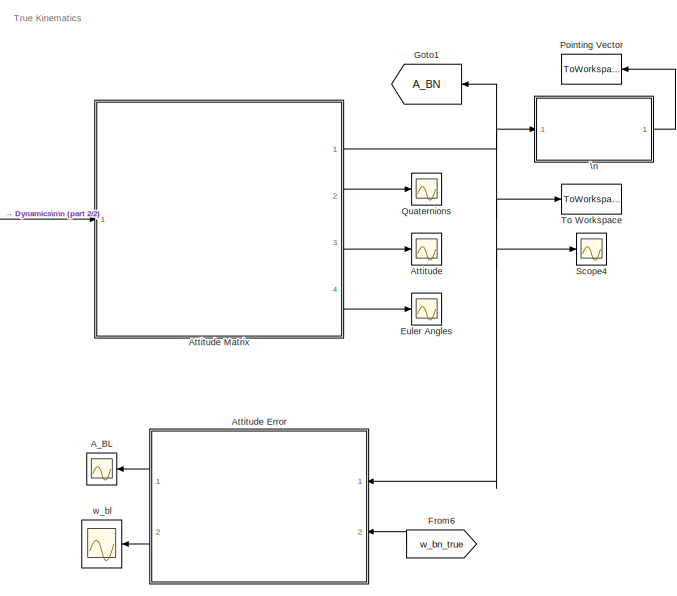
[diagram: root canvas - part 1/2, top right region]
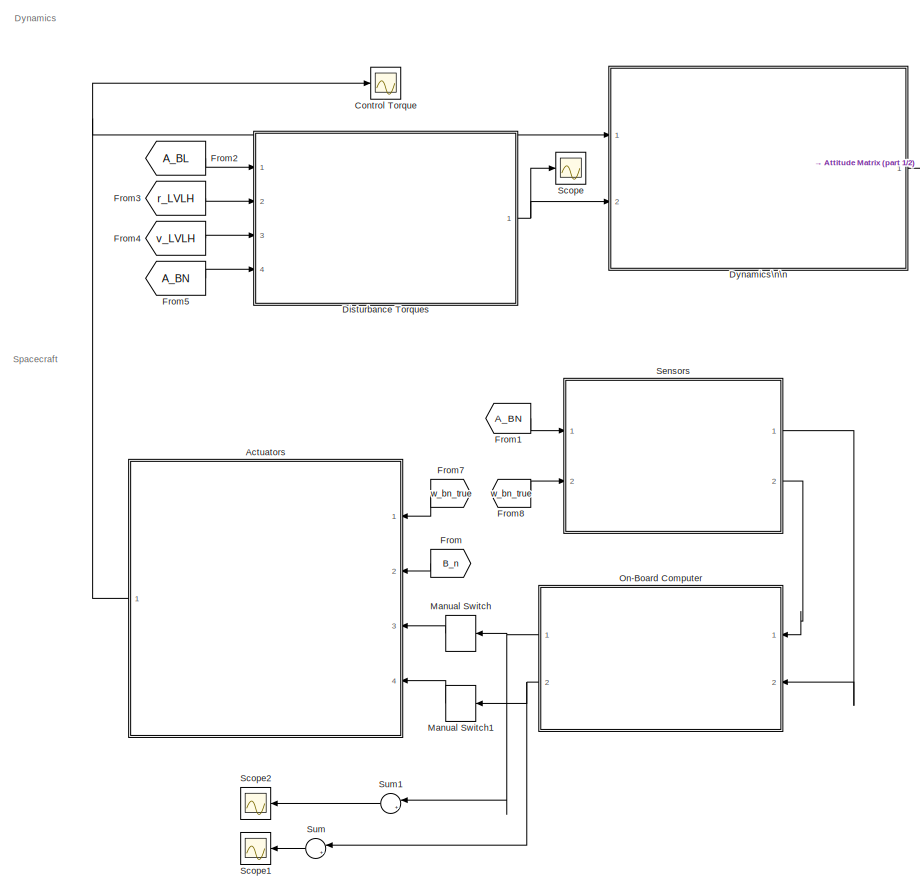
[diagram: root canvas - part 2/2, left side, full height]
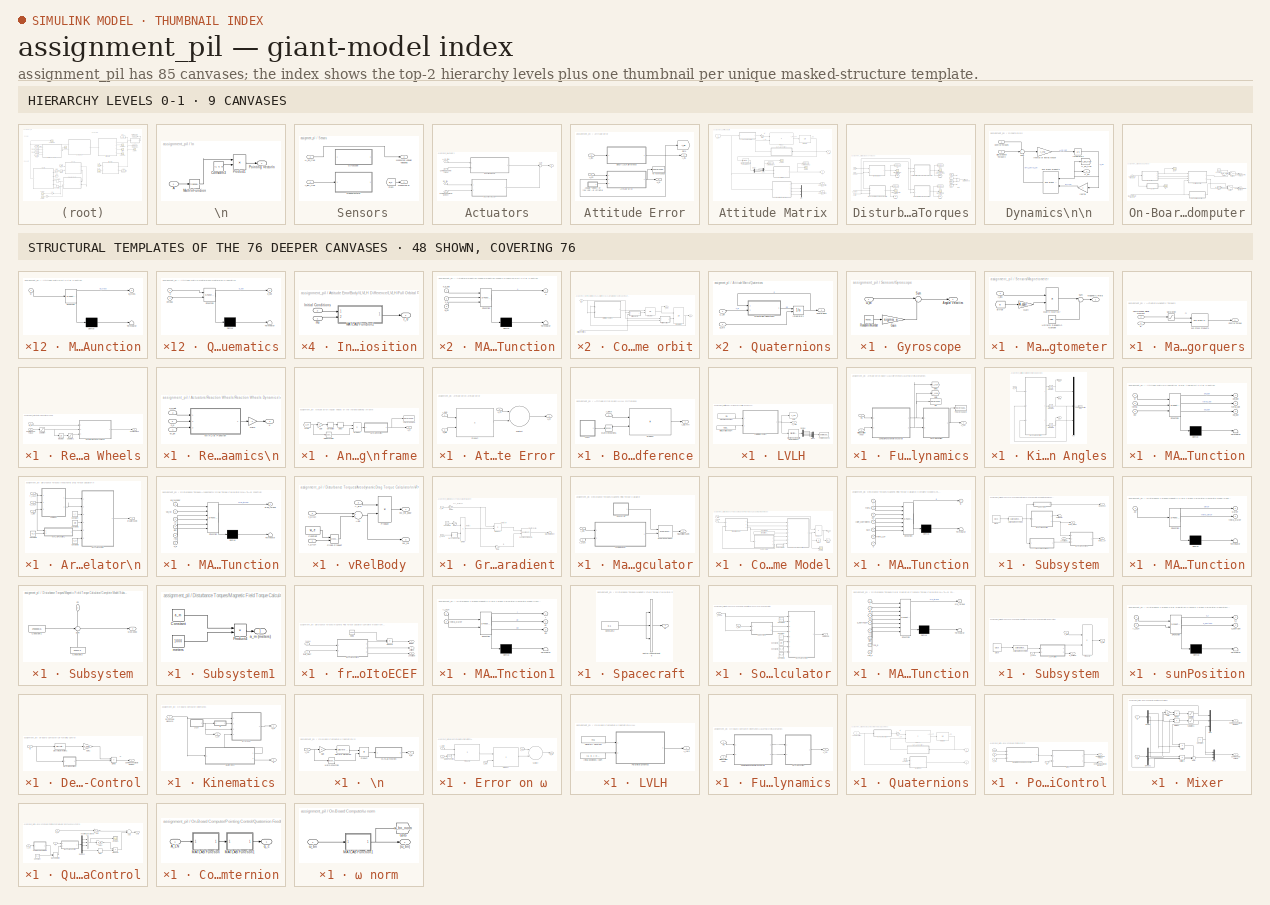
[diagram: thumbnail index - top-2 hierarchy levels (9 canvases) + 48 structural-template representatives of the remaining 76 canvases]
MODEL assignment_pil
KIND model
BLOCK [SubSystem]  Sensors
  Ports = [2, 2]
  RequestExecContextInheritance = off
  SID = 722
BLOCK [Inport]  Sensors/A_BN_true
  IconDisplay = Port number
  SID = 723
BLOCK [From]  Sensors/From
  GotoTag = B_n
  SID = 1170
  TagVisibility = global
BLOCK [SubSystem]  Sensors/Gyroscope
  Commented = on
  Ports = [1, 1]
  RequestExecContextInheritance = off
  SID = 725
BLOCK [Outport]  Sensors/Gyroscope/Angular Velocities
  IconDisplay = Port number
  SID = 730
BLOCK [Gain]  Sensors/Gyroscope/Gain
  Gain = sigma_e
  OutDataTypeStr = Inherit: Inherit via internal rule
  ParamDataTypeStr = Inherit: Inherit via internal rule
  SID = 727
  SaturateOnIntegerOverflow = off
BLOCK [RandomNumber]  Sensors/Gyroscope/Random\nNumber
  SID = 728
  SampleTime = 1
BLOCK [Sum]  Sensors/Gyroscope/Sum
  IconShape = round
  InputSameDT = off
  Inputs = |++
  OutDataTypeStr = Inherit: Inherit via internal rule
  Ports = [2, 1]
  SID = 729
  SaturateOnIntegerOverflow = off
BLOCK [Inport]  Sensors/Gyroscope/ω_bn
  IconDisplay = Port number
  SID = 726
BLOCK [SubSystem]  Sensors/Magnetometer
  Commented = on
  Ports = [1, 1]
  RequestExecContextInheritance = off
  SID = 731
BLOCK [Inport]  Sensors/Magnetometer/A_BN
  IconDisplay = Port number
  SID = 732
BLOCK [From]  Sensors/Magnetometer/B true
  GotoTag = B
  SID = 733
  TagVisibility = global
BLOCK [Gain]  Sensors/Magnetometer/Gain
  Gain = A_epsilon
  Multiplication = Matrix(K*u)
  OutDataTypeStr = Inherit: Inherit via internal rule
  ParamDataTypeStr = Inherit: Inherit via internal rule
  SID = 734
  SaturateOnIntegerOverflow = off
BLOCK [Outport]  Sensors/Magnetometer/Magnetic Field
  IconDisplay = Port number
  SID = 738
BLOCK [Product]  Sensors/Magnetometer/Matrix Multiply
  InputSameDT = off
  Multiplication = Matrix(*)
  OutDataTypeStr = Inherit: Inherit via internal rule
  Ports = [2, 1]
  RndMeth = Floor
  SID = 735
  SaturateOnIntegerOverflow = off
BLOCK [Sum]  Sensors/Magnetometer/Sum
  IconShape = round
  InputSameDT = off
  Inputs = |++
  OutDataTypeStr = Inherit: Inherit via internal rule
  Ports = [2, 1]
  SID = 736
  SaturateOnIntegerOverflow = off
BLOCK [UniformRandomNumber]  Sensors/Magnetometer/Uniform Random\nNumber
  Maximum = 1.5*1e-8
  Minimum = 5*1e-12
  SID = 737
  SampleTime = 1
BLOCK [Outport]  Sensors/Measured Angular Velocities
  IconDisplay = Port number
  Port = 2
  SID = 740
  SampleTime = 1
BLOCK [Outport]  Sensors/Measured B
  IconDisplay = Port number
  SID = 739
  SampleTime = 1
BLOCK [Inport]  Sensors/ω_bn_true
  IconDisplay = Port number
  Port = 2
  SID = 724
BLOCK [Scope] A_BL
  Floating = off
  NumInputPorts = 1
  Ports = [1]
  SID = 741
  ScopeSpecificationString = Simulink.scopes.TimeScopeBlockCfg('CurrentConfiguration', extmgr.ConfigurationSet(extmgr.Configuration('Core','General UI',true),extmgr.Configuration('Core','Source UI',true),extmgr.Configuration('Sources','WiredSimulink',true,'DataLoggingVariableName','ScopeData1'),extmgr.Configuration('Visuals','Time Domain',true,'SerializedDisplays',{struct('MinYLimReal','-1.26497','MaxYLimReal','1.26513','YLab...<+1618ch>
BLOCK [SubSystem] Actuators
  Ports = [4, 1]
  RequestExecContextInheritance = off
  SID = 742
BLOCK [Inport] Actuators/Bn_true
  IconDisplay = Port number
  Port = 2
  SID = 744
BLOCK [Inport] Actuators/Commanded Dipole Moment
  IconDisplay = Port number
  Port = 4
  SID = 746
BLOCK [Inport] Actuators/Commanded RW Torque
  IconDisplay = Port number
  Port = 3
  SID = 745
BLOCK [SubSystem] Actuators/Magnetic Torquers
  Ports = [2, 1]
  RequestExecContextInheritance = off
  SID = 747
BLOCK [Reference] Actuators/Magnetic Torquers/3x3 Cross Product1  REF=sharedutil/3x3 Cross Product
  Ports = [2, 1]
  SID = 750
  SourceBlock = sharedutil/3x3 Cross Product
  SourceProductBaseCode = AE
  SourceProductName = Aerospace Blockset
  SourceType = CrossProduct
  aMode = aMode
BLOCK [Inport] Actuators/Magnetic Torquers/B
  IconDisplay = Port number
  SID = 748
BLOCK [Inport] Actuators/Magnetic Torquers/Commanded Dipole Moment
  IconDisplay = Port number
  Port = 2
  SID = 749
BLOCK [Outport] Actuators/Magnetic Torquers/Control Torque
  IconDisplay = Port number
  SID = 752
BLOCK [Saturate] Actuators/Magnetic Torquers/Saturation
  InputPortMap = u0
  LowerLimit = -m_max
  Ports = [1, 1]
  SID = 751
  UpperLimit = m_max
BLOCK [SubSystem] Actuators/Reaction Wheels
  Ports = [2, 1]
  RequestExecContextInheritance = off
  SID = 754
BLOCK [Inport] Actuators/Reaction Wheels/Commanded Torque
  IconDisplay = Port number
  Port = 2
  SID = 756
BLOCK [Outport] Actuators/Reaction Wheels/Control Torque
  IconDisplay = Port number
  SID = 767
BLOCK [Integrator] Actuators/Reaction Wheels/Integrator
  InitialCondition = [0,0,0]
  LowerSaturationLimit = -max_momentum
  Ports = [1, 1]
  SID = 757
  UpperSaturationLimit = max_momentum
BLOCK [SubSystem] Actuators/Reaction Wheels/Reaction Wheels Dynamics\n
  Ports = [3, 1]
  RequestExecContextInheritance = off
  SID = 758
BLOCK [Gain] Actuators/Reaction Wheels/Reaction Wheels Dynamics\n/Gain
  Gain = -1
  OutDataTypeStr = Inherit: Inherit via internal rule
  ParamDataTypeStr = Inherit: Inherit via internal rule
  SID = 762
  SaturateOnIntegerOverflow = off
BLOCK [SubSystem] Actuators/Reaction Wheels/Reaction Wheels Dynamics\n/MATLAB Function
  ErrorFcn = Stateflow.Translate.translate
  PermitHierarchicalResolution = ExplicitOnly
  Ports = [3, 1]
  RequestExecContextInheritance = off
  SFBlockType = MATLAB Function
  SID = 763
  TreatAsAtomicUnit = on
BLOCK [Demux] Actuators/Reaction Wheels/Reaction Wheels Dynamics\n/MATLAB Function/ Demux 
  Outputs = 1
  Ports = [1, 1]
  SID = 763::29
BLOCK [S-Function] Actuators/Reaction Wheels/Reaction Wheels Dynamics\n/MATLAB Function/ SFunction 
  EnableBusSupport = on
  FunctionName = sf_sfun
  PortCounts = [3 2]
  Ports = [3, 2]
  SFcnIsStateOwnerBlock = off
  SFunctionDeploymentMode = off
  SID = 763::28
  Tag = Stateflow S-Function assignment_pil 25
BLOCK [Terminator] Actuators/Reaction Wheels/Reaction Wheels Dynamics\n/MATLAB Function/ Terminator 
  SID = 763::30
BLOCK [Inport] Actuators/Reaction Wheels/Reaction Wheels Dynamics\n/MATLAB Function/h_d
  IconDisplay = Port number
  Port = 2
  SID = 763::23
BLOCK [Inport] Actuators/Reaction Wheels/Reaction Wheels Dynamics\n/MATLAB Function/h_d_dot
  IconDisplay = Port number
  SID = 763::25
BLOCK [Outport] Actuators/Reaction Wheels/Reaction Wheels Dynamics\n/MATLAB Function/u
  IconDisplay = Port number
  SID = 763::27
BLOCK [Inport] Actuators/Reaction Wheels/Reaction Wheels Dynamics\n/MATLAB Function/w_bn
  IconDisplay = Port number
  Port = 3
  SID = 763::24
BLOCK [Inport] Actuators/Reaction Wheels/Reaction Wheels Dynamics\n/h_d
  IconDisplay = Port number
  Port = 3
  SID = 761
BLOCK [Inport] Actuators/Reaction Wheels/Reaction Wheels Dynamics\n/h_d_dot
  IconDisplay = Port number
  Port = 2
  SID = 760
BLOCK [Outport] Actuators/Reaction Wheels/Reaction Wheels Dynamics\n/u
  IconDisplay = Port number
  SID = 764
BLOCK [Inport] Actuators/Reaction Wheels/Reaction Wheels Dynamics\n/w_bn
  IconDisplay = Port number
  SID = 759
BLOCK [Saturate] Actuators/Reaction Wheels/Saturation
  InputPortMap = u0
  LowerLimit = -max_torque
  Ports = [1, 1]
  SID = 765
  UpperLimit = max_torque
BLOCK [Saturate] Actuators/Reaction Wheels/Saturation1
  InputPortMap = u0
  LowerLimit = -max_momentum
  Ports = [1, 1]
  SID = 766
  UpperLimit = max_momentum
BLOCK [Inport] Actuators/Reaction Wheels/w_bn
  IconDisplay = Port number
  SID = 755
BLOCK [Sum] Actuators/Sum
  IconShape = round
  InputSameDT = off
  Inputs = |++
  OutDataTypeStr = Inherit: Inherit via internal rule
  Ports = [2, 1]
  SID = 768
  SaturateOnIntegerOverflow = off
BLOCK [Outport] Actuators/u
  IconDisplay = Port number
  SID = 769
BLOCK [Inport] Actuators/ω_bn_true
  IconDisplay = Port number
  SID = 743
BLOCK [Scope] Attitude
  Floating = off
  NumInputPorts = 1
  Ports = [1]
  SID = 770
  ScopeSpecificationString = Simulink.scopes.TimeScopeBlockCfg('CurrentConfiguration', extmgr.ConfigurationSet(extmgr.Configuration('Core','General UI',true),extmgr.Configuration('Core','Source UI',true),extmgr.Configuration('Sources','WiredSimulink',true,'DataLoggingVariableName','ScopeData2'),extmgr.Configuration('Visuals','Time Domain',true,'SerializedDisplays',{struct('MinYLimReal','-3.00854','MaxYLimReal','2.65787','YLab...<+1540ch>
BLOCK [SubSystem] Attitude Error
  Ports = [2, 2]
  RequestExecContextInheritance = off
  SID = 771
BLOCK [Outport] Attitude Error/A_BL
  IconDisplay = Port number
  SID = 834
BLOCK [Inport] Attitude Error/A_BN
  IconDisplay = Port number
  SID = 772
BLOCK [SubSystem] Attitude Error/Angular velocity of the \norbital pointing \nframe
  Ports = [0, 1]
  RequestExecContextInheritance = off
  SID = 774
BLOCK [Delay] Attitude Error/Angular velocity of the \norbital pointing \nframe/Delay
  DelayLength = 1
  InputPortMap = u0
  Ports = [1, 1]
  SID = 775
BLOCK [Derivative] Attitude Error/Angular velocity of the \norbital pointing \nframe/Derivative
  SID = 776
BLOCK [From] Attitude Error/Angular velocity of the \norbital pointing \nframe/From
  GotoTag = A_LN
  SID = 777
  TagVisibility = global
BLOCK [Gain] Attitude Error/Angular velocity of the \norbital pointing \nframe/Gain
  Gain = -1
  OutDataTypeStr = Inherit: Inherit via internal rule
  ParamDataTypeStr = Inherit: Inherit via internal rule
  SID = 778
  SaturateOnIntegerOverflow = off
BLOCK [SubSystem] Attitude Error/Angular velocity of the \norbital pointing \nframe/MATLAB Function
  ErrorFcn = Stateflow.Translate.translate
  PermitHierarchicalResolution = ExplicitOnly
  Ports = [1, 1]
  RequestExecContextInheritance = off
  SFBlockType = MATLAB Function
  SID = 779
  TreatAsAtomicUnit = on
BLOCK [Demux] Attitude Error/Angular velocity of the \norbital pointing \nframe/MATLAB Function/ Demux 
  Outputs = 1
  Ports = [1, 1]
  SID = 779::23
BLOCK [S-Function] Attitude Error/Angular velocity of the \norbital pointing \nframe/MATLAB Function/ SFunction 
  EnableBusSupport = on
  FunctionName = sf_sfun
  PortCounts = [1 2]
  Ports = [1, 2]
  SFcnIsStateOwnerBlock = off
  SFunctionDeploymentMode = off
  SID = 779::22
  Tag = Stateflow S-Function assignment_pil 8
BLOCK [Terminator] Attitude Error/Angular velocity of the \norbital pointing \nframe/MATLAB Function/ Terminator 
  SID = 779::24
BLOCK [Outport] Attitude Error/Angular velocity of the \norbital pointing \nframe/MATLAB Function/w_ln
  IconDisplay = Port number
  SID = 779::5
BLOCK [Inport] Attitude Error/Angular velocity of the \norbital pointing \nframe/MATLAB Function/w_ln_cross
  IconDisplay = Port number
  SID = 779::1
BLOCK [Math] Attitude Error/Angular velocity of the \norbital pointing \nframe/Math\nFunction
  Operator = transpose
  Ports = [1, 1]
  SID = 780
BLOCK [Product] Attitude Error/Angular velocity of the \norbital pointing \nframe/Product
  InputSameDT = off
  Multiplication = Matrix(*)
  OutDataTypeStr = Inherit: Inherit via internal rule
  Ports = [2, 1]
  RndMeth = Floor
  SID = 781
  SaturateOnIntegerOverflow = off
BLOCK [ToWorkspace] Attitude Error/Angular velocity of the \norbital pointing \nframe/To Workspace
  FixptAsFi = on
  MaxDataPoints = inf
  Ports = [1]
  SID = 782
  SampleTime = -1
  Save2DSignal = 3-D array (concatenate along third dimension)
  VariableName = w_ln
BLOCK [Outport] Attitude Error/Angular velocity of the \norbital pointing \nframe/ω_ln
  IconDisplay = Port number
  SID = 783
BLOCK [SubSystem] Attitude Error/Attitude Error
  Ports = [3, 1]
  RequestExecContextInheritance = off
  SID = 784
BLOCK [Inport] Attitude Error/Attitude Error/A_BL\n
  IconDisplay = Port number
  Port = 2
  SID = 786
BLOCK [Product] Attitude Error/Attitude Error/Product
  InputSameDT = off
  Multiplication = Matrix(*)
  OutDataTypeStr = Inherit: Inherit via internal rule
  Ports = [2, 1]
  RndMeth = Floor
  SID = 788
  SaturateOnIntegerOverflow = off
BLOCK [Sum] Attitude Error/Attitude Error/Subtract
  InputSameDT = off
  Inputs = +-
  OutDataTypeStr = Inherit: Inherit via internal rule
  Ports = [2, 1]
  SID = 789
  SaturateOnIntegerOverflow = off
BLOCK [Outport] Attitude Error/Attitude Error/ω_bl
  IconDisplay = Port number
  SID = 790
BLOCK [Inport] Attitude Error/Attitude Error/ω_bn
  IconDisplay = Port number
  SID = 785
BLOCK [Inport] Attitude Error/Attitude Error/ω_ln\n
  IconDisplay = Port number
  Port = 3
  SID = 787
BLOCK [SubSystem] Attitude Error/Body\\LVLH Difference
  Ports = [1, 1]
  RequestExecContextInheritance = off
  SID = 791
BLOCK [Outport] Attitude Error/Body\\LVLH Difference/A_BL\n\n 
  IconDisplay = Port number
  SID = 831
BLOCK [Inport] Attitude Error/Body\\LVLH Difference/A_BN\n
  IconDisplay = Port number
  SID = 792
BLOCK [SubSystem] Attitude Error/Body\\LVLH Difference/LVLH
  Ports = [0, 1]
  RequestExecContextInheritance = off
  SID = 793
BLOCK [Outport] Attitude Error/Body\\LVLH Difference/LVLH/A_LN\n
  IconDisplay = Port number
  SID = 828
BLOCK [Demux] Attitude Error/Body\\LVLH Difference/LVLH/Demux
  DisplayOption = bar
  Ports = [1, 4]
  SID = 794
BLOCK [Reference] Attitude Error/Body\\LVLH Difference/LVLH/Direction Cosine Matrix \nto Quaternions  REF=sharedtransform/Direction Cosine Matrix \nto Quaternions
  Ports = [1, 1]
  SID = 795
  SourceBlock = sharedtransform/Direction Cosine Matrix \nto Quaternions
  SourceProductBaseCode = AE
  SourceProductName = Aerospace Blockset
  SourceType = DCM2Quaternion
  aMode = 0
  action = None
  tolerance = eps(2)
BLOCK [SubSystem] Attitude Error/Body\\LVLH Difference/LVLH/Full Orbital Dynamics
  Ports = [2, 1]
  RequestExecContextInheritance = off
  SID = 796
BLOCK [Outport] Attitude Error/Body\\LVLH Difference/LVLH/Full Orbital Dynamics/A_LN
  IconDisplay = Port number
  SID = 822
BLOCK [SubSystem] Attitude Error/Body\\LVLH Difference/LVLH/Full Orbital Dynamics/Compute R and V of reference orbit
  Ports = [2, 2]
  RequestExecContextInheritance = off
  SID = 800
BLOCK [Inport] Attitude Error/Body\\LVLH Difference/LVLH/Full Orbital Dynamics/Compute R and V of reference orbit/Initial Conditions
  IconDisplay = Port number
  Port = 2
  SID = 802
BLOCK [SubSystem] Attitude Error/Body\\LVLH Difference/LVLH/Full Orbital Dynamics/Compute R and V of reference orbit/Initial Position
  Ports = [2, 1]
  RequestExecContextInheritance = off
  SID = 803
BLOCK [Inport] Attitude Error/Body\\LVLH Difference/LVLH/Full Orbital Dynamics/Compute R and V of reference orbit/Initial Position/Initial Conditions
  IconDisplay = Port number
  Port = 2
  SID = 805
BLOCK [SubSystem] Attitude Error/Body\\LVLH Difference/LVLH/Full Orbital Dynamics/Compute R and V of reference orbit/Initial Position/MATLAB Function2
  ErrorFcn = Stateflow.Translate.translate
  PermitHierarchicalResolution = ExplicitOnly
  Ports = [2, 1]
  RequestExecContextInheritance = off
  SFBlockType = MATLAB Function
  SID = 806
  TreatAsAtomicUnit = on
BLOCK [Demux] Attitude Error/Body\\LVLH Difference/LVLH/Full Orbital Dynamics/Compute R and V of reference orbit/Initial Position/MATLAB Function2/ Demux 
  Outputs = 1
  Ports = [1, 1]
  SID = 806::33
BLOCK [S-Function] Attitude Error/Body\\LVLH Difference/LVLH/Full Orbital Dynamics/Compute R and V of reference orbit/Initial Position/MATLAB Function2/ SFunction 
  EnableBusSupport = on
  FunctionName = sf_sfun
  PortCounts = [2 2]
  Ports = [2, 2]
  SFcnIsStateOwnerBlock = off
  SFunctionDeploymentMode = off
  SID = 806::32
  Tag = Stateflow S-Function assignment_pil 9
BLOCK [Terminator] Attitude Error/Body\\LVLH Difference/LVLH/Full Orbital Dynamics/Compute R and V of reference orbit/Initial Position/MATLAB Function2/ Terminator 
  SID = 806::34
BLOCK [Inport] Attitude Error/Body\\LVLH Difference/LVLH/Full Orbital Dynamics/Compute R and V of reference orbit/Initial Position/MATLAB Function2/kep
  IconDisplay = Port number
  SID = 806::30
BLOCK [Inport] Attitude Error/Body\\LVLH Difference/LVLH/Full Orbital Dynamics/Compute R and V of reference orbit/Initial Position/MATLAB Function2/mu
  IconDisplay = Port number
  Port = 2
  SID = 806::31
BLOCK [Outport] Attitude Error/Body\\LVLH Difference/LVLH/Full Orbital Dynamics/Compute R and V of reference orbit/Initial Position/MATLAB Function2/r_0
  IconDisplay = Port number
  SID = 806::5
BLOCK [Inport] Attitude Error/Body\\LVLH Difference/LVLH/Full Orbital Dynamics/Compute R and V of reference orbit/Initial Position/mu
  IconDisplay = Port number
  SID = 804
BLOCK [Outport] Attitude Error/Body\\LVLH Difference/LVLH/Full Orbital Dynamics/Compute R and V of reference orbit/Initial Position/r_0
  IconDisplay = Port number
  SID = 807
BLOCK [SubSystem] Attitude Error/Body\\LVLH Difference/LVLH/Full Orbital Dynamics/Compute R and V of reference orbit/Initial Velocity
  Ports = [2, 1]
  RequestExecContextInheritance = off
  SID = 808
BLOCK [Inport] Attitude Error/Body\\LVLH Difference/LVLH/Full Orbital Dynamics/Compute R and V of reference orbit/Initial Velocity/Initial Conditions
  IconDisplay = Port number
  Port = 2
  SID = 810
BLOCK [SubSystem] Attitude Error/Body\\LVLH Difference/LVLH/Full Orbital Dynamics/Compute R and V of reference orbit/Initial Velocity/MATLAB Function1
  ErrorFcn = Stateflow.Translate.translate
  PermitHierarchicalResolution = ExplicitOnly
  Ports = [2, 1]
  RequestExecContextInheritance = off
  SFBlockType = MATLAB Function
  SID = 811
  TreatAsAtomicUnit = on
BLOCK [Demux] Attitude Error/Body\\LVLH Difference/LVLH/Full Orbital Dynamics/Compute R and V of reference orbit/Initial Velocity/MATLAB Function1/ Demux 
  Outputs = 1
  Ports = [1, 1]
  SID = 811::35
BLOCK [S-Function] Attitude Error/Body\\LVLH Difference/LVLH/Full Orbital Dynamics/Compute R and V of reference orbit/Initial Velocity/MATLAB Function1/ SFunction 
  EnableBusSupport = on
  FunctionName = sf_sfun
  PortCounts = [2 2]
  Ports = [2, 2]
  SFcnIsStateOwnerBlock = off
  SFunctionDeploymentMode = off
  SID = 811::34
  Tag = Stateflow S-Function assignment_pil 10
BLOCK [Terminator] Attitude Error/Body\\LVLH Difference/LVLH/Full Orbital Dynamics/Compute R and V of reference orbit/Initial Velocity/MATLAB Function1/ Terminator 
  SID = 811::36
BLOCK [Inport] Attitude Error/Body\\LVLH Difference/LVLH/Full Orbital Dynamics/Compute R and V of reference orbit/Initial Velocity/MATLAB Function1/kep
  IconDisplay = Port number
  SID = 811::32
BLOCK [Inport] Attitude Error/Body\\LVLH Difference/LVLH/Full Orbital Dynamics/Compute R and V of reference orbit/Initial Velocity/MATLAB Function1/mu
  IconDisplay = Port number
  Port = 2
  SID = 811::33
BLOCK [Outport] Attitude Error/Body\\LVLH Difference/LVLH/Full Orbital Dynamics/Compute R and V of reference orbit/Initial Velocity/MATLAB Function1/r_dot_0
  IconDisplay = Port number
  SID = 811::5
BLOCK [Inport] Attitude Error/Body\\LVLH Difference/LVLH/Full Orbital Dynamics/Compute R and V of reference orbit/Initial Velocity/mu
  IconDisplay = Port number
  SID = 809
BLOCK [Outport] Attitude Error/Body\\LVLH Difference/LVLH/Full Orbital Dynamics/Compute R and V of reference orbit/Initial Velocity/r_dot_0
  IconDisplay = Port number
  SID = 812
BLOCK [Integrator] Attitude Error/Body\\LVLH Difference/LVLH/Full Orbital Dynamics/Compute R and V of reference orbit/Integrator
  ContinuousStateAttributes = 'velocity'
  InitialCondition = [r,v]=kep2car(kep,mu);
  InitialConditionSource = external
  Ports = [2, 1]
  SID = 813
BLOCK [Integrator] Attitude Error/Body\\LVLH Difference/LVLH/Full Orbital Dynamics/Compute R and V of reference orbit/Integrator2
  ContinuousStateAttributes = 'position'
  InitialCondition = [r,v]=kep2car(kep,mu);
  InitialConditionSource = external
  Ports = [2, 1]
  SID = 814
BLOCK [SubSystem] Attitude Error/Body\\LVLH Difference/LVLH/Full Orbital Dynamics/Compute R and V of reference orbit/Orbital Dynamics
  ErrorFcn = Stateflow.Translate.translate
  PermitHierarchicalResolution = ExplicitOnly
  Ports = [2, 1]
  RequestExecContextInheritance = off
  SFBlockType = MATLAB Function
  SID = 815
  TreatAsAtomicUnit = on
BLOCK [Demux] Attitude Error/Body\\LVLH Difference/LVLH/Full Orbital Dynamics/Compute R and V of reference orbit/Orbital Dynamics/ Demux 
  Outputs = 1
  Ports = [1, 1]
  SID = 815::31
BLOCK [S-Function] Attitude Error/Body\\LVLH Difference/LVLH/Full Orbital Dynamics/Compute R and V of reference orbit/Orbital Dynamics/ SFunction 
  EnableBusSupport = on
  FunctionName = sf_sfun
  PortCounts = [2 2]
  Ports = [2, 2]
  SFcnIsStateOwnerBlock = off
  SFunctionDeploymentMode = off
  SID = 815::30
  Tag = Stateflow S-Function assignment_pil 11
BLOCK [Terminator] Attitude Error/Body\\LVLH Difference/LVLH/Full Orbital Dynamics/Compute R and V of reference orbit/Orbital Dynamics/ Terminator 
  SID = 815::32
BLOCK [Inport] Attitude Error/Body\\LVLH Difference/LVLH/Full Orbital Dynamics/Compute R and V of reference orbit/Orbital Dynamics/mu
  IconDisplay = Port number
  Port = 2
  SID = 815::29
BLOCK [Inport] Attitude Error/Body\\LVLH Difference/LVLH/Full Orbital Dynamics/Compute R and V of reference orbit/Orbital Dynamics/r
  IconDisplay = Port number
  SID = 815::1
BLOCK [Outport] Attitude Error/Body\\LVLH Difference/LVLH/Full Orbital Dynamics/Compute R and V of reference orbit/Orbital Dynamics/r_dot_dot
  IconDisplay = Port number
  SID = 815::5
BLOCK [Inport] Attitude Error/Body\\LVLH Difference/LVLH/Full Orbital Dynamics/Compute R and V of reference orbit/mu
  IconDisplay = Port number
  SID = 801
BLOCK [Outport] Attitude Error/Body\\LVLH Difference/LVLH/Full Orbital Dynamics/Compute R and V of reference orbit/r
  IconDisplay = Port number
  SID = 816
BLOCK [Outport] Attitude Error/Body\\LVLH Difference/LVLH/Full Orbital Dynamics/Compute R and V of reference orbit/r_dot
  IconDisplay = Port number
  Port = 2
  SID = 817
BLOCK [Goto] Attitude Error/Body\\LVLH Difference/LVLH/Full Orbital Dynamics/Goto
  GotoTag = r_LVLH
  SID = 818
  TagVisibility = global
BLOCK [Goto] Attitude Error/Body\\LVLH Difference/LVLH/Full Orbital Dynamics/Goto1
  GotoTag = v_LVLH
  SID = 819
  TagVisibility = global
BLOCK [Inport] Attitude Error/Body\\LVLH Difference/LVLH/Full Orbital Dynamics/Initial Condition (kep)
  IconDisplay = Port number
  Port = 2
  SID = 798
BLOCK [SubSystem] Attitude Error/Body\\LVLH Difference/LVLH/Full Orbital Dynamics/MATLAB Function
  ErrorFcn = Stateflow.Translate.translate
  PermitHierarchicalResolution = ExplicitOnly
  Ports = [2, 1]
  RequestExecContextInheritance = off
  SFBlockType = MATLAB Function
  SID = 820
  TreatAsAtomicUnit = on
BLOCK [Demux] Attitude Error/Body\\LVLH Difference/LVLH/Full Orbital Dynamics/MATLAB Function/ Demux 
  Outputs = 1
  Ports = [1, 1]
  SID = 820::24
BLOCK [S-Function] Attitude Error/Body\\LVLH Difference/LVLH/Full Orbital Dynamics/MATLAB Function/ SFunction 
  EnableBusSupport = on
  FunctionName = sf_sfun
  PortCounts = [2 2]
  Ports = [2, 2]
  SFcnIsStateOwnerBlock = off
  SFunctionDeploymentMode = off
  SID = 820::23
  Tag = Stateflow S-Function assignment_pil 12
BLOCK [Terminator] Attitude Error/Body\\LVLH Difference/LVLH/Full Orbital Dynamics/MATLAB Function/ Terminator 
  SID = 820::25
BLOCK [Outport] Attitude Error/Body\\LVLH Difference/LVLH/Full Orbital Dynamics/MATLAB Function/A_LN
  IconDisplay = Port number
  SID = 820::5
BLOCK [Inport] Attitude Error/Body\\LVLH Difference/LVLH/Full Orbital Dynamics/MATLAB Function/r
  IconDisplay = Port number
  SID = 820::1
BLOCK [Inport] Attitude Error/Body\\LVLH Difference/LVLH/Full Orbital Dynamics/MATLAB Function/r_dot
  IconDisplay = Port number
  Port = 2
  SID = 820::22
BLOCK [ToWorkspace] Attitude Error/Body\\LVLH Difference/LVLH/Full Orbital Dynamics/To Workspace
  FixptAsFi = on
  MaxDataPoints = inf
  Ports = [1]
  SID = 821
  SampleTime = -1
  Save2DSignal = 3-D array (concatenate along third dimension)
  VariableName = A_LN
BLOCK [ToWorkspace] Attitude Error/Body\\LVLH Difference/LVLH/Full Orbital Dynamics/\n\n
  MaxDataPoints = inf
  Ports = [1]
  SID = 799
  SampleTime = -1
  Save2DSignal = 3-D array (concatenate along third dimension)
  VariableName = r_LVLH
BLOCK [Inport] Attitude Error/Body\\LVLH Difference/LVLH/Full Orbital Dynamics/mu
  IconDisplay = Port number
  SID = 797
BLOCK [Goto] Attitude Error/Body\\LVLH Difference/LVLH/Goto
  GotoTag = A_LN
  SID = 823
  TagVisibility = global
BLOCK [Constant] Attitude Error/Body\\LVLH Difference/LVLH/Initial Conditions (KEP)
  SID = 824
  Value = [a, e, i, OMG, omg, theta]
BLOCK [Mux] Attitude Error/Body\\LVLH Difference/LVLH/Mux1
  DisplayOption = bar
  Ports = [4, 1]
  SID = 825
BLOCK [Constant] Attitude Error/Body\\LVLH Difference/LVLH/Planetary Constant
  SID = 826
  Value = mu
BLOCK [ToWorkspace] Attitude Error/Body\\LVLH Difference/LVLH/To Workspace3
  FixptAsFi = on
  MaxDataPoints = inf
  Ports = [1]
  SID = 827
  SampleTime = -1
  Save2DSignal = 3-D array (concatenate along third dimension)
  VariableName = q_ALN
BLOCK [Math] Attitude Error/Body\\LVLH Difference/Math\nFunction1
  Operator = transpose
  Ports = [1, 1]
  SID = 829
BLOCK [Product] Attitude Error/Body\\LVLH Difference/Product
  InputSameDT = off
  Multiplication = Matrix(*)
  OutDataTypeStr = Inherit: Inherit via internal rule
  Ports = [2, 1]
  RndMeth = Floor
  SID = 830
  SaturateOnIntegerOverflow = off
BLOCK [Goto] Attitude Error/Goto
  GotoTag = A_BL
  SID = 832
  TagVisibility = global
BLOCK [ToWorkspace] Attitude Error/To Workspace
  FixptAsFi = on
  MaxDataPoints = inf
  Ports = [1]
  SID = 833
  SampleTime = -1
  Save2DSignal = 3-D array (concatenate along third dimension)
  VariableName = w_bl
BLOCK [Outport] Attitude Error/ω_bl
  IconDisplay = Port number
  Port = 2
  SID = 835
BLOCK [Inport] Attitude Error/ω_bn
  IconDisplay = Port number
  Port = 2
  SID = 773
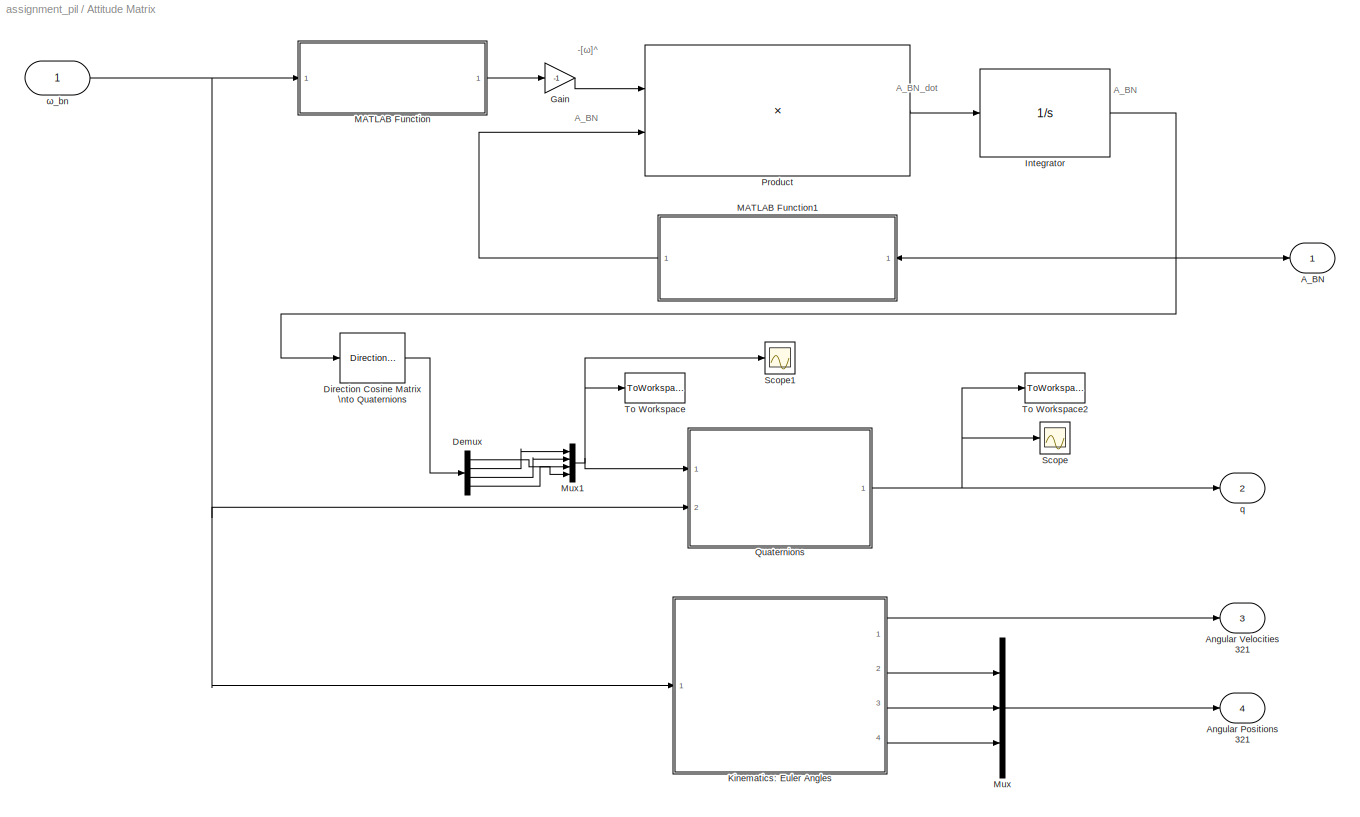
BLOCK [SubSystem] Attitude Matrix
  Ports = [1, 4]
  RequestExecContextInheritance = off
  SID = 836
BLOCK [Outport] Attitude Matrix/A_BN
  IconDisplay = Port number
  SID = 868
BLOCK [Outport] Attitude Matrix/Angular Positions 321
  IconDisplay = Port number
  Port = 4
  SID = 871
BLOCK [Outport] Attitude Matrix/Angular Velocities 321
  IconDisplay = Port number
  Port = 3
  SID = 870
BLOCK [Demux] Attitude Matrix/Demux
  DisplayOption = bar
  Ports = [1, 4]
  SID = 838
BLOCK [Reference] Attitude Matrix/Direction Cosine Matrix \nto Quaternions  REF=sharedtransform/Direction Cosine Matrix \nto Quaternions
  Ports = [1, 1]
  SID = 839
  SourceBlock = sharedtransform/Direction Cosine Matrix \nto Quaternions
  SourceProductBaseCode = AE
  SourceProductName = Aerospace Blockset
  SourceType = DCM2Quaternion
  aMode = 0
  action = None
  tolerance = eps(2)
BLOCK [Gain] Attitude Matrix/Gain
  Gain = -1
  OutDataTypeStr = Inherit: Inherit via internal rule
  ParamDataTypeStr = Inherit: Inherit via internal rule
  SID = 840
  SaturateOnIntegerOverflow = off
BLOCK [Integrator] Attitude Matrix/Integrator
  InitialCondition = A_BN_0
  Ports = [1, 1]
  SID = 841
BLOCK [SubSystem] Attitude Matrix/Kinematics: Euler Angles
  Ports = [1, 4]
  RequestExecContextInheritance = off
  SID = 842
BLOCK [Outport] Attitude Matrix/Kinematics: Euler Angles/Angular Velocities 321
  IconDisplay = Port number
  SID = 849
BLOCK [Integrator] Attitude Matrix/Kinematics: Euler Angles/Integrator
  InitialCondition = phi_0
  Ports = [1, 1]
  SID = 844
BLOCK [Integrator] Attitude Matrix/Kinematics: Euler Angles/Integrator1
  InitialCondition = theta_0
  Ports = [1, 1]
  SID = 845
BLOCK [Integrator] Attitude Matrix/Kinematics: Euler Angles/Integrator2
  InitialCondition = psi_0
  Ports = [1, 1]
  SID = 846
BLOCK [SubSystem] Attitude Matrix/Kinematics: Euler Angles/MATLAB Function
  ErrorFcn = Stateflow.Translate.translate
  PermitHierarchicalResolution = ExplicitOnly
  Ports = [3, 3]
  RequestExecContextInheritance = off
  SFBlockType = MATLAB Function
  SID = 847
  TreatAsAtomicUnit = on
BLOCK [Demux] Attitude Matrix/Kinematics: Euler Angles/MATLAB Function/ Demux 
  Outputs = 1
  Ports = [1, 1]
  SID = 847::31
BLOCK [S-Function] Attitude Matrix/Kinematics: Euler Angles/MATLAB Function/ SFunction 
  EnableBusSupport = on
  FunctionName = sf_sfun
  PortCounts = [3 4]
  Ports = [3, 4]
  SFcnIsStateOwnerBlock = off
  SFunctionDeploymentMode = off
  SID = 847::30
  Tag = Stateflow S-Function assignment_pil 1
BLOCK [Terminator] Attitude Matrix/Kinematics: Euler Angles/MATLAB Function/ Terminator 
  SID = 847::32
BLOCK [Outport] Attitude Matrix/Kinematics: Euler Angles/MATLAB Function/phi_dot
  IconDisplay = Port number
  SID = 847::25
BLOCK [Inport] Attitude Matrix/Kinematics: Euler Angles/MATLAB Function/psi
  IconDisplay = Port number
  Port = 3
  SID = 847::29
BLOCK [Outport] Attitude Matrix/Kinematics: Euler Angles/MATLAB Function/psi_dot
  IconDisplay = Port number
  Port = 3
  SID = 847::27
BLOCK [Inport] Attitude Matrix/Kinematics: Euler Angles/MATLAB Function/tetha
  IconDisplay = Port number
  Port = 2
  SID = 847::28
BLOCK [Outport] Attitude Matrix/Kinematics: Euler Angles/MATLAB Function/tetha_dot
  IconDisplay = Port number
  Port = 2
  SID = 847::26
BLOCK [Inport] Attitude Matrix/Kinematics: Euler Angles/MATLAB Function/w
  IconDisplay = Port number
  SID = 847::1
BLOCK [Mux] Attitude Matrix/Kinematics: Euler Angles/Mux
  DisplayOption = bar
  Inputs = 3
  Ports = [3, 1]
  SID = 848
BLOCK [Outport] Attitude Matrix/Kinematics: Euler Angles/phi
  IconDisplay = Port number
  Port = 2
  SID = 850
BLOCK [Outport] Attitude Matrix/Kinematics: Euler Angles/psi
  IconDisplay = Port number
  Port = 4
  SID = 852
BLOCK [Outport] Attitude Matrix/Kinematics: Euler Angles/theta
  IconDisplay = Port number
  Port = 3
  SID = 851
BLOCK [Inport] Attitude Matrix/Kinematics: Euler Angles/ω_bn
  IconDisplay = Port number
  SID = 843
BLOCK [SubSystem] Attitude Matrix/MATLAB Function
  ErrorFcn = Stateflow.Translate.translate
  PermitHierarchicalResolution = ExplicitOnly
  Ports = [1, 1]
  RequestExecContextInheritance = off
  SFBlockType = MATLAB Function
  SID = 853
  TreatAsAtomicUnit = on
BLOCK [Demux] Attitude Matrix/MATLAB Function/ Demux 
  Outputs = 1
  Ports = [1, 1]
  SID = 853::20
BLOCK [S-Function] Attitude Matrix/MATLAB Function/ SFunction 
  EnableBusSupport = on
  FunctionName = sf_sfun
  PortCounts = [1 2]
  Ports = [1, 2]
  SFcnIsStateOwnerBlock = off
  SFunctionDeploymentMode = off
  SID = 853::19
  Tag = Stateflow S-Function assignment_pil 2
BLOCK [Terminator] Attitude Matrix/MATLAB Function/ Terminator 
  SID = 853::21
BLOCK [Inport] Attitude Matrix/MATLAB Function/w
  IconDisplay = Port number
  SID = 853::1
BLOCK [Outport] Attitude Matrix/MATLAB Function/w_cross
  IconDisplay = Port number
  SID = 853::5
BLOCK [SubSystem] Attitude Matrix/MATLAB Function1
  ErrorFcn = Stateflow.Translate.translate
  PermitHierarchicalResolution = ExplicitOnly
  Ports = [1, 1]
  RequestExecContextInheritance = off
  SFBlockType = MATLAB Function
  SID = 854
  TreatAsAtomicUnit = on
BLOCK [Demux] Attitude Matrix/MATLAB Function1/ Demux 
  Outputs = 1
  Ports = [1, 1]
  SID = 854::23
BLOCK [S-Function] Attitude Matrix/MATLAB Function1/ SFunction 
  EnableBusSupport = on
  FunctionName = sf_sfun
  PortCounts = [1 2]
  Ports = [1, 2]
  SFcnIsStateOwnerBlock = off
  SFunctionDeploymentMode = off
  SID = 854::22
  Tag = Stateflow S-Function assignment_pil 3
BLOCK [Terminator] Attitude Matrix/MATLAB Function1/ Terminator 
  SID = 854::24
BLOCK [Inport] Attitude Matrix/MATLAB Function1/u
  IconDisplay = Port number
  SID = 854::1
BLOCK [Outport] Attitude Matrix/MATLAB Function1/y
  IconDisplay = Port number
  SID = 854::5
BLOCK [Mux] Attitude Matrix/Mux
  DisplayOption = bar
  Inputs = 3
  Ports = [3, 1]
  SID = 855
BLOCK [Mux] Attitude Matrix/Mux1
  DisplayOption = bar
  Ports = [4, 1]
  SID = 856
BLOCK [Product] Attitude Matrix/Product
  InputSameDT = off
  Multiplication = Matrix(*)
  OutDataTypeStr = Inherit: Inherit via internal rule
  Ports = [2, 1]
  RndMeth = Floor
  SID = 857
  SaturateOnIntegerOverflow = off
BLOCK [SubSystem] Attitude Matrix/Quaternions
  Ports = [2, 1]
  RequestExecContextInheritance = off
  SID = 858
BLOCK [Integrator] Attitude Matrix/Quaternions/Integrator2
  InitialCondition = q_0
  InitialConditionSource = external
  Ports = [2, 1]
  SID = 861
BLOCK [SubSystem] Attitude Matrix/Quaternions/Quaternion Kinematics
  ErrorFcn = Stateflow.Translate.translate
  PermitHierarchicalResolution = ExplicitOnly
  Ports = [2, 1]
  RequestExecContextInheritance = off
  SFBlockType = MATLAB Function
  SID = 862
  TreatAsAtomicUnit = on
BLOCK [Demux] Attitude Matrix/Quaternions/Quaternion Kinematics/ Demux 
  Outputs = 1
  Ports = [1, 1]
  SID = 862::29
BLOCK [S-Function] Attitude Matrix/Quaternions/Quaternion Kinematics/ SFunction 
  EnableBusSupport = on
  FunctionName = sf_sfun
  PortCounts = [2 2]
  Ports = [2, 2]
  SFcnIsStateOwnerBlock = off
  SFunctionDeploymentMode = off
  SID = 862::28
  Tag = Stateflow S-Function assignment_pil 4
BLOCK [Terminator] Attitude Matrix/Quaternions/Quaternion Kinematics/ Terminator 
  SID = 862::30
BLOCK [Inport] Attitude Matrix/Quaternions/Quaternion Kinematics/omega
  IconDisplay = Port number
  Port = 2
  SID = 862::18
BLOCK [Inport] Attitude Matrix/Quaternions/Quaternion Kinematics/q
  IconDisplay = Port number
  SID = 862::1
BLOCK [Outport] Attitude Matrix/Quaternions/Quaternion Kinematics/q_dot
  IconDisplay = Port number
  SID = 862::5
BLOCK [Inport] Attitude Matrix/Quaternions/q_0\n
  IconDisplay = Port number
  SID = 859
BLOCK [Outport] Attitude Matrix/Quaternions/quaternions
  IconDisplay = Port number
  SID = 863
BLOCK [Inport] Attitude Matrix/Quaternions/ω_bn
  IconDisplay = Port number
  Port = 2
  SID = 860
BLOCK [Scope] Attitude Matrix/Scope
  Floating = off
  NumInputPorts = 1
  Ports = [1]
  SID = 864
  ScopeSpecificationString = Simulink.scopes.TimeScopeBlockCfg('CurrentConfiguration', extmgr.ConfigurationSet(extmgr.Configuration('Core','General UI',true),extmgr.Configuration('Core','Source UI',true),extmgr.Configuration('Sources','WiredSimulink',true,'DataLoggingVariableName','ScopeData1'),extmgr.Configuration('Visuals','Time Domain',true,'SerializedDisplays',{struct('MinYLimReal','-0.80506','MaxYLimReal','1.2006','YLabe...<+1445ch>
BLOCK [Scope] Attitude Matrix/Scope1
  Floating = off
  NumInputPorts = 1
  Ports = [1]
  SID = 865
  ScopeSpecificationString = Simulink.scopes.TimeScopeBlockCfg('CurrentConfiguration', extmgr.ConfigurationSet(extmgr.Configuration('Core','General UI',true),extmgr.Configuration('Core','Source UI',true),extmgr.Configuration('Sources','WiredSimulink',true,'DataLoggingVariableName','ScopeData2'),extmgr.Configuration('Visuals','Time Domain',true,'SerializedDisplays',{struct('MinYLimReal','-1.07142','MaxYLimReal','1.23016','YLab...<+1425ch>
BLOCK [ToWorkspace] Attitude Matrix/To Workspace
  FixptAsFi = on
  MaxDataPoints = inf
  Ports = [1]
  SID = 866
  SampleTime = -1
  Save2DSignal = 3-D array (concatenate along third dimension)
  VariableName = q_from_ABN
BLOCK [ToWorkspace] Attitude Matrix/To Workspace2
  FixptAsFi = on
  MaxDataPoints = inf
  Ports = [1]
  SID = 867
  SampleTime = -1
  Save2DSignal = 3-D array (concatenate along third dimension)
  VariableName = q
BLOCK [Outport] Attitude Matrix/q
  IconDisplay = Port number
  Port = 2
  SID = 869
BLOCK [Inport] Attitude Matrix/ω_bn
  IconDisplay = Port number
  PortDimensions = 3
  SID = 837
  Unit = rad/s
BLOCK [Scope] Control Torque
  Floating = off
  NumInputPorts = 1
  Ports = [1]
  SID = 876
  ScopeSpecificationString = Simulink.scopes.TimeScopeBlockCfg('CurrentConfiguration', extmgr.ConfigurationSet(extmgr.Configuration('Core','General UI',true),extmgr.Configuration('Core','Source UI',true),extmgr.Configuration('Sources','WiredSimulink',true,'DataLoggingVariableName','ScopeData3'),extmgr.Configuration('Visuals','Time Domain',true,'SerializedDisplays',{struct('MinYLimReal','-0.0005','MaxYLimReal','0.00009','YLabe...<+1467ch>
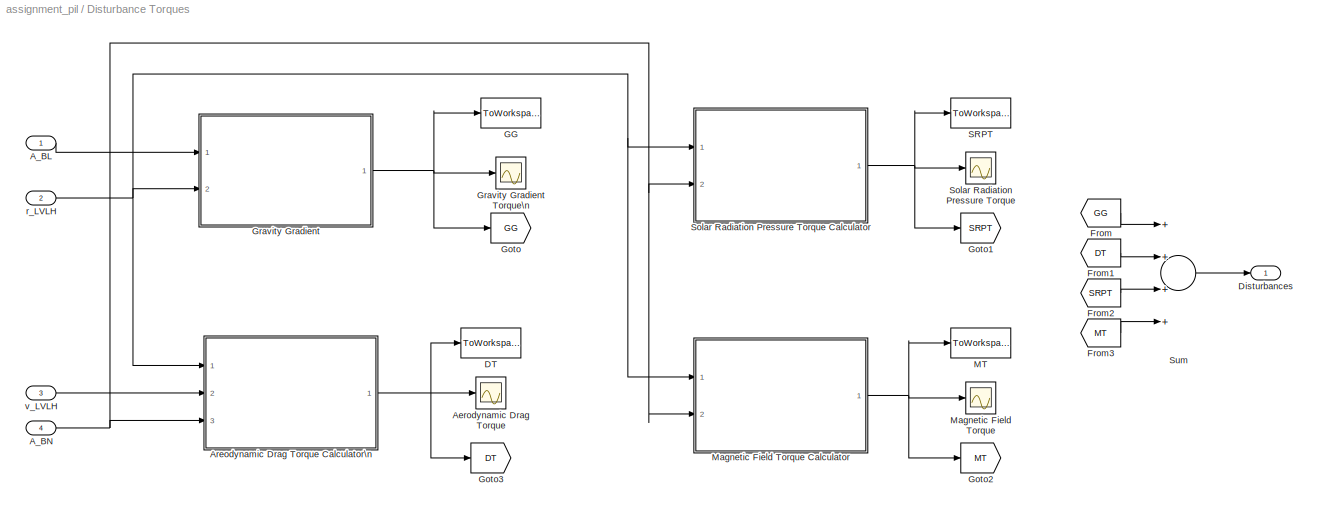
BLOCK [SubSystem] Disturbance Torques
  Ports = [4, 1]
  RequestExecContextInheritance = off
  SID = 877
BLOCK [Inport] Disturbance Torques/A_BL
  IconDisplay = Port number
  SID = 878
BLOCK [Inport] Disturbance Torques/A_BN
  IconDisplay = Port number
  Port = 4
  SID = 881
BLOCK [Scope] Disturbance Torques/Aerodynamic Drag Torque
  Floating = off
  NumInputPorts = 1
  Ports = [1]
  SID = 882
  ScopeSpecificationString = Simulink.scopes.TimeScopeBlockCfg('CurrentConfiguration', extmgr.ConfigurationSet(extmgr.Configuration('Core','General UI',true),extmgr.Configuration('Core','Source UI',true),extmgr.Configuration('Sources','WiredSimulink',true,'DataLoggingVariableName','ScopeData2'),extmgr.Configuration('Visuals','Time Domain',true,'SerializedDisplays',{struct('MinYLimReal','-0.000000024','MaxYLimReal','0.00000002...<+1554ch>
BLOCK [SubSystem] Disturbance Torques/Areodynamic Drag Torque Calculator\n
  Ports = [3, 1]
  RequestExecContextInheritance = off
  SID = 883
BLOCK [Inport] Disturbance Torques/Areodynamic Drag Torque Calculator\n/A_BN
  IconDisplay = Port number
  Port = 3
  SID = 886
BLOCK [Constant] Disturbance Torques/Areodynamic Drag Torque Calculator\n/Constant
  SID = 887
  Value = A_i
BLOCK [Constant] Disturbance Torques/Areodynamic Drag Torque Calculator\n/Constant1
  SID = 888
  Value = dim
BLOCK [Constant] Disturbance Torques/Areodynamic Drag Torque Calculator\n/Constant2
  SID = 889
  Value = R_e
BLOCK [Constant] Disturbance Torques/Areodynamic Drag Torque Calculator\n/Constant3
  SID = 890
  Value = C_d
BLOCK [SubSystem] Disturbance Torques/Areodynamic Drag Torque Calculator\n/MATLAB Function
  ErrorFcn = Stateflow.Translate.translate
  PermitHierarchicalResolution = ExplicitOnly
  Ports = [6, 1]
  RequestExecContextInheritance = off
  SFBlockType = MATLAB Function
  SID = 891
  TreatAsAtomicUnit = on
BLOCK [Demux] Disturbance Torques/Areodynamic Drag Torque Calculator\n/MATLAB Function/ Demux 
  Outputs = 1
  Ports = [1, 1]
  SID = 891::30
BLOCK [S-Function] Disturbance Torques/Areodynamic Drag Torque Calculator\n/MATLAB Function/ SFunction 
  EnableBusSupport = on
  FunctionName = sf_sfun
  PortCounts = [6 2]
  Ports = [6, 2]
  SFcnIsStateOwnerBlock = off
  SFunctionDeploymentMode = off
  SID = 891::29
  Tag = Stateflow S-Function assignment_pil 5
BLOCK [Terminator] Disturbance Torques/Areodynamic Drag Torque Calculator\n/MATLAB Function/ Terminator 
  SID = 891::31
BLOCK [Inport] Disturbance Torques/Areodynamic Drag Torque Calculator\n/MATLAB Function/A_i
  IconDisplay = Port number
  Port = 3
  SID = 891::22
BLOCK [Inport] Disturbance Torques/Areodynamic Drag Torque Calculator\n/MATLAB Function/C_d
  IconDisplay = Port number
  Port = 6
  SID = 891::26
BLOCK [Inport] Disturbance Torques/Areodynamic Drag Torque Calculator\n/MATLAB Function/dim
  IconDisplay = Port number
  Port = 4
  SID = 891::23
BLOCK [Outport] Disturbance Torques/Areodynamic Drag Torque Calculator\n/MATLAB Function/drag_torque
  IconDisplay = Port number
  SID = 891::5
BLOCK [Inport] Disturbance Torques/Areodynamic Drag Torque Calculator\n/MATLAB Function/rho
  IconDisplay = Port number
  Port = 5
  SID = 891::25
BLOCK [Inport] Disturbance Torques/Areodynamic Drag Torque Calculator\n/MATLAB Function/vw_rel
  IconDisplay = Port number
  Port = 2
  SID = 891::32
BLOCK [Inport] Disturbance Torques/Areodynamic Drag Torque Calculator\n/MATLAB Function/vw_rel_body
  IconDisplay = Port number
  SID = 891::1
BLOCK [SubSystem] Disturbance Torques/Areodynamic Drag Torque Calculator\n/MATLAB Function1
  ErrorFcn = Stateflow.Translate.translate
  PermitHierarchicalResolution = ExplicitOnly
  Ports = [2, 1]
  RequestExecContextInheritance = off
  SFBlockType = MATLAB Function
  SID = 892
  TreatAsAtomicUnit = on
BLOCK [Demux] Disturbance Torques/Areodynamic Drag Torque Calculator\n/MATLAB Function1/ Demux 
  Outputs = 1
  Ports = [1, 1]
  SID = 892::25
BLOCK [S-Function] Disturbance Torques/Areodynamic Drag Torque Calculator\n/MATLAB Function1/ SFunction 
  EnableBusSupport = on
  FunctionName = sf_sfun
  PortCounts = [2 2]
  Ports = [2, 2]
  SFcnIsStateOwnerBlock = off
  SFunctionDeploymentMode = off
  SID = 892::24
  Tag = Stateflow S-Function assignment_pil 7
BLOCK [Terminator] Disturbance Torques/Areodynamic Drag Torque Calculator\n/MATLAB Function1/ Terminator 
  SID = 892::26
BLOCK [Inport] Disturbance Torques/Areodynamic Drag Torque Calculator\n/MATLAB Function1/R_e
  IconDisplay = Port number
  Port = 2
  SID = 892::22
BLOCK [Inport] Disturbance Torques/Areodynamic Drag Torque Calculator\n/MATLAB Function1/r_LVLH
  IconDisplay = Port number
  SID = 892::1
BLOCK [Outport] Disturbance Torques/Areodynamic Drag Torque Calculator\n/MATLAB Function1/rho
  IconDisplay = Port number
  SID = 892::5
BLOCK [Outport] Disturbance Torques/Areodynamic Drag Torque Calculator\n/drag torque\n
  IconDisplay = Port number
  SID = 903
BLOCK [Inport] Disturbance Torques/Areodynamic Drag Torque Calculator\n/r_LVLH
  IconDisplay = Port number
  SID = 884
BLOCK [SubSystem] Disturbance Torques/Areodynamic Drag Torque Calculator\n/vRelBody
  Ports = [3, 2]
  RequestExecContextInheritance = off
  SID = 893
BLOCK [Inport] Disturbance Torques/Areodynamic Drag Torque Calculator\n/vRelBody/A_BN
  IconDisplay = Port number
  Port = 3
  SID = 896
BLOCK [Sum] Disturbance Torques/Areodynamic Drag Torque Calculator\n/vRelBody/Add
  InputSameDT = off
  OutDataTypeStr = Inherit: Inherit via internal rule
  Ports = [2, 1]
  SID = 897
  SaturateOnIntegerOverflow = off
BLOCK [Constant] Disturbance Torques/Areodynamic Drag Torque Calculator\n/vRelBody/Constant
  SID = 898
  Value = w_e
BLOCK [Reference] Disturbance Torques/Areodynamic Drag Torque Calculator\n/vRelBody/Cross Product  REF=vrlib/Utilities/Cross Product
  Ports = [2, 1]
  SID = 899
  SourceBlock = vrlib/Utilities/Cross Product
  SourceProductBaseCode = VR
  SourceProductName = Simulink 3D Animation
  SourceType = Cross Product
BLOCK [Product] Disturbance Torques/Areodynamic Drag Torque Calculator\n/vRelBody/Product
  InputSameDT = off
  Multiplication = Matrix(*)
  OutDataTypeStr = Inherit: Inherit via internal rule
  Ports = [2, 1]
  RndMeth = Floor
  SID = 900
  SaturateOnIntegerOverflow = off
BLOCK [Inport] Disturbance Torques/Areodynamic Drag Torque Calculator\n/vRelBody/r_LVLH
  IconDisplay = Port number
  SID = 894
BLOCK [Inport] Disturbance Torques/Areodynamic Drag Torque Calculator\n/vRelBody/v_LVLH
  IconDisplay = Port number
  Port = 2
  SID = 895
BLOCK [Outport] Disturbance Torques/Areodynamic Drag Torque Calculator\n/vRelBody/vw_rel
  IconDisplay = Port number
  Port = 2
  SID = 902
BLOCK [Outport] Disturbance Torques/Areodynamic Drag Torque Calculator\n/vRelBody/vw_rel_body
  IconDisplay = Port number
  SID = 901
BLOCK [Inport] Disturbance Torques/Areodynamic Drag Torque Calculator\n/v_LVLH
  IconDisplay = Port number
  Port = 2
  SID = 885
BLOCK [ToWorkspace] Disturbance Torques/DT
  FixptAsFi = on
  MaxDataPoints = inf
  Ports = [1]
  SID = 904
  SampleTime = -1
  Save2DSignal = 3-D array (concatenate along third dimension)
  VariableName = drag_torque
BLOCK [Outport] Disturbance Torques/Disturbances
  IconDisplay = Port number
  SID = 1006
BLOCK [From] Disturbance Torques/From
  GotoTag = GG
  SID = 905
BLOCK [From] Disturbance Torques/From1
  GotoTag = DT
  SID = 906
BLOCK [From] Disturbance Torques/From2
  GotoTag = SRPT
  SID = 907
BLOCK [From] Disturbance Torques/From3
  GotoTag = MT
  SID = 908
BLOCK [ToWorkspace] Disturbance Torques/GG
  FixptAsFi = on
  MaxDataPoints = inf
  Ports = [1]
  SID = 909
  SampleTime = -1
  Save2DSignal = 3-D array (concatenate along third dimension)
  VariableName = GG
BLOCK [Goto] Disturbance Torques/Goto
  GotoTag = GG
  SID = 910
BLOCK [Goto] Disturbance Torques/Goto1
  GotoTag = SRPT
  SID = 911
BLOCK [Goto] Disturbance Torques/Goto2
  GotoTag = MT
  SID = 912
BLOCK [Goto] Disturbance Torques/Goto3
  GotoTag = DT
  SID = 913
BLOCK [SubSystem] Disturbance Torques/Gravity Gradient
  Ports = [2, 1]
  RequestExecContextInheritance = off
  SID = 914
BLOCK [Scope] Disturbance Torques/Gravity Gradient Torque\n
  Floating = off
  NumInputPorts = 1
  Ports = [1]
  SID = 931
  ScopeSpecificationString = Simulink.scopes.TimeScopeBlockCfg('CurrentConfiguration', extmgr.ConfigurationSet(extmgr.Configuration('Core','General UI',true),extmgr.Configuration('Core','Source UI',true),extmgr.Configuration('Sources','WiredSimulink',true,'DataLoggingVariableName','ScopeData1'),extmgr.Configuration('Visuals','Time Domain',true,'SerializedDisplays',{struct('MinYLimReal','-1.00000','MaxYLimReal','1.00000','YLab...<+1448ch>
BLOCK [Reference] Disturbance Torques/Gravity Gradient/3x3 Cross Product1  REF=sharedutil/3x3 Cross Product
  Ports = [2, 1]
  SID = 917
  SourceBlock = sharedutil/3x3 Cross Product
  SourceProductBaseCode = AE
  SourceProductName = Aerospace Blockset
  SourceType = CrossProduct
  aMode = aMode
BLOCK [Inport] Disturbance Torques/Gravity Gradient/A_BL
  IconDisplay = Port number
  SID = 915
BLOCK [Constant] Disturbance Torques/Gravity Gradient/Constant2
  SID = 918
  Value = mu
BLOCK [Product] Disturbance Torques/Gravity Gradient/Divide
  InputSameDT = off
  Inputs = */
  OutDataTypeStr = Inherit: Inherit via internal rule
  Ports = [2, 1]
  RndMeth = Floor
  SID = 919
  SaturateOnIntegerOverflow = off
BLOCK [Gain] Disturbance Torques/Gravity Gradient/Gain
  Gain = I
  Multiplication = Matrix(K*u)
  OutDataTypeStr = Inherit: Inherit via internal rule
  ParamDataTypeStr = Inherit: Inherit via internal rule
  SID = 920
  SaturateOnIntegerOverflow = off
BLOCK [Gain] Disturbance Torques/Gravity Gradient/Gain1
  Gain = 3
  OutDataTypeStr = Inherit: Inherit via internal rule
  ParamDataTypeStr = Inherit: Inherit via internal rule
  SID = 921
  SaturateOnIntegerOverflow = off
BLOCK [Gain] Disturbance Torques/Gravity Gradient/Gain2
  Gain = nadir_vector
  Multiplication = Matrix(u*K)
  OutDataTypeStr = Inherit: Inherit via internal rule
  ParamDataTypeStr = Inherit: Inherit via internal rule
  SID = 922
  SaturateOnIntegerOverflow = off
BLOCK [Outport] Disturbance Torques/Gravity Gradient/Gravity Gradient
  IconDisplay = Port number
  SID = 925
BLOCK [SubSystem] Disturbance Torques/Gravity Gradient/MATLAB Function
  ErrorFcn = Stateflow.Translate.translate
  PermitHierarchicalResolution = ExplicitOnly
  Ports = [1, 1]
  RequestExecContextInheritance = off
  SFBlockType = MATLAB Function
  SID = 923
  TreatAsAtomicUnit = on
BLOCK [Demux] Disturbance Torques/Gravity Gradient/MATLAB Function/ Demux 
  Outputs = 1
  Ports = [1, 1]
  SID = 923::23
BLOCK [S-Function] Disturbance Torques/Gravity Gradient/MATLAB Function/ SFunction 
  EnableBusSupport = on
  FunctionName = sf_sfun
  PortCounts = [1 2]
  Ports = [1, 2]
  SFcnIsStateOwnerBlock = off
  SFunctionDeploymentMode = off
  SID = 923::22
  Tag = Stateflow S-Function assignment_pil 19
BLOCK [Terminator] Disturbance Torques/Gravity Gradient/MATLAB Function/ Terminator 
  SID = 923::24
BLOCK [Inport] Disturbance Torques/Gravity Gradient/MATLAB Function/u
  IconDisplay = Port number
  SID = 923::1
BLOCK [Outport] Disturbance Torques/Gravity Gradient/MATLAB Function/y
  IconDisplay = Port number
  SID = 923::5
BLOCK [Product] Disturbance Torques/Gravity Gradient/Product
  InputSameDT = off
  Multiplication = Matrix(*)
  OutDataTypeStr = Inherit: Inherit via internal rule
  Ports = [2, 1]
  RndMeth = Floor
  SID = 924
  SaturateOnIntegerOverflow = off
BLOCK [Inport] Disturbance Torques/Gravity Gradient/r_LVLH
  IconDisplay = Port number
  Port = 2
  SID = 916
BLOCK [ToWorkspace] Disturbance Torques/MT
  FixptAsFi = on
  MaxDataPoints = inf
  Ports = [1]
  SID = 932
  SampleTime = -1
  Save2DSignal = 3-D array (concatenate along third dimension)
  VariableName = magnetic_torque
BLOCK [Scope] Disturbance Torques/Magnetic Field Torque
  Floating = off
  NumInputPorts = 1
  Ports = [1]
  SID = 933
  ScopeSpecificationString = Simulink.scopes.TimeScopeBlockCfg('CurrentConfiguration', extmgr.ConfigurationSet(extmgr.Configuration('Core','General UI',true),extmgr.Configuration('Core','Source UI',true),extmgr.Configuration('Sources','WiredSimulink',true,'DataLoggingVariableName','ScopeData1'),extmgr.Configuration('Visuals','Time Domain',true,'SerializedDisplays',{struct('MinYLimReal','-0.0000044','MaxYLimReal','0.0000039','...<+1553ch>
BLOCK [SubSystem] Disturbance Torques/Magnetic Field Torque Calculator
  Ports = [2, 1]
  RequestExecContextInheritance = off
  SID = 934
BLOCK [Reference] Disturbance Torques/Magnetic Field Torque Calculator/3x3 Cross Product  REF=sharedutil/3x3 Cross Product
  Ports = [2, 1]
  SID = 937
  SourceBlock = sharedutil/3x3 Cross Product
  SourceProductBaseCode = AE
  SourceProductName = Aerospace Blockset
  SourceType = CrossProduct
  aMode = aMode
BLOCK [Inport] Disturbance Torques/Magnetic Field Torque Calculator/A_BN
  IconDisplay = Port number
  Port = 2
  SID = 936
BLOCK [SubSystem] Disturbance Torques/Magnetic Field Torque Calculator/Complete Model
  Ports = [2, 1]
  RequestExecContextInheritance = off
  SID = 938
BLOCK [Inport] Disturbance Torques/Magnetic Field Torque Calculator/Complete Model/A_BN
  IconDisplay = Port number
  SID = 939
BLOCK [Outport] Disturbance Torques/Magnetic Field Torque Calculator/Complete Model/B
  IconDisplay = Port number
  SID = 978
BLOCK [Constant] Disturbance Torques/Magnetic Field Torque Calculator/Complete Model/Constant2
  SID = 941
  Value = [gn, gm, gvali,  gsvi, hn,  hm,  hvali,  hsvi]
BLOCK [Goto] Disturbance Torques/Magnetic Field Torque Calculator/Complete Model/Goto1
  GotoTag = B
  SID = 942
  TagVisibility = global
BLOCK [Goto] Disturbance Torques/Magnetic Field Torque Calculator/Complete Model/Goto2
  GotoTag = B_n
  SID = 943
  TagVisibility = global
BLOCK [SubSystem] Disturbance Torques/Magnetic Field Torque Calculator/Complete Model/MATLAB Function
  ErrorFcn = Stateflow.Translate.translate
  PermitHierarchicalResolution = ExplicitOnly
  Ports = [7, 1]
  RequestExecContextInheritance = off
  SFBlockType = MATLAB Function
  SID = 944
  TreatAsAtomicUnit = on
BLOCK [Demux] Disturbance Torques/Magnetic Field Torque Calculator/Complete Model/MATLAB Function/ Demux 
  Outputs = 1
  Ports = [1, 1]
  SID = 944::20
BLOCK [S-Function] Disturbance Torques/Magnetic Field Torque Calculator/Complete Model/MATLAB Function/ SFunction 
  EnableBusSupport = on
  FunctionName = sf_sfun
  PortCounts = [7 2]
  Ports = [7, 2]
  SFcnIsStateOwnerBlock = off
  SFunctionDeploymentMode = off
  SID = 944::19
  Tag = Stateflow S-Function assignment_pil 18
BLOCK [Terminator] Disturbance Torques/Magnetic Field Torque Calculator/Complete Model/MATLAB Function/ Terminator 
  SID = 944::21
BLOCK [Outport] Disturbance Torques/Magnetic Field Torque Calculator/Complete Model/MATLAB Function/B
  IconDisplay = Port number
  SID = 944::5
BLOCK [Inport] Disturbance Torques/Magnetic Field Torque Calculator/Complete Model/MATLAB Function/IGRF_coefficients
  IconDisplay = Port number
  Port = 4
  SID = 944::28
BLOCK [Inport] Disturbance Torques/Magnetic Field Torque Calculator/Complete Model/MATLAB Function/a
  IconDisplay = Port number
  Port = 7
  SID = 944::31
BLOCK [Inport] Disturbance Torques/Magnetic Field Torque Calculator/Complete Model/MATLAB Function/days
  IconDisplay = Port number
  Port = 5
  SID = 944::24
BLOCK [Inport] Disturbance Torques/Magnetic Field Torque Calculator/Complete Model/MATLAB Function/phi
  IconDisplay = Port number
  Port = 3
  SID = 944::30
BLOCK [Inport] Disturbance Torques/Magnetic Field Torque Calculator/Complete Model/MATLAB Function/r
  IconDisplay = Port number
  SID = 944::1
BLOCK [Inport] Disturbance Torques/Magnetic Field Torque Calculator/Complete Model/MATLAB Function/theta
  IconDisplay = Port number
  Port = 2
  SID = 944::29
BLOCK [Inport] Disturbance Torques/Magnetic Field Torque Calculator/Complete Model/MATLAB Function/theta_LST
  IconDisplay = Port number
  Port = 6
  SID = 944::32
BLOCK [Product] Disturbance Torques/Magnetic Field Torque Calculator/Complete Model/Product
  InputSameDT = off
  Multiplication = Matrix(*)
  OutDataTypeStr = Inherit: Inherit via internal rule
  Ports = [2, 1]
  RndMeth = Floor
  SID = 945
  SaturateOnIntegerOverflow = off
BLOCK [Scope] Disturbance Torques/Magnetic Field Torque Calculator/Complete Model/Scope
  Floating = off
  NumInputPorts = 1
  Ports = [1]
  SID = 946
  ScopeSpecificationString = Simulink.scopes.TimeScopeBlockCfg('CurrentConfiguration', extmgr.ConfigurationSet(extmgr.Configuration('Core','General UI',true),extmgr.Configuration('Core','Source UI',true),extmgr.Configuration('Sources','WiredSimulink',true,'DataLoggingVariableName','ScopeData3'),extmgr.Configuration('Visuals','Time Domain',true,'SerializedDisplays',{struct('MinYLimReal','-0.000013','MaxYLimReal','0.000031','YL...<+1449ch>
BLOCK [SubSystem] Disturbance Torques/Magnetic Field Torque Calculator/Complete Model/Subsystem
  Ports = [1, 3]
  RequestExecContextInheritance = off
  SID = 947
BLOCK [Clock] Disturbance Torques/Magnetic Field Torque Calculator/Complete Model/Subsystem/Clock
  DisplayTime = on
  SID = 949
BLOCK [Reference] Disturbance Torques/Magnetic Field Torque Calculator/Complete Model/Subsystem/Julian Date Conversion  REF=aerolibconvert2/Julian Date Conversion
  Ports = [1, 1]
  SID = 950
  SourceBlock = aerolibconvert2/Julian Date Conversion
  SourceProductBaseCode = AE
  SourceProductName = Aerospace Blockset
  SourceType = JulianDate
  day = 1
  deltaT = Sec
  errorflag = Error
  hour = 12
  min = 0
  modflag = off
  month = January
  sec = 0
  year = 2019
BLOCK [Inport] Disturbance Torques/Magnetic Field Torque Calculator/Complete Model/Subsystem/Longitude
  IconDisplay = Port number
  SID = 948
BLOCK [SubSystem] Disturbance Torques/Magnetic Field Torque Calculator/Complete Model/Subsystem/MATLAB Function
  ErrorFcn = Stateflow.Translate.translate
  PermitHierarchicalResolution = ExplicitOnly
  Ports = [1, 2]
  RequestExecContextInheritance = off
  SFBlockType = MATLAB Function
  SID = 951
  TreatAsAtomicUnit = on
BLOCK [Demux] Disturbance Torques/Magnetic Field Torque Calculator/Complete Model/Subsystem/MATLAB Function/ Demux 
  Outputs = 1
  Ports = [1, 1]
  SID = 951::20
BLOCK [S-Function] Disturbance Torques/Magnetic Field Torque Calculator/Complete Model/Subsystem/MATLAB Function/ SFunction 
  EnableBusSupport = on
  FunctionName = sf_sfun
  PortCounts = [1 3]
  Ports = [1, 3]
  SFcnIsStateOwnerBlock = off
  SFunctionDeploymentMode = off
  SID = 951::19
  Tag = Stateflow S-Function assignment_pil 21
BLOCK [Terminator] Disturbance Torques/Magnetic Field Torque Calculator/Complete Model/Subsystem/MATLAB Function/ Terminator 
  SID = 951::21
BLOCK [Outport] Disturbance Torques/Magnetic Field Torque Calculator/Complete Model/Subsystem/MATLAB Function/GMST
  IconDisplay = Port number
  SID = 951::5
BLOCK [Inport] Disturbance Torques/Magnetic Field Torque Calculator/Complete Model/Subsystem/MATLAB Function/JD
  IconDisplay = Port number
  SID = 951::1
BLOCK [Outport] Disturbance Torques/Magnetic Field Torque Calculator/Complete Model/Subsystem/MATLAB Function/theta_GMST
  IconDisplay = Port number
  Port = 2
  SID = 951::22
BLOCK [SubSystem] Disturbance Torques/Magnetic Field Torque Calculator/Complete Model/Subsystem/MATLAB Function1
  ErrorFcn = Stateflow.Translate.translate
  PermitHierarchicalResolution = ExplicitOnly
  Ports = [3, 1]
  RequestExecContextInheritance = off
  SFBlockType = MATLAB Function
  SID = 952
  TreatAsAtomicUnit = on
BLOCK [Demux] Disturbance Torques/Magnetic Field Torque Calculator/Complete Model/Subsystem/MATLAB Function1/ Demux 
  Outputs = 1
  Ports = [1, 1]
  SID = 952::20
BLOCK [S-Function] Disturbance Torques/Magnetic Field Torque Calculator/Complete Model/Subsystem/MATLAB Function1/ SFunction 
  EnableBusSupport = on
  FunctionName = sf_sfun
  PortCounts = [3 2]
  Ports = [3, 2]
  SFcnIsStateOwnerBlock = off
  SFunctionDeploymentMode = off
  SID = 952::19
  Tag = Stateflow S-Function assignment_pil 22
BLOCK [Terminator] Disturbance Torques/Magnetic Field Torque Calculator/Complete Model/Subsystem/MATLAB Function1/ Terminator 
  SID = 952::21
BLOCK [Inport] Disturbance Torques/Magnetic Field Torque Calculator/Complete Model/Subsystem/MATLAB Function1/date
  IconDisplay = Port number
  Port = 3
  SID = 952::22
BLOCK [Inport] Disturbance Torques/Magnetic Field Torque Calculator/Complete Model/Subsystem/MATLAB Function1/lon
  IconDisplay = Port number
  Port = 2
  SID = 952::23
BLOCK [Inport] Disturbance Torques/Magnetic Field Torque Calculator/Complete Model/Subsystem/MATLAB Function1/theta_GMST
  IconDisplay = Port number
  SID = 952::1
BLOCK [Outport] Disturbance Torques/Magnetic Field Torque Calculator/Complete Model/Subsystem/MATLAB Function1/theta_LST
  IconDisplay = Port number
  SID = 952::5
BLOCK [SubSystem] Disturbance Torques/Magnetic Field Torque Calculator/Complete Model/Subsystem/MATLAB Function2
  ErrorFcn = Stateflow.Translate.translate
  PermitHierarchicalResolution = ExplicitOnly
  Ports = [1, 1]
  RequestExecContextInheritance = off
  SFBlockType = MATLAB Function
  SID = 953
  TreatAsAtomicUnit = on
BLOCK [Demux] Disturbance Torques/Magnetic Field Torque Calculator/Complete Model/Subsystem/MATLAB Function2/ Demux 
  Outputs = 1
  Ports = [1, 1]
  SID = 953::20
BLOCK [S-Function] Disturbance Torques/Magnetic Field Torque Calculator/Complete Model/Subsystem/MATLAB Function2/ SFunction 
  EnableBusSupport = on
  FunctionName = sf_sfun
  PortCounts = [1 2]
  Ports = [1, 2]
  SFcnIsStateOwnerBlock = off
  SFunctionDeploymentMode = off
  SID = 953::19
  Tag = Stateflow S-Function assignment_pil 15
BLOCK [Terminator] Disturbance Torques/Magnetic Field Torque Calculator/Complete Model/Subsystem/MATLAB Function2/ Terminator 
  SID = 953::21
BLOCK [Outport] Disturbance Torques/Magnetic Field Torque Calculator/Complete Model/Subsystem/MATLAB Function2/date
  IconDisplay = Port number
  SID = 953::5
BLOCK [Inport] Disturbance Torques/Magnetic Field Torque Calculator/Complete Model/Subsystem/MATLAB Function2/jd
  IconDisplay = Port number
  SID = 953::1
BLOCK [Outport] Disturbance Torques/Magnetic Field Torque Calculator/Complete Model/Subsystem/MJD2000
  IconDisplay = Port number
  SID = 961
BLOCK [SubSystem] Disturbance Torques/Magnetic Field Torque Calculator/Complete Model/Subsystem/Subsystem
  Ports = [1, 1]
  RequestExecContextInheritance = off
  SID = 954
BLOCK [Constant] Disturbance Torques/Magnetic Field Torque Calculator/Complete Model/Subsystem/Subsystem/Constant1
  SID = 956
  Value = 2400000.5
BLOCK [Constant] Disturbance Torques/Magnetic Field Torque Calculator/Complete Model/Subsystem/Subsystem/Constant3
  SID = 957
  Value = 51544.5
BLOCK [Inport] Disturbance Torques/Magnetic Field Torque Calculator/Complete Model/Subsystem/Subsystem/JD
  IconDisplay = Port number
  SID = 955
BLOCK [Outport] Disturbance Torques/Magnetic Field Torque Calculator/Complete Model/Subsystem/Subsystem/MJD2000
  IconDisplay = Port number
  SID = 959
BLOCK [Sum] Disturbance Torques/Magnetic Field Torque Calculator/Complete Model/Subsystem/Subsystem/Sum
  IconShape = round
  InputSameDT = off
  Inputs = +--
  OutDataTypeStr = Inherit: Inherit via internal rule
  Ports = [3, 1]
  SID = 958
  SaturateOnIntegerOverflow = off
BLOCK [Terminator] Disturbance Torques/Magnetic Field Torque Calculator/Complete Model/Subsystem/Terminator
  SID = 960
BLOCK [Outport] Disturbance Torques/Magnetic Field Torque Calculator/Complete Model/Subsystem/theta_GMST
  IconDisplay = Port number
  Port = 3
  SID = 963
BLOCK [Outport] Disturbance Torques/Magnetic Field Torque Calculator/Complete Model/Subsystem/theta_LST
  IconDisplay = Port number
  Port = 2
  SID = 962
BLOCK [SubSystem] Disturbance Torques/Magnetic Field Torque Calculator/Complete Model/Subsystem1
  Ports = [0, 1]
  RequestExecContextInheritance = off
  SID = 964
BLOCK [Constant] Disturbance Torques/Magnetic Field Torque Calculator/Complete Model/Subsystem1/Constant
  SID = 965
  Value = a_m
BLOCK [Product] Disturbance Torques/Magnetic Field Torque Calculator/Complete Model/Subsystem1/Product4
  InputSameDT = off
  OutDataTypeStr = Inherit: Inherit via internal rule
  Ports = [2, 1]
  RndMeth = Floor
  SID = 966
  SaturateOnIntegerOverflow = off
BLOCK [Outport] Disturbance Torques/Magnetic Field Torque Calculator/Complete Model/Subsystem1/a_m (meters)
  IconDisplay = Port number
  SID = 968
BLOCK [Constant] Disturbance Torques/Magnetic Field Torque Calculator/Complete Model/Subsystem1/meters
  SID = 967
  Value = 1000
BLOCK [SubSystem] Disturbance Torques/Magnetic Field Torque Calculator/Complete Model/fromGCItoECEF
  Ports = [2, 3]
  RequestExecContextInheritance = off
  SID = 969
BLOCK [Outport] Disturbance Torques/Magnetic Field Torque Calculator/Complete Model/fromGCItoECEF/Latitude
  IconDisplay = Port number
  Port = 2
  SID = 976
BLOCK [Outport] Disturbance Torques/Magnetic Field Torque Calculator/Complete Model/fromGCItoECEF/Longitude
  IconDisplay = Port number
  Port = 3
  SID = 977
BLOCK [SubSystem] Disturbance Torques/Magnetic Field Torque Calculator/Complete Model/fromGCItoECEF/MATLAB Function1
  ErrorFcn = Stateflow.Translate.translate
  PermitHierarchicalResolution = ExplicitOnly
  Ports = [2, 3]
  RequestExecContextInheritance = off
  SFBlockType = MATLAB Function
  SID = 972
  TreatAsAtomicUnit = on
BLOCK [Demux] Disturbance Torques/Magnetic Field Torque Calculator/Complete Model/fromGCItoECEF/MATLAB Function1/ Demux 
  Outputs = 1
  Ports = [1, 1]
  SID = 972::20
BLOCK [S-Function] Disturbance Torques/Magnetic Field Torque Calculator/Complete Model/fromGCItoECEF/MATLAB Function1/ SFunction 
  EnableBusSupport = on
  FunctionName = sf_sfun
  PortCounts = [2 4]
  Ports = [2, 4]
  SFcnIsStateOwnerBlock = off
  SFunctionDeploymentMode = off
  SID = 972::19
  Tag = Stateflow S-Function assignment_pil 20
BLOCK [Terminator] Disturbance Torques/Magnetic Field Torque Calculator/Complete Model/fromGCItoECEF/MATLAB Function1/ Terminator 
  SID = 972::21
BLOCK [Outport] Disturbance Torques/Magnetic Field Torque Calculator/Complete Model/fromGCItoECEF/MATLAB Function1/lat
  IconDisplay = Port number
  Port = 2
  SID = 972::5
BLOCK [Outport] Disturbance Torques/Magnetic Field Torque Calculator/Complete Model/fromGCItoECEF/MATLAB Function1/lon
  IconDisplay = Port number
  Port = 3
  SID = 972::22
BLOCK [Outport] Disturbance Torques/Magnetic Field Torque Calculator/Complete Model/fromGCItoECEF/MATLAB Function1/r
  IconDisplay = Port number
  SID = 972::24
BLOCK [Inport] Disturbance Torques/Magnetic Field Torque Calculator/Complete Model/fromGCItoECEF/MATLAB Function1/r_LVLH
  IconDisplay = Port number
  SID = 972::23
BLOCK [Inport] Disturbance Torques/Magnetic Field Torque Calculator/Complete Model/fromGCItoECEF/MATLAB Function1/theta_GMST
  IconDisplay = Port number
  Port = 2
  SID = 972::1
BLOCK [Product] Disturbance Torques/Magnetic Field Torque Calculator/Complete Model/fromGCItoECEF/Product4
  InputSameDT = off
  OutDataTypeStr = Inherit: Inherit via internal rule
  Ports = [2, 1]
  RndMeth = Floor
  SID = 973
  SaturateOnIntegerOverflow = off
BLOCK [Constant] Disturbance Torques/Magnetic Field Torque Calculator/Complete Model/fromGCItoECEF/meters
  SID = 974
  Value = 1000
BLOCK [Outport] Disturbance Torques/Magnetic Field Torque Calculator/Complete Model/fromGCItoECEF/r (meters)
  IconDisplay = Port number
  SID = 975
BLOCK [Inport] Disturbance Torques/Magnetic Field Torque Calculator/Complete Model/fromGCItoECEF/r_LVLH
  IconDisplay = Port number
  SID = 970
BLOCK [Inport] Disturbance Torques/Magnetic Field Torque Calculator/Complete Model/fromGCItoECEF/theta_GMST
  IconDisplay = Port number
  Port = 2
  SID = 971
BLOCK [Inport] Disturbance Torques/Magnetic Field Torque Calculator/Complete Model/r_LVLH
  IconDisplay = Port number
  Port = 2
  SID = 940
BLOCK [SubSystem] Disturbance Torques/Magnetic Field Torque Calculator/Spacecraft 
  Ports = [0, 1]
  RequestExecContextInheritance = off
  SID = 979
BLOCK [Constant] Disturbance Torques/Magnetic Field Torque Calculator/Spacecraft /Constant2
  SID = 980
  Value = 0.1
BLOCK [Concatenate] Disturbance Torques/Magnetic Field Torque Calculator/Spacecraft /Vector\nConcatenate
  NumInputs = 3
  Ports = [3, 1]
  SID = 981
BLOCK [Outport] Disturbance Torques/Magnetic Field Torque Calculator/Spacecraft /m
  IconDisplay = Port number
  SID = 982
BLOCK [Outport] Disturbance Torques/Magnetic Field Torque Calculator/magnetic torque\n
  IconDisplay = Port number
  SID = 983
BLOCK [Inport] Disturbance Torques/Magnetic Field Torque Calculator/r_LVLH
  IconDisplay = Port number
  SID = 935
BLOCK [ToWorkspace] Disturbance Torques/SRPT
  FixptAsFi = on
  MaxDataPoints = inf
  Ports = [1]
  SID = 984
  SampleTime = -1
  Save2DSignal = 3-D array (concatenate along third dimension)
  VariableName = srp_torque
BLOCK [Scope] Disturbance Torques/Solar Radiation Pressure Torque
  Floating = off
  NumInputPorts = 1
  Ports = [1]
  SID = 985
  ScopeSpecificationString = Simulink.scopes.TimeScopeBlockCfg('CurrentConfiguration', extmgr.ConfigurationSet(extmgr.Configuration('Core','General UI',true),extmgr.Configuration('Core','Source UI',true),extmgr.Configuration('Sources','WiredSimulink',true,'DataLoggingVariableName','ScopeData1'),extmgr.Configuration('Visuals','Time Domain',true,'SerializedDisplays',{struct('MinYLimReal','-0.00000025','MaxYLimReal','0.00000025'...<+1569ch>
BLOCK [SubSystem] Disturbance Torques/Solar Radiation Pressure Torque Calculator
  Ports = [2, 1]
  RequestExecContextInheritance = off
  SID = 986
BLOCK [Inport] Disturbance Torques/Solar Radiation Pressure Torque Calculator/A_BN
  IconDisplay = Port number
  Port = 2
  SID = 988
BLOCK [Constant] Disturbance Torques/Solar Radiation Pressure Torque Calculator/Constant
  SID = 989
  Value = A_i
BLOCK [Constant] Disturbance Torques/Solar Radiation Pressure Torque Calculator/Constant1
  SID = 990
  Value = dim
BLOCK [Constant] Disturbance Torques/Solar Radiation Pressure Torque Calculator/Constant2
  SID = 991
  Value = rho_s
BLOCK [Constant] Disturbance Torques/Solar Radiation Pressure Torque Calculator/Constant3
  SID = 992
  Value = rho_d
BLOCK [Constant] Disturbance Torques/Solar Radiation Pressure Torque Calculator/Constant7
  SID = 993
  Value = R_e
BLOCK [SubSystem] Disturbance Torques/Solar Radiation Pressure Torque Calculator/MATLAB Function
  ErrorFcn = Stateflow.Translate.translate
  PermitHierarchicalResolution = ExplicitOnly
  Ports = [8, 1]
  RequestExecContextInheritance = off
  SFBlockType = MATLAB Function
  SID = 994
  TreatAsAtomicUnit = on
BLOCK [Demux] Disturbance Torques/Solar Radiation Pressure Torque Calculator/MATLAB Function/ Demux 
  Outputs = 1
  Ports = [1, 1]
  SID = 994::35
BLOCK [S-Function] Disturbance Torques/Solar Radiation Pressure Torque Calculator/MATLAB Function/ SFunction 
  EnableBusSupport = on
  FunctionName = sf_sfun
  PortCounts = [8 2]
  Ports = [8, 2]
  SFcnIsStateOwnerBlock = off
  SFunctionDeploymentMode = off
  SID = 994::34
  Tag = Stateflow S-Function assignment_pil 17
BLOCK [Terminator] Disturbance Torques/Solar Radiation Pressure Torque Calculator/MATLAB Function/ Terminator 
  SID = 994::36
BLOCK [Inport] Disturbance Torques/Solar Radiation Pressure Torque Calculator/MATLAB Function/A_i
  IconDisplay = Port number
  Port = 5
  SID = 994::22
BLOCK [Inport] Disturbance Torques/Solar Radiation Pressure Torque Calculator/MATLAB Function/R_e
  IconDisplay = Port number
  Port = 2
  SID = 994::33
BLOCK [Inport] Disturbance Torques/Solar Radiation Pressure Torque Calculator/MATLAB Function/S_b
  IconDisplay = Port number
  Port = 3
  SID = 994::1
BLOCK [Inport] Disturbance Torques/Solar Radiation Pressure Torque Calculator/MATLAB Function/S_earthSun
  IconDisplay = Port number
  Port = 4
  SID = 994::37
BLOCK [Inport] Disturbance Torques/Solar Radiation Pressure Torque Calculator/MATLAB Function/dim
  IconDisplay = Port number
  Port = 6
  SID = 994::23
BLOCK [Inport] Disturbance Torques/Solar Radiation Pressure Torque Calculator/MATLAB Function/r
  IconDisplay = Port number
  SID = 994::32
BLOCK [Inport] Disturbance Torques/Solar Radiation Pressure Torque Calculator/MATLAB Function/rho_d
  IconDisplay = Port number
  Port = 7
  SID = 994::26
BLOCK [Inport] Disturbance Torques/Solar Radiation Pressure Torque Calculator/MATLAB Function/rho_s
  IconDisplay = Port number
  Port = 8
  SID = 994::29
BLOCK [Outport] Disturbance Torques/Solar Radiation Pressure Torque Calculator/MATLAB Function/srp_torque
  IconDisplay = Port number
  SID = 994::5
BLOCK [SubSystem] Disturbance Torques/Solar Radiation Pressure Torque Calculator/Subsystem
  Ports = [2, 2]
  RequestExecContextInheritance = off
  SID = 995
BLOCK [Inport] Disturbance Torques/Solar Radiation Pressure Torque Calculator/Subsystem/A_BN
  IconDisplay = Port number
  SID = 996
BLOCK [Clock] Disturbance Torques/Solar Radiation Pressure Torque Calculator/Subsystem/Clock
  DisplayTime = on
  SID = 998
BLOCK [Reference] Disturbance Torques/Solar Radiation Pressure Torque Calculator/Subsystem/Julian Date Conversion  REF=aerolibconvert2/Julian Date Conversion
  Ports = [1, 1]
  SID = 999
  SourceBlock = aerolibconvert2/Julian Date Conversion
  SourceProductBaseCode = AE
  SourceProductName = Aerospace Blockset
  SourceType = JulianDate
  day = 1
  deltaT = Sec
  errorflag = Error
  hour = 12
  min = 0
  modflag = off
  month = January
  sec = 0
  year = 2019
BLOCK [Product] Disturbance Torques/Solar Radiation Pressure Torque Calculator/Subsystem/Product2
  InputSameDT = off
  Multiplication = Matrix(*)
  OutDataTypeStr = Inherit: Inherit via internal rule
  Ports = [2, 1]
  RndMeth = Floor
  SID = 1000
  SaturateOnIntegerOverflow = off
BLOCK [Outport] Disturbance Torques/Solar Radiation Pressure Torque Calculator/Subsystem/S_b\n
  IconDisplay = Port number
  SID = 1002
BLOCK [Outport] Disturbance Torques/Solar Radiation Pressure Torque Calculator/Subsystem/S_eartSun
  IconDisplay = Port number
  Port = 2
  SID = 1003
BLOCK [Inport] Disturbance Torques/Solar Radiation Pressure Torque Calculator/Subsystem/r_LVLH
  IconDisplay = Port number
  Port = 2
  SID = 997
BLOCK [SubSystem] Disturbance Torques/Solar Radiation Pressure Torque Calculator/Subsystem/sunPosition
  ErrorFcn = Stateflow.Translate.translate
  PermitHierarchicalResolution = ExplicitOnly
  Ports = [2, 2]
  RequestExecContextInheritance = off
  SFBlockType = MATLAB Function
  SID = 1001
  TreatAsAtomicUnit = on
BLOCK [Demux] Disturbance Torques/Solar Radiation Pressure Torque Calculator/Subsystem/sunPosition/ Demux 
  Outputs = 1
  Ports = [1, 1]
  SID = 1001::20
BLOCK [S-Function] Disturbance Torques/Solar Radiation Pressure Torque Calculator/Subsystem/sunPosition/ SFunction 
  EnableBusSupport = on
  FunctionName = sf_sfun
  PortCounts = [2 3]
  Ports = [2, 3]
  SFcnIsStateOwnerBlock = off
  SFunctionDeploymentMode = off
  SID = 1001::19
  Tag = Stateflow S-Function assignment_pil 14
BLOCK [Terminator] Disturbance Torques/Solar Radiation Pressure Torque Calculator/Subsystem/sunPosition/ Terminator 
  SID = 1001::21
BLOCK [Inport] Disturbance Torques/Solar Radiation Pressure Torque Calculator/Subsystem/sunPosition/JD
  IconDisplay = Port number
  SID = 1001::1
BLOCK [Outport] Disturbance Torques/Solar Radiation Pressure Torque Calculator/Subsystem/sunPosition/S_eartSun
  IconDisplay = Port number
  Port = 2
  SID = 1001::23
BLOCK [Outport] Disturbance Torques/Solar Radiation Pressure Torque Calculator/Subsystem/sunPosition/S_i
  IconDisplay = Port number
  SID = 1001::5
BLOCK [Inport] Disturbance Torques/Solar Radiation Pressure Torque Calculator/Subsystem/sunPosition/r_LVLH
  IconDisplay = Port number
  Port = 2
  SID = 1001::22
BLOCK [Inport] Disturbance Torques/Solar Radiation Pressure Torque Calculator/r_LVLH
  IconDisplay = Port number
  SID = 987
BLOCK [Outport] Disturbance Torques/Solar Radiation Pressure Torque Calculator/srp torque\n
  IconDisplay = Port number
  SID = 1004
BLOCK [Sum] Disturbance Torques/Sum
  InputSameDT = off
  Inputs = ++++
  OutDataTypeStr = Inherit: Inherit via internal rule
  Ports = [4, 1]
  SID = 1005
  SaturateOnIntegerOverflow = off
BLOCK [Inport] Disturbance Torques/r_LVLH
  IconDisplay = Port number
  Port = 2
  SID = 879
BLOCK [Inport] Disturbance Torques/v_LVLH
  IconDisplay = Port number
  Port = 3
  SID = 880
BLOCK [SubSystem] Dynamics\n\n
  Ports = [2, 1]
  RequestExecContextInheritance = off
  SID = 1007
BLOCK [Reference] Dynamics\n\n/3x3 Cross Product1  REF=sharedutil/3x3 Cross Product
  Ports = [2, 1]
  SID = 1010
  SourceBlock = sharedutil/3x3 Cross Product
  SourceProductBaseCode = AE
  SourceProductName = Aerospace Blockset
  SourceType = CrossProduct
  aMode = aMode
BLOCK [Inport] Dynamics\n\n/Control Torques
  IconDisplay = Port number
  SID = 1008
BLOCK [Inport] Dynamics\n\n/Disturbance Torque\n
  IconDisplay = Port number
  Port = 2
  SID = 1009
BLOCK [Gain] Dynamics\n\n/Inertia
  Gain = I
  Multiplication = Matrix(K*u)
  OutDataTypeStr = Inherit: Inherit via internal rule
  ParamDataTypeStr = Inherit: Inherit via internal rule
  SID = 1011
  SaturateOnIntegerOverflow = off
BLOCK [Integrator] Dynamics\n\n/Integrator1
  InitialCondition = w_0
  Ports = [1, 1]
  SID = 1012
BLOCK [Gain] Dynamics\n\n/Inverse of inertia tensor
  Gain = I_inv
  Multiplication = Matrix(K*u)
  OutDataTypeStr = Inherit: Inherit via internal rule
  ParamDataTypeStr = Inherit: Inherit via internal rule
  SID = 1013
  SaturateOnIntegerOverflow = off
BLOCK [Sum] Dynamics\n\n/Sum
  IconShape = round
  InputSameDT = off
  Inputs = ++-
  OutDataTypeStr = Inherit: Inherit via internal rule
  Ports = [3, 1]
  SID = 1014
  SaturateOnIntegerOverflow = off
BLOCK [Outport] Dynamics\n\n/ω_bn
  IconDisplay = Port number
  SID = 1016
BLOCK [Goto] Dynamics\n\n/ω_bn_true
  GotoTag = w_bn_true
  SID = 1015
  TagVisibility = global
BLOCK [Scope] Euler Angles
  Floating = off
  NumInputPorts = 1
  Ports = [1]
  SID = 1017
  ScopeSpecificationString = Simulink.scopes.TimeScopeBlockCfg('CurrentConfiguration', extmgr.ConfigurationSet(extmgr.Configuration('Core','General UI',true),extmgr.Configuration('Core','Source UI',true),extmgr.Configuration('Sources','WiredSimulink',true,'DataLoggingVariableName','ScopeData4'),extmgr.Configuration('Visuals','Time Domain',true,'SerializedDisplays',{struct('MinYLimReal','-0.92822','MaxYLimReal','3.40752','YLab...<+1582ch>
BLOCK [From] From
  GotoTag = B_n
  SID = 1018
  TagVisibility = global
BLOCK [From] From1
  GotoTag = A_BN
  SID = 1019
  TagVisibility = global
BLOCK [From] From2
  GotoTag = A_BL
  SID = 1020
  TagVisibility = global
BLOCK [From] From3
  GotoTag = r_LVLH
  SID = 1021
  TagVisibility = global
BLOCK [From] From4
  GotoTag = v_LVLH
  SID = 1022
  TagVisibility = global
BLOCK [From] From5
  GotoTag = A_BN
  SID = 1023
  TagVisibility = global
BLOCK [From] From6
  GotoTag = w_bn_true
  SID = 1024
  TagVisibility = global
BLOCK [From] From7
  GotoTag = w_bn_true
  SID = 1025
  TagVisibility = global
BLOCK [From] From8
  GotoTag = w_bn_true
  SID = 1026
  TagVisibility = global
BLOCK [Goto] Goto1
  GotoTag = A_BN
  SID = 1027
  TagVisibility = global
BLOCK [ManualSwitch] Manual Switch
  CurrentSetting = 0
  SID = 1188
BLOCK [ManualSwitch] Manual Switch1
  CurrentSetting = 0
  SID = 1189
BLOCK [SubSystem] On-Board Computer
  Ports = [2, 2]
  RequestExecContextInheritance = off
  SID = 1210
BLOCK [Outport] On-Board Computer/Commanded Dipole Moment
  IconDisplay = Port number
  Port = 2
  SID = 1350
BLOCK [Outport] On-Board Computer/Commanded RW Torque
  IconDisplay = Port number
  SID = 1349
BLOCK [Constant] On-Board Computer/Constant1
  SID = 1213
  Value = [0;0;0]
BLOCK [SubSystem] On-Board Computer/De-Tumbling Control
  Ports = [1, 1]
  RequestExecContextInheritance = off
  SID = 1214
BLOCK [Inport] On-Board Computer/De-Tumbling Control/B
  IconDisplay = Port number
  SID = 1215
BLOCK [Outport] On-Board Computer/De-Tumbling Control/Commanded Dipole Moment
  IconDisplay = Port number
  SID = 1220
BLOCK [Reference] On-Board Computer/De-Tumbling Control/Discrete Derivative1  REF=simulink/Discrete/Discrete Derivative
  DoSatur = off
  ICPrevScaledInput = 0.0
  InputProcessing = Elements as channels (sample based)
  LockScale = off
  OutDataType = fixdt(1, 16)
  OutDataTypeStr = Inherit: Inherit via internal rule
  OutMax = []
  OutMin = []
  OutScaling = 2^-10
  OutputDataTypeScalingMode = Inherit via internal rule
  Ports = [1, 1]
  RndMeth = Floor
  SID = 1216
  SourceBlock = simulink/Discrete/Discrete Derivative
  SourceProductBaseCode = SL
  SourceProductName = Simulink
  SourceType = Discrete Derivative
  gainval = 1
BLOCK [Product] On-Board Computer/De-Tumbling Control/Divide
  InputSameDT = off
  Inputs = */
  OutDataTypeStr = Inherit: Inherit via internal rule
  Ports = [2, 1]
  RndMeth = Floor
  SID = 1217
  SaturateOnIntegerOverflow = off
BLOCK [Gain] On-Board Computer/De-Tumbling Control/Gain1
  Gain = k_bdot
  OutDataTypeStr = Inherit: Inherit via internal rule
  ParamDataTypeStr = Inherit: Inherit via internal rule
  SID = 1218
  SaturateOnIntegerOverflow = off
BLOCK [SubSystem] On-Board Computer/De-Tumbling Control/MATLAB Function1
  ErrorFcn = Stateflow.Translate.translate
  PermitHierarchicalResolution = ExplicitOnly
  Ports = [1, 1]
  RequestExecContextInheritance = off
  SFBlockType = MATLAB Function
  SID = 1219
  TreatAsAtomicUnit = on
BLOCK [Demux] On-Board Computer/De-Tumbling Control/MATLAB Function1/ Demux 
  Outputs = 1
  Ports = [1, 1]
  SID = 1219::20
BLOCK [S-Function] On-Board Computer/De-Tumbling Control/MATLAB Function1/ SFunction 
  EnableBusSupport = on
  FunctionName = sf_sfun
  PortCounts = [1 2]
  Ports = [1, 2]
  SFcnIsStateOwnerBlock = off
  SFunctionDeploymentMode = off
  SID = 1219::19
  Tag = Stateflow S-Function assignment_pil 23
BLOCK [Terminator] On-Board Computer/De-Tumbling Control/MATLAB Function1/ Terminator 
  SID = 1219::21
BLOCK [Inport] On-Board Computer/De-Tumbling Control/MATLAB Function1/u
  IconDisplay = Port number
  SID = 1219::1
BLOCK [Outport] On-Board Computer/De-Tumbling Control/MATLAB Function1/y
  IconDisplay = Port number
  SID = 1219::5
BLOCK [From] On-Board Computer/From
  GotoTag = w_bn_norm
  SID = 1222
  TagVisibility = global
BLOCK [From] On-Board Computer/From1
  GotoTag = w_bn_norm
  SID = 1223
  TagVisibility = global
BLOCK [Inport] On-Board Computer/Gyroscope Measure
  IconDisplay = Port number
  SID = 1211
BLOCK [SubSystem] On-Board Computer/Kinematics
  Ports = [1, 3]
  RequestExecContextInheritance = off
  SID = 1224
BLOCK [Outport] On-Board Computer/Kinematics/A_LN
  IconDisplay = Port number
  Port = 3
  SID = 1293
BLOCK [SubSystem] On-Board Computer/Kinematics/Error on ω 
  Ports = [4, 1]
  RequestExecContextInheritance = off
  SID = 1234
BLOCK [Inport] On-Board Computer/Kinematics/Error on ω /A_BN\n
  IconDisplay = Port number
  Port = 4
  SID = 1238
BLOCK [Inport] On-Board Computer/Kinematics/Error on ω /A_LN
  IconDisplay = Port number
  Port = 3
  SID = 1237
BLOCK [Math] On-Board Computer/Kinematics/Error on ω /Math\nFunction1
  Operator = transpose
  Ports = [1, 1]
  SID = 1239
BLOCK [Product] On-Board Computer/Kinematics/Error on ω /Product
  InputSameDT = off
  Multiplication = Matrix(*)
  OutDataTypeStr = Inherit: Inherit via internal rule
  Ports = [2, 1]
  RndMeth = Floor
  SID = 1240
  SaturateOnIntegerOverflow = off
BLOCK [Product] On-Board Computer/Kinematics/Error on ω /Product1
  InputSameDT = off
  Multiplication = Matrix(*)
  OutDataTypeStr = Inherit: Inherit via internal rule
  Ports = [2, 1]
  RndMeth = Floor
  SID = 1241
  SaturateOnIntegerOverflow = off
BLOCK [Sum] On-Board Computer/Kinematics/Error on ω /Subtract
  InputSameDT = off
  Inputs = +-
  OutDataTypeStr = Inherit: Inherit via internal rule
  Ports = [2, 1]
  SID = 1242
  SaturateOnIntegerOverflow = off
BLOCK [Outport] On-Board Computer/Kinematics/Error on ω /ω_bl
  IconDisplay = Port number
  SID = 1243
BLOCK [Inport] On-Board Computer/Kinematics/Error on ω /ω_bn
  IconDisplay = Port number
  SID = 1235
BLOCK [Inport] On-Board Computer/Kinematics/Error on ω /ω_ln\n
  IconDisplay = Port number
  Port = 2
  SID = 1236
BLOCK [Inport] On-Board Computer/Kinematics/Gyroscope Measure
  IconDisplay = Port number
  SID = 1225
BLOCK [SubSystem] On-Board Computer/Kinematics/LVLH
  Ports = [0, 1]
  RequestExecContextInheritance = off
  SID = 1244
BLOCK [Outport] On-Board Computer/Kinematics/LVLH/A_LN\n
  IconDisplay = Port number
  SID = 1270
BLOCK [SubSystem] On-Board Computer/Kinematics/LVLH/Full Orbital Dynamics
  Ports = [2, 1]
  RequestExecContextInheritance = off
  SID = 1245
BLOCK [Outport] On-Board Computer/Kinematics/LVLH/Full Orbital Dynamics/A_LN
  IconDisplay = Port number
  SID = 1267
BLOCK [SubSystem] On-Board Computer/Kinematics/LVLH/Full Orbital Dynamics/Compute R and V of reference orbit
  Ports = [2, 2]
  RequestExecContextInheritance = off
  SID = 1248
BLOCK [Inport] On-Board Computer/Kinematics/LVLH/Full Orbital Dynamics/Compute R and V of reference orbit/Initial Conditions
  IconDisplay = Port number
  Port = 2
  SID = 1250
BLOCK [SubSystem] On-Board Computer/Kinematics/LVLH/Full Orbital Dynamics/Compute R and V of reference orbit/Initial Position
  Ports = [2, 1]
  RequestExecContextInheritance = off
  SID = 1251
BLOCK [Inport] On-Board Computer/Kinematics/LVLH/Full Orbital Dynamics/Compute R and V of reference orbit/Initial Position/Initial Conditions
  IconDisplay = Port number
  Port = 2
  SID = 1253
BLOCK [SubSystem] On-Board Computer/Kinematics/LVLH/Full Orbital Dynamics/Compute R and V of reference orbit/Initial Position/MATLAB Function2
  ErrorFcn = Stateflow.Translate.translate
  PermitHierarchicalResolution = ExplicitOnly
  Ports = [2, 1]
  RequestExecContextInheritance = off
  SFBlockType = MATLAB Function
  SID = 1254
  TreatAsAtomicUnit = on
BLOCK [Demux] On-Board Computer/Kinematics/LVLH/Full Orbital Dynamics/Compute R and V of reference orbit/Initial Position/MATLAB Function2/ Demux 
  Outputs = 1
  Ports = [1, 1]
  SID = 1254::33
BLOCK [S-Function] On-Board Computer/Kinematics/LVLH/Full Orbital Dynamics/Compute R and V of reference orbit/Initial Position/MATLAB Function2/ SFunction 
  EnableBusSupport = on
  FunctionName = sf_sfun
  PortCounts = [2 2]
  Ports = [2, 2]
  SFcnIsStateOwnerBlock = off
  SFunctionDeploymentMode = off
  SID = 1254::32
  Tag = Stateflow S-Function assignment_pil 24
BLOCK [Terminator] On-Board Computer/Kinematics/LVLH/Full Orbital Dynamics/Compute R and V of reference orbit/Initial Position/MATLAB Function2/ Terminator 
  SID = 1254::34
BLOCK [Inport] On-Board Computer/Kinematics/LVLH/Full Orbital Dynamics/Compute R and V of reference orbit/Initial Position/MATLAB Function2/kep
  IconDisplay = Port number
  SID = 1254::30
BLOCK [Inport] On-Board Computer/Kinematics/LVLH/Full Orbital Dynamics/Compute R and V of reference orbit/Initial Position/MATLAB Function2/mu
  IconDisplay = Port number
  Port = 2
  SID = 1254::31
BLOCK [Outport] On-Board Computer/Kinematics/LVLH/Full Orbital Dynamics/Compute R and V of reference orbit/Initial Position/MATLAB Function2/r_0
  IconDisplay = Port number
  SID = 1254::5
BLOCK [Inport] On-Board Computer/Kinematics/LVLH/Full Orbital Dynamics/Compute R and V of reference orbit/Initial Position/mu
  IconDisplay = Port number
  SID = 1252
BLOCK [Outport] On-Board Computer/Kinematics/LVLH/Full Orbital Dynamics/Compute R and V of reference orbit/Initial Position/r_0
  IconDisplay = Port number
  SID = 1255
BLOCK [SubSystem] On-Board Computer/Kinematics/LVLH/Full Orbital Dynamics/Compute R and V of reference orbit/Initial Velocity
  Ports = [2, 1]
  RequestExecContextInheritance = off
  SID = 1256
BLOCK [Inport] On-Board Computer/Kinematics/LVLH/Full Orbital Dynamics/Compute R and V of reference orbit/Initial Velocity/Initial Conditions
  IconDisplay = Port number
  Port = 2
  SID = 1258
BLOCK [SubSystem] On-Board Computer/Kinematics/LVLH/Full Orbital Dynamics/Compute R and V of reference orbit/Initial Velocity/MATLAB Function1
  ErrorFcn = Stateflow.Translate.translate
  PermitHierarchicalResolution = ExplicitOnly
  Ports = [2, 1]
  RequestExecContextInheritance = off
  SFBlockType = MATLAB Function
  SID = 1259
  TreatAsAtomicUnit = on
BLOCK [Demux] On-Board Computer/Kinematics/LVLH/Full Orbital Dynamics/Compute R and V of reference orbit/Initial Velocity/MATLAB Function1/ Demux 
  Outputs = 1
  Ports = [1, 1]
  SID = 1259::35
BLOCK [S-Function] On-Board Computer/Kinematics/LVLH/Full Orbital Dynamics/Compute R and V of reference orbit/Initial Velocity/MATLAB Function1/ SFunction 
  EnableBusSupport = on
  FunctionName = sf_sfun
  PortCounts = [2 2]
  Ports = [2, 2]
  SFcnIsStateOwnerBlock = off
  SFunctionDeploymentMode = off
  SID = 1259::34
  Tag = Stateflow S-Function assignment_pil 30
BLOCK [Terminator] On-Board Computer/Kinematics/LVLH/Full Orbital Dynamics/Compute R and V of reference orbit/Initial Velocity/MATLAB Function1/ Terminator 
  SID = 1259::36
BLOCK [Inport] On-Board Computer/Kinematics/LVLH/Full Orbital Dynamics/Compute R and V of reference orbit/Initial Velocity/MATLAB Function1/kep
  IconDisplay = Port number
  SID = 1259::32
BLOCK [Inport] On-Board Computer/Kinematics/LVLH/Full Orbital Dynamics/Compute R and V of reference orbit/Initial Velocity/MATLAB Function1/mu
  IconDisplay = Port number
  Port = 2
  SID = 1259::33
BLOCK [Outport] On-Board Computer/Kinematics/LVLH/Full Orbital Dynamics/Compute R and V of reference orbit/Initial Velocity/MATLAB Function1/r_dot_0
  IconDisplay = Port number
  SID = 1259::5
BLOCK [Inport] On-Board Computer/Kinematics/LVLH/Full Orbital Dynamics/Compute R and V of reference orbit/Initial Velocity/mu
  IconDisplay = Port number
  SID = 1257
BLOCK [Outport] On-Board Computer/Kinematics/LVLH/Full Orbital Dynamics/Compute R and V of reference orbit/Initial Velocity/r_dot_0
  IconDisplay = Port number
  SID = 1260
BLOCK [Integrator] On-Board Computer/Kinematics/LVLH/Full Orbital Dynamics/Compute R and V of reference orbit/Integrator
  ContinuousStateAttributes = 'velocity'
  InitialCondition = [r,v]=kep2car(kep,mu);
  InitialConditionSource = external
  Ports = [2, 1]
  SID = 1261
BLOCK [Integrator] On-Board Computer/Kinematics/LVLH/Full Orbital Dynamics/Compute R and V of reference orbit/Integrator2
  ContinuousStateAttributes = 'position'
  InitialCondition = [r,v]=kep2car(kep,mu);
  InitialConditionSource = external
  Ports = [2, 1]
  SID = 1262
BLOCK [SubSystem] On-Board Computer/Kinematics/LVLH/Full Orbital Dynamics/Compute R and V of reference orbit/Orbital Dynamics
  ErrorFcn = Stateflow.Translate.translate
  PermitHierarchicalResolution = ExplicitOnly
  Ports = [2, 1]
  RequestExecContextInheritance = off
  SFBlockType = MATLAB Function
  SID = 1263
  TreatAsAtomicUnit = on
BLOCK [Demux] On-Board Computer/Kinematics/LVLH/Full Orbital Dynamics/Compute R and V of reference orbit/Orbital Dynamics/ Demux 
  Outputs = 1
  Ports = [1, 1]
  SID = 1263::31
BLOCK [S-Function] On-Board Computer/Kinematics/LVLH/Full Orbital Dynamics/Compute R and V of reference orbit/Orbital Dynamics/ SFunction 
  EnableBusSupport = on
  FunctionName = sf_sfun
  PortCounts = [2 2]
  Ports = [2, 2]
  SFcnIsStateOwnerBlock = off
  SFunctionDeploymentMode = off
  SID = 1263::30
  Tag = Stateflow S-Function assignment_pil 31
BLOCK [Terminator] On-Board Computer/Kinematics/LVLH/Full Orbital Dynamics/Compute R and V of reference orbit/Orbital Dynamics/ Terminator 
  SID = 1263::32
BLOCK [Inport] On-Board Computer/Kinematics/LVLH/Full Orbital Dynamics/Compute R and V of reference orbit/Orbital Dynamics/mu
  IconDisplay = Port number
  Port = 2
  SID = 1263::29
BLOCK [Inport] On-Board Computer/Kinematics/LVLH/Full Orbital Dynamics/Compute R and V of reference orbit/Orbital Dynamics/r
  IconDisplay = Port number
  SID = 1263::1
BLOCK [Outport] On-Board Computer/Kinematics/LVLH/Full Orbital Dynamics/Compute R and V of reference orbit/Orbital Dynamics/r_dot_dot
  IconDisplay = Port number
  SID = 1263::5
BLOCK [Inport] On-Board Computer/Kinematics/LVLH/Full Orbital Dynamics/Compute R and V of reference orbit/mu
  IconDisplay = Port number
  SID = 1249
BLOCK [Outport] On-Board Computer/Kinematics/LVLH/Full Orbital Dynamics/Compute R and V of reference orbit/r
  IconDisplay = Port number
  SID = 1264
BLOCK [Outport] On-Board Computer/Kinematics/LVLH/Full Orbital Dynamics/Compute R and V of reference orbit/r_dot
  IconDisplay = Port number
  Port = 2
  SID = 1265
BLOCK [Inport] On-Board Computer/Kinematics/LVLH/Full Orbital Dynamics/Initial Condition (kep)
  IconDisplay = Port number
  Port = 2
  SID = 1247
BLOCK [SubSystem] On-Board Computer/Kinematics/LVLH/Full Orbital Dynamics/MATLAB Function
  ErrorFcn = Stateflow.Translate.translate
  PermitHierarchicalResolution = ExplicitOnly
  Ports = [2, 1]
  RequestExecContextInheritance = off
  SFBlockType = MATLAB Function
  SID = 1266
  TreatAsAtomicUnit = on
BLOCK [Demux] On-Board Computer/Kinematics/LVLH/Full Orbital Dynamics/MATLAB Function/ Demux 
  Outputs = 1
  Ports = [1, 1]
  SID = 1266::24
BLOCK [S-Function] On-Board Computer/Kinematics/LVLH/Full Orbital Dynamics/MATLAB Function/ SFunction 
  EnableBusSupport = on
  FunctionName = sf_sfun
  PortCounts = [2 2]
  Ports = [2, 2]
  SFcnIsStateOwnerBlock = off
  SFunctionDeploymentMode = off
  SID = 1266::23
  Tag = Stateflow S-Function assignment_pil 32
BLOCK [Terminator] On-Board Computer/Kinematics/LVLH/Full Orbital Dynamics/MATLAB Function/ Terminator 
  SID = 1266::25
BLOCK [Outport] On-Board Computer/Kinematics/LVLH/Full Orbital Dynamics/MATLAB Function/A_LN
  IconDisplay = Port number
  SID = 1266::5
BLOCK [Inport] On-Board Computer/Kinematics/LVLH/Full Orbital Dynamics/MATLAB Function/r
  IconDisplay = Port number
  SID = 1266::1
BLOCK [Inport] On-Board Computer/Kinematics/LVLH/Full Orbital Dynamics/MATLAB Function/r_dot
  IconDisplay = Port number
  Port = 2
  SID = 1266::22
BLOCK [Inport] On-Board Computer/Kinematics/LVLH/Full Orbital Dynamics/mu
  IconDisplay = Port number
  SID = 1246
BLOCK [Constant] On-Board Computer/Kinematics/LVLH/Initial Conditions (KEP)
  SID = 1268
  Value = [a, e, i, OMG, omg, theta]
BLOCK [Constant] On-Board Computer/Kinematics/LVLH/Planetary Constant
  SID = 1269
  Value = mu
BLOCK [SubSystem] On-Board Computer/Kinematics/Quaternions
  Ports = [1, 2]
  RequestExecContextInheritance = off
  SID = 1271
BLOCK [Outport] On-Board Computer/Kinematics/Quaternions/A_BN
  IconDisplay = Port number
  SID = 1285
BLOCK [Inport] On-Board Computer/Kinematics/Quaternions/Angular Velocities
  IconDisplay = Port number
  PortDimensions = 3
  SID = 1272
  Unit = rad/s
BLOCK [Constant] On-Board Computer/Kinematics/Quaternions/Constant
  SID = 1273
  Value = q_0
BLOCK [Gain] On-Board Computer/Kinematics/Quaternions/Gain
  Gain = -1
  OutDataTypeStr = Inherit: Inherit via internal rule
  ParamDataTypeStr = Inherit: Inherit via internal rule
  SID = 1274
  SaturateOnIntegerOverflow = off
BLOCK [Integrator] On-Board Computer/Kinematics/Quaternions/Integrator
  InitialCondition = A_BN_0
  Ports = [1, 1]
  SID = 1275
BLOCK [SubSystem] On-Board Computer/Kinematics/Quaternions/MATLAB Function
  ErrorFcn = Stateflow.Translate.translate
  PermitHierarchicalResolution = ExplicitOnly
  Ports = [1, 1]
  RequestExecContextInheritance = off
  SFBlockType = MATLAB Function
  SID = 1276
  TreatAsAtomicUnit = on
BLOCK [Demux] On-Board Computer/Kinematics/Quaternions/MATLAB Function/ Demux 
  Outputs = 1
  Ports = [1, 1]
  SID = 1276::20
BLOCK [S-Function] On-Board Computer/Kinematics/Quaternions/MATLAB Function/ SFunction 
  EnableBusSupport = on
  FunctionName = sf_sfun
  PortCounts = [1 2]
  Ports = [1, 2]
  SFcnIsStateOwnerBlock = off
  SFunctionDeploymentMode = off
  SID = 1276::19
  Tag = Stateflow S-Function assignment_pil 26
BLOCK [Terminator] On-Board Computer/Kinematics/Quaternions/MATLAB Function/ Terminator 
  SID = 1276::21
BLOCK [Inport] On-Board Computer/Kinematics/Quaternions/MATLAB Function/w
  IconDisplay = Port number
  SID = 1276::1
BLOCK [Outport] On-Board Computer/Kinematics/Quaternions/MATLAB Function/w_cross
  IconDisplay = Port number
  SID = 1276::5
BLOCK [SubSystem] On-Board Computer/Kinematics/Quaternions/MATLAB Function1
  ErrorFcn = Stateflow.Translate.translate
  PermitHierarchicalResolution = ExplicitOnly
  Ports = [1, 1]
  RequestExecContextInheritance = off
  SFBlockType = MATLAB Function
  SID = 1277
  TreatAsAtomicUnit = on
BLOCK [Demux] On-Board Computer/Kinematics/Quaternions/MATLAB Function1/ Demux 
  Outputs = 1
  Ports = [1, 1]
  SID = 1277::23
BLOCK [S-Function] On-Board Computer/Kinematics/Quaternions/MATLAB Function1/ SFunction 
  EnableBusSupport = on
  FunctionName = sf_sfun
  PortCounts = [1 2]
  Ports = [1, 2]
  SFcnIsStateOwnerBlock = off
  SFunctionDeploymentMode = off
  SID = 1277::22
  Tag = Stateflow S-Function assignment_pil 27
BLOCK [Terminator] On-Board Computer/Kinematics/Quaternions/MATLAB Function1/ Terminator 
  SID = 1277::24
BLOCK [Inport] On-Board Computer/Kinematics/Quaternions/MATLAB Function1/u
  IconDisplay = Port number
  SID = 1277::1
BLOCK [Outport] On-Board Computer/Kinematics/Quaternions/MATLAB Function1/y
  IconDisplay = Port number
  SID = 1277::5
BLOCK [Product] On-Board Computer/Kinematics/Quaternions/Product
  InputSameDT = off
  Multiplication = Matrix(*)
  OutDataTypeStr = Inherit: Inherit via internal rule
  Ports = [2, 1]
  RndMeth = Floor
  SID = 1278
  SaturateOnIntegerOverflow = off
BLOCK [SubSystem] On-Board Computer/Kinematics/Quaternions/Quaternions
  Ports = [2, 1]
  RequestExecContextInheritance = off
  SID = 1279
BLOCK [Integrator] On-Board Computer/Kinematics/Quaternions/Quaternions/Integrator2
  InitialCondition = q_0
  InitialConditionSource = external
  Ports = [2, 1]
  SID = 1282
BLOCK [SubSystem] On-Board Computer/Kinematics/Quaternions/Quaternions/Quaternion Kinematics
  ErrorFcn = Stateflow.Translate.translate
  PermitHierarchicalResolution = ExplicitOnly
  Ports = [2, 1]
  RequestExecContextInheritance = off
  SFBlockType = MATLAB Function
  SID = 1283
  TreatAsAtomicUnit = on
BLOCK [Demux] On-Board Computer/Kinematics/Quaternions/Quaternions/Quaternion Kinematics/ Demux 
  Outputs = 1
  Ports = [1, 1]
  SID = 1283::29
BLOCK [S-Function] On-Board Computer/Kinematics/Quaternions/Quaternions/Quaternion Kinematics/ SFunction 
  EnableBusSupport = on
  FunctionName = sf_sfun
  PortCounts = [2 2]
  Ports = [2, 2]
  SFcnIsStateOwnerBlock = off
  SFunctionDeploymentMode = off
  SID = 1283::28
  Tag = Stateflow S-Function assignment_pil 28
BLOCK [Terminator] On-Board Computer/Kinematics/Quaternions/Quaternions/Quaternion Kinematics/ Terminator 
  SID = 1283::30
BLOCK [Inport] On-Board Computer/Kinematics/Quaternions/Quaternions/Quaternion Kinematics/omega
  IconDisplay = Port number
  Port = 2
  SID = 1283::18
BLOCK [Inport] On-Board Computer/Kinematics/Quaternions/Quaternions/Quaternion Kinematics/q
  IconDisplay = Port number
  SID = 1283::1
BLOCK [Outport] On-Board Computer/Kinematics/Quaternions/Quaternions/Quaternion Kinematics/q_dot
  IconDisplay = Port number
  SID = 1283::5
BLOCK [Inport] On-Board Computer/Kinematics/Quaternions/Quaternions/q_0\n
  IconDisplay = Port number
  SID = 1280
BLOCK [Outport] On-Board Computer/Kinematics/Quaternions/Quaternions/quaternions
  IconDisplay = Port number
  SID = 1284
BLOCK [Inport] On-Board Computer/Kinematics/Quaternions/Quaternions/ω_bn
  IconDisplay = Port number
  Port = 2
  SID = 1281
BLOCK [Outport] On-Board Computer/Kinematics/Quaternions/q
  IconDisplay = Port number
  Port = 2
  SID = 1286
BLOCK [SubSystem] On-Board Computer/Kinematics/\n
  Ports = [1, 1]
  RequestExecContextInheritance = off
  SID = 1226
BLOCK [Inport] On-Board Computer/Kinematics/\n/A_LN
  IconDisplay = Port number
  SID = 1227
BLOCK [Reference] On-Board Computer/Kinematics/\n/Discrete Derivative  REF=simulink/Discrete/Discrete Derivative
  DoSatur = off
  ICPrevScaledInput = 0.0
  InputProcessing = Elements as channels (sample based)
  LockScale = off
  OutDataType = fixdt(1, 16)
  OutDataTypeStr = Inherit: Inherit via internal rule
  OutMax = []
  OutMin = []
  OutScaling = 2^-10
  OutputDataTypeScalingMode = Inherit via internal rule
  Ports = [1, 1]
  RndMeth = Floor
  SID = 1228
  SourceBlock = simulink/Discrete/Discrete Derivative
  SourceProductBaseCode = SL
  SourceProductName = Simulink
  SourceType = Discrete Derivative
  gainval = 1.0
BLOCK [Gain] On-Board Computer/Kinematics/\n/Gain
  Gain = -1
  OutDataTypeStr = Inherit: Inherit via internal rule
  ParamDataTypeStr = Inherit: Inherit via internal rule
  SID = 1229
  SaturateOnIntegerOverflow = off
BLOCK [SubSystem] On-Board Computer/Kinematics/\n/MATLAB Function
  ErrorFcn = Stateflow.Translate.translate
  PermitHierarchicalResolution = ExplicitOnly
  Ports = [1, 1]
  RequestExecContextInheritance = off
  SFBlockType = MATLAB Function
  SID = 1230
  TreatAsAtomicUnit = on
BLOCK [Demux] On-Board Computer/Kinematics/\n/MATLAB Function/ Demux 
  Outputs = 1
  Ports = [1, 1]
  SID = 1230::23
BLOCK [S-Function] On-Board Computer/Kinematics/\n/MATLAB Function/ SFunction 
  EnableBusSupport = on
  FunctionName = sf_sfun
  PortCounts = [1 2]
  Ports = [1, 2]
  SFcnIsStateOwnerBlock = off
  SFunctionDeploymentMode = off
  SID = 1230::22
  Tag = Stateflow S-Function assignment_pil 16
BLOCK [Terminator] On-Board Computer/Kinematics/\n/MATLAB Function/ Terminator 
  SID = 1230::24
BLOCK [Outport] On-Board Computer/Kinematics/\n/MATLAB Function/w_ln
  IconDisplay = Port number
  SID = 1230::5
BLOCK [Inport] On-Board Computer/Kinematics/\n/MATLAB Function/w_ln_cross
  IconDisplay = Port number
  SID = 1230::1
BLOCK [Math] On-Board Computer/Kinematics/\n/Math\nFunction
  Operator = transpose
  Ports = [1, 1]
  SID = 1231
BLOCK [Product] On-Board Computer/Kinematics/\n/Product
  InputSameDT = off
  Multiplication = Matrix(*)
  OutDataTypeStr = Inherit: Inherit via internal rule
  Ports = [2, 1]
  RndMeth = Floor
  SID = 1232
  SaturateOnIntegerOverflow = off
BLOCK [Outport] On-Board Computer/Kinematics/\n/ω_ln
  IconDisplay = Port number
  SID = 1233
BLOCK [Outport] On-Board Computer/Kinematics/q
  IconDisplay = Port number
  Port = 2
  SID = 1292
BLOCK [Outport] On-Board Computer/Kinematics/ω_bl
  IconDisplay = Port number
  SID = 1291
BLOCK [Inport] On-Board Computer/Magnetometer Measure
  IconDisplay = Port number
  Port = 2
  SID = 1212
BLOCK [SubSystem] On-Board Computer/Pointing Control
  Ports = [4, 2]
  RequestExecContextInheritance = off
  SID = 1294
BLOCK [Inport] On-Board Computer/Pointing Control/A_LN
  IconDisplay = Port number
  Port = 3
  SID = 1297
BLOCK [Inport] On-Board Computer/Pointing Control/B
  IconDisplay = Port number
  Port = 4
  SID = 1298
BLOCK [Outport] On-Board Computer/Pointing Control/Commanded Dipole Moment
  IconDisplay = Port number
  Port = 2
  SID = 1339
BLOCK [Outport] On-Board Computer/Pointing Control/Commanded Torque
  IconDisplay = Port number
  SID = 1338
BLOCK [SubSystem] On-Board Computer/Pointing Control/Mixer
  Ports = [2, 2]
  RequestExecContextInheritance = off
  SID = 1299
BLOCK [Inport] On-Board Computer/Pointing Control/Mixer/B
  IconDisplay = Port number
  Port = 2
  SID = 1301
BLOCK [Outport] On-Board Computer/Pointing Control/Mixer/Commanded Dipole Moment 
  IconDisplay = Port number
  Port = 2
  SID = 1316
BLOCK [Outport] On-Board Computer/Pointing Control/Mixer/Commanded Torque
  IconDisplay = Port number
  SID = 1315
BLOCK [Constant] On-Board Computer/Pointing Control/Mixer/Constant
  SID = 1302
  Value = 0
BLOCK [Demux] On-Board Computer/Pointing Control/Mixer/Demux
  DisplayOption = bar
  Outputs = 3
  Ports = [1, 3]
  SID = 1303
BLOCK [Demux] On-Board Computer/Pointing Control/Mixer/Demux1
  DisplayOption = bar
  Outputs = 3
  Ports = [1, 3]
  SID = 1304
BLOCK [Product] On-Board Computer/Pointing Control/Mixer/Divide
  InputSameDT = off
  Inputs = */
  OutDataTypeStr = Inherit: Inherit via internal rule
  Ports = [2, 1]
  RndMeth = Floor
  SID = 1305
  SaturateOnIntegerOverflow = off
BLOCK [Product] On-Board Computer/Pointing Control/Mixer/Divide1
  InputSameDT = off
  Inputs = */
  OutDataTypeStr = Inherit: Inherit via internal rule
  Ports = [2, 1]
  RndMeth = Floor
  SID = 1306
  SaturateOnIntegerOverflow = off
BLOCK [Gain] On-Board Computer/Pointing Control/Mixer/Gain
  Gain = -1
  OutDataTypeStr = Inherit: Inherit via internal rule
  ParamDataTypeStr = Inherit: Inherit via internal rule
  SID = 1307
  SaturateOnIntegerOverflow = off
BLOCK [Product] On-Board Computer/Pointing Control/Mixer/Multiply
  InputSameDT = off
  OutDataTypeStr = Inherit: Inherit via internal rule
  Ports = [2, 1]
  RndMeth = Floor
  SID = 1308
  SaturateOnIntegerOverflow = off
BLOCK [Product] On-Board Computer/Pointing Control/Mixer/Multiply1
  InputSameDT = off
  OutDataTypeStr = Inherit: Inherit via internal rule
  Ports = [2, 1]
  RndMeth = Floor
  SID = 1309
  SaturateOnIntegerOverflow = off
BLOCK [Mux] On-Board Computer/Pointing Control/Mixer/Mux
  DisplayOption = bar
  Inputs = 3
  Ports = [3, 1]
  SID = 1310
BLOCK [Mux] On-Board Computer/Pointing Control/Mixer/Mux1
  DisplayOption = bar
  Inputs = 3
  Ports = [3, 1]
  SID = 1311
BLOCK [Saturate] On-Board Computer/Pointing Control/Mixer/Saturation
  InputPortMap = u0
  LowerLimit = -m_max
  Ports = [1, 1]
  SID = 1312
  UpperLimit = m_max
BLOCK [Saturate] On-Board Computer/Pointing Control/Mixer/Saturation1
  InputPortMap = u0
  LowerLimit = -m_max
  Ports = [1, 1]
  SID = 1313
  UpperLimit = m_max
BLOCK [Sum] On-Board Computer/Pointing Control/Mixer/Sum
  IconShape = round
  InputSameDT = off
  Inputs = +-+
  OutDataTypeStr = Inherit: Inherit via internal rule
  Ports = [3, 1]
  SID = 1314
  SaturateOnIntegerOverflow = off
BLOCK [Inport] On-Board Computer/Pointing Control/Mixer/u_id
  IconDisplay = Port number
  SID = 1300
BLOCK [SubSystem] On-Board Computer/Pointing Control/Quaternion Feedback Control
  Ports = [3, 1]
  RequestExecContextInheritance = off
  SID = 1317
BLOCK [Inport] On-Board Computer/Pointing Control/Quaternion Feedback Control/A_LN
  IconDisplay = Port number
  Port = 3
  SID = 1320
BLOCK [Sum] On-Board Computer/Pointing Control/Quaternion Feedback Control/Add
  InputSameDT = off
  OutDataTypeStr = Inherit: Inherit via internal rule
  Ports = [2, 1]
  SID = 1321
  SaturateOnIntegerOverflow = off
BLOCK [SubSystem] On-Board Computer/Pointing Control/Quaternion Feedback Control/Command Quaternion
  Ports = [1, 1]
  RequestExecContextInheritance = off
  SID = 1322
BLOCK [Inport] On-Board Computer/Pointing Control/Quaternion Feedback Control/Command Quaternion/A_LN
  IconDisplay = Port number
  SID = 1323
BLOCK [SubSystem] On-Board Computer/Pointing Control/Quaternion Feedback Control/Command Quaternion/MATLAB Function
  ErrorFcn = Stateflow.Translate.translate
  PermitHierarchicalResolution = ExplicitOnly
  Ports = [1, 1]
  RequestExecContextInheritance = off
  SFBlockType = MATLAB Function
  SID = 1324
  TreatAsAtomicUnit = on
BLOCK [Demux] On-Board Computer/Pointing Control/Quaternion Feedback Control/Command Quaternion/MATLAB Function/ Demux 
  Outputs = 1
  Ports = [1, 1]
  SID = 1324::20
BLOCK [S-Function] On-Board Computer/Pointing Control/Quaternion Feedback Control/Command Quaternion/MATLAB Function/ SFunction 
  EnableBusSupport = on
  FunctionName = sf_sfun
  PortCounts = [1 2]
  Ports = [1, 2]
  SFcnIsStateOwnerBlock = off
  SFunctionDeploymentMode = off
  SID = 1324::19
  Tag = Stateflow S-Function assignment_pil 6
BLOCK [Terminator] On-Board Computer/Pointing Control/Quaternion Feedback Control/Command Quaternion/MATLAB Function/ Terminator 
  SID = 1324::21
BLOCK [Inport] On-Board Computer/Pointing Control/Quaternion Feedback Control/Command Quaternion/MATLAB Function/A
  IconDisplay = Port number
  SID = 1324::1
BLOCK [Outport] On-Board Computer/Pointing Control/Quaternion Feedback Control/Command Quaternion/MATLAB Function/quat
  IconDisplay = Port number
  SID = 1324::5
BLOCK [SubSystem] On-Board Computer/Pointing Control/Quaternion Feedback Control/Command Quaternion/MATLAB Function1
  ErrorFcn = Stateflow.Translate.translate
  PermitHierarchicalResolution = ExplicitOnly
  Ports = [1, 1]
  RequestExecContextInheritance = off
  SFBlockType = MATLAB Function
  SID = 1325
  TreatAsAtomicUnit = on
BLOCK [Demux] On-Board Computer/Pointing Control/Quaternion Feedback Control/Command Quaternion/MATLAB Function1/ Demux 
  Outputs = 1
  Ports = [1, 1]
  SID = 1325::20
BLOCK [S-Function] On-Board Computer/Pointing Control/Quaternion Feedback Control/Command Quaternion/MATLAB Function1/ SFunction 
  EnableBusSupport = on
  FunctionName = sf_sfun
  PortCounts = [1 2]
  Ports = [1, 2]
  SFcnIsStateOwnerBlock = off
  SFunctionDeploymentMode = off
  SID = 1325::19
  Tag = Stateflow S-Function assignment_pil 33
BLOCK [Terminator] On-Board Computer/Pointing Control/Quaternion Feedback Control/Command Quaternion/MATLAB Function1/ Terminator 
  SID = 1325::21
BLOCK [Outport] On-Board Computer/Pointing Control/Quaternion Feedback Control/Command Quaternion/MATLAB Function1/qInv
  IconDisplay = Port number
  SID = 1325::5
BLOCK [Inport] On-Board Computer/Pointing Control/Quaternion Feedback Control/Command Quaternion/MATLAB Function1/quat
  IconDisplay = Port number
  SID = 1325::1
BLOCK [Outport] On-Board Computer/Pointing Control/Quaternion Feedback Control/Command Quaternion/q_c
  IconDisplay = Port number
  SID = 1326
BLOCK [Constant] On-Board Computer/Pointing Control/Quaternion Feedback Control/Constant
  SID = 1327
  Value = q_c
BLOCK [Demux] On-Board Computer/Pointing Control/Quaternion Feedback Control/Demux2
  DisplayOption = bar
  Ports = [1, 4]
  SID = 1328
BLOCK [Gain] On-Board Computer/Pointing Control/Quaternion Feedback Control/Gain
  Gain = k_d
  OutDataTypeStr = Inherit: Inherit via internal rule
  ParamDataTypeStr = Inherit: Inherit via internal rule
  SID = 1329
  SaturateOnIntegerOverflow = off
BLOCK [Gain] On-Board Computer/Pointing Control/Quaternion Feedback Control/Gain1
  Gain = k_p
  OutDataTypeStr = Inherit: Inherit via internal rule
  ParamDataTypeStr = Inherit: Inherit via internal rule
  SID = 1330
  SaturateOnIntegerOverflow = off
BLOCK [SubSystem] On-Board Computer/Pointing Control/Quaternion Feedback Control/MATLAB Function
  ErrorFcn = Stateflow.Translate.translate
  PermitHierarchicalResolution = ExplicitOnly
  Ports = [2, 1]
  RequestExecContextInheritance = off
  SFBlockType = MATLAB Function
  SID = 1331
  TreatAsAtomicUnit = on
BLOCK [Demux] On-Board Computer/Pointing Control/Quaternion Feedback Control/MATLAB Function/ Demux 
  Outputs = 1
  Ports = [1, 1]
  SID = 1331::20
BLOCK [S-Function] On-Board Computer/Pointing Control/Quaternion Feedback Control/MATLAB Function/ SFunction 
  EnableBusSupport = on
  FunctionName = sf_sfun
  PortCounts = [2 2]
  Ports = [2, 2]
  SFcnIsStateOwnerBlock = off
  SFunctionDeploymentMode = off
  SID = 1331::19
  Tag = Stateflow S-Function assignment_pil 13
BLOCK [Terminator] On-Board Computer/Pointing Control/Quaternion Feedback Control/MATLAB Function/ Terminator 
  SID = 1331::21
BLOCK [Outport] On-Board Computer/Pointing Control/Quaternion Feedback Control/MATLAB Function/quat
  IconDisplay = Port number
  SID = 1331::5
BLOCK [Inport] On-Board Computer/Pointing Control/Quaternion Feedback Control/MATLAB Function/quat1
  IconDisplay = Port number
  SID = 1331::1
BLOCK [Inport] On-Board Computer/Pointing Control/Quaternion Feedback Control/MATLAB Function/quat2
  IconDisplay = Port number
  Port = 2
  SID = 1331::22
BLOCK [ManualSwitch] On-Board Computer/Pointing Control/Quaternion Feedback Control/Manual Switch
  SID = 1332
BLOCK [Product] On-Board Computer/Pointing Control/Quaternion Feedback Control/Product2
  InputSameDT = off
  OutDataTypeStr = Inherit: Inherit via internal rule
  Ports = [2, 1]
  RndMeth = Floor
  SID = 1333
  SaturateOnIntegerOverflow = off
BLOCK [Scope] On-Board Computer/Pointing Control/Quaternion Feedback Control/Scope1
  Floating = off
  NumInputPorts = 1
  Ports = [1]
  SID = 1334
  ScopeSpecificationString = Simulink.scopes.TimeScopeBlockCfg('CurrentConfiguration', extmgr.ConfigurationSet(extmgr.Configuration('Core','General UI',true),extmgr.Configuration('Core','Source UI',true),extmgr.Configuration('Sources','WiredSimulink',true,'DataLoggingVariableName','ScopeData2'),extmgr.Configuration('Visuals','Time Domain',true,'SerializedDisplays',{struct('MinYLimReal','-1.1572','MaxYLimReal','0.50544','YLabe...<+1439ch>
BLOCK [Signum] On-Board Computer/Pointing Control/Quaternion Feedback Control/Sign
  SID = 1335
BLOCK [Concatenate] On-Board Computer/Pointing Control/Quaternion Feedback Control/Vector\nConcatenate1
  NumInputs = 3
  Ports = [3, 1]
  SID = 1336
BLOCK [Inport] On-Board Computer/Pointing Control/Quaternion Feedback Control/q
  IconDisplay = Port number
  Port = 2
  SID = 1319
BLOCK [Outport] On-Board Computer/Pointing Control/Quaternion Feedback Control/u_id
  IconDisplay = Port number
  SID = 1337
BLOCK [Inport] On-Board Computer/Pointing Control/Quaternion Feedback Control/ω_bl
  IconDisplay = Port number
  SID = 1318
BLOCK [Inport] On-Board Computer/Pointing Control/q
  IconDisplay = Port number
  Port = 2
  SID = 1296
BLOCK [Inport] On-Board Computer/Pointing Control/ω_bl
  IconDisplay = Port number
  SID = 1295
BLOCK [Switch] On-Board Computer/Switch
  Criteria = u2 > Threshold
  InputSameDT = off
  SID = 1340
  SaturateOnIntegerOverflow = off
  Threshold = 0.01
BLOCK [Switch] On-Board Computer/Switch1
  Criteria = u2 > Threshold
  InputSameDT = off
  SID = 1341
  SaturateOnIntegerOverflow = off
  Threshold = 0.01
BLOCK [Scope] On-Board Computer/|ω|
  Floating = off
  NumInputPorts = 1
  Ports = [1]
  SID = 1342
  ScopeSpecificationString = Simulink.scopes.TimeScopeBlockCfg('CurrentConfiguration', extmgr.ConfigurationSet(extmgr.Configuration('Core','General UI',true),extmgr.Configuration('Core','Source UI',true),extmgr.Configuration('Sources','WiredSimulink',true,'DataLoggingVariableName','ScopeData2'),extmgr.Configuration('Visuals','Time Domain',true,'SerializedDisplays',{struct('MinYLimReal','-0.00129','MaxYLimReal','0.0194','YLabe...<+1434ch>
BLOCK [SubSystem] On-Board Computer/ω norm
  Ports = [1, 1]
  RequestExecContextInheritance = off
  SID = 1343
BLOCK [Goto] On-Board Computer/ω norm/Goto
  GotoTag = w_bn_norm
  SID = 1345
  TagVisibility = global
BLOCK [SubSystem] On-Board Computer/ω norm/MATLAB Function1
  ErrorFcn = Stateflow.Translate.translate
  PermitHierarchicalResolution = ExplicitOnly
  Ports = [1, 1]
  RequestExecContextInheritance = off
  SFBlockType = MATLAB Function
  SID = 1346
  TreatAsAtomicUnit = on
BLOCK [Demux] On-Board Computer/ω norm/MATLAB Function1/ Demux 
  Outputs = 1
  Ports = [1, 1]
  SID = 1346::20
BLOCK [S-Function] On-Board Computer/ω norm/MATLAB Function1/ SFunction 
  EnableBusSupport = on
  FunctionName = sf_sfun
  PortCounts = [1 2]
  Ports = [1, 2]
  SFcnIsStateOwnerBlock = off
  SFunctionDeploymentMode = off
  SID = 1346::19
  Tag = Stateflow S-Function assignment_pil 29
BLOCK [Terminator] On-Board Computer/ω norm/MATLAB Function1/ Terminator 
  SID = 1346::21
BLOCK [Inport] On-Board Computer/ω norm/MATLAB Function1/u
  IconDisplay = Port number
  SID = 1346::1
BLOCK [Outport] On-Board Computer/ω norm/MATLAB Function1/y
  IconDisplay = Port number
  SID = 1346::5
BLOCK [Outport] On-Board Computer/ω norm/|ω_bn|
  IconDisplay = Port number
  SID = 1347
BLOCK [Inport] On-Board Computer/ω norm/ω_bn
  IconDisplay = Port number
  SID = 1344
BLOCK [Scope] On-Board Computer/ω_bl
  Floating = off
  NumInputPorts = 1
  Ports = [1]
  SID = 1348
  ScopeSpecificationString = Simulink.scopes.TimeScopeBlockCfg('CurrentConfiguration', extmgr.ConfigurationSet(extmgr.Configuration('Core','General UI',true),extmgr.Configuration('Core','Source UI',true),extmgr.Configuration('Sources','WiredSimulink',true,'DataLoggingVariableName','ScopeData2'),extmgr.Configuration('Visuals','Time Domain',true,'SerializedDisplays',{struct('MinYLimReal','-0.05513','MaxYLimReal','0.07157','YLab...<+1478ch>
BLOCK [ToWorkspace] Pointing Vector
  MaxDataPoints = inf
  Ports = [1]
  SID = 1161
  SampleTime = -1
  Save2DSignal = 3-D array (concatenate along third dimension)
  VariableName = X_P
BLOCK [Scope] Quaternions
  Floating = off
  NumInputPorts = 1
  Ports = [1]
  SID = 1162
  ScopeSpecificationString = Simulink.scopes.TimeScopeBlockCfg('CurrentConfiguration', extmgr.ConfigurationSet(extmgr.Configuration('Core','General UI',true),extmgr.Configuration('Core','Source UI',true),extmgr.Configuration('Sources','WiredSimulink',true,'DataLoggingVariableName','ScopeData5'),extmgr.Configuration('Visuals','Time Domain',true,'SerializedDisplays',{struct('MinYLimReal','-0.29125','MaxYLimReal','1.14347','YLab...<+1514ch>
BLOCK [Scope] Scope
  Floating = off
  NumInputPorts = 1
  Ports = [1]
  SID = 1163
  ScopeSpecificationString = Simulink.scopes.TimeScopeBlockCfg('CurrentConfiguration', extmgr.ConfigurationSet(extmgr.Configuration('Core','General UI',true),extmgr.Configuration('Core','Source UI',true),extmgr.Configuration('Sources','WiredSimulink',true,'DataLoggingVariableName','ScopeData6'),extmgr.Configuration('Visuals','Time Domain',true,'SerializedDisplays',{struct('MinYLimReal','-0.000006','MaxYLimReal','0.000005','YL...<+1488ch>
BLOCK [Scope] Scope1
  Floating = off
  NumInputPorts = 1
  Ports = [1]
  SID = 1191
  ScopeSpecificationString = Simulink.scopes.TimeScopeBlockCfg('CurrentConfiguration', extmgr.ConfigurationSet(extmgr.Configuration('Core','General UI',true),extmgr.Configuration('Core','Source UI',true),extmgr.Configuration('Sources','WiredSimulink',true,'DataLoggingVariableName','ScopeData9'),extmgr.Configuration('Visuals','Time Domain',true,'SerializedDisplays',{struct('MinYLimReal','-1.00000','MaxYLimReal','1.00000','YLab...<+1405ch>
BLOCK [Scope] Scope2
  Floating = off
  NumInputPorts = 1
  Ports = [1]
  SID = 1208
  ScopeSpecificationString = Simulink.scopes.TimeScopeBlockCfg('CurrentConfiguration', extmgr.ConfigurationSet(extmgr.Configuration('Core','General UI',true),extmgr.Configuration('Core','Source UI',true),extmgr.Configuration('Sources','WiredSimulink',true,'DataLoggingVariableName','ScopeData1'),extmgr.Configuration('Visuals','Time Domain',true,'SerializedDisplays',{struct('MinYLimReal','-1.00000','MaxYLimReal','1.00000','YLab...<+1405ch>
BLOCK [Scope] Scope4
  Floating = off
  NumInputPorts = 1
  Ports = [1]
  SID = 1164
  ScopeSpecificationString = Simulink.scopes.TimeScopeBlockCfg('CurrentConfiguration', extmgr.ConfigurationSet(extmgr.Configuration('Core','General UI',true),extmgr.Configuration('Core','Source UI',true),extmgr.Configuration('Sources','WiredSimulink',true,'DataLoggingVariableName','ScopeData7'),extmgr.Configuration('Visuals','Time Domain',true,'SerializedDisplays',{struct('MinYLimReal','-6.20533','MaxYLimReal','6.1859','YLabe...<+1604ch>
BLOCK [Sum] Sum
  IconShape = round
  InputSameDT = off
  Inputs = |+-
  OutDataTypeStr = Inherit: Inherit via internal rule
  Ports = [2, 1]
  SID = 1190
  SaturateOnIntegerOverflow = off
BLOCK [Sum] Sum1
  IconShape = round
  InputSameDT = off
  Inputs = |+-
  OutDataTypeStr = Inherit: Inherit via internal rule
  Ports = [2, 1]
  SID = 1209
  SaturateOnIntegerOverflow = off
BLOCK [ToWorkspace] To Workspace
  FixptAsFi = on
  MaxDataPoints = inf
  Ports = [1]
  SID = 1165
  SampleTime = -1
  Save2DSignal = 3-D array (concatenate along third dimension)
  VariableName = A_BN
BLOCK [SubSystem] \n
  Ports = [1, 1]
  RequestExecContextInheritance = off
  SID = 716
BLOCK [Inport] \n/A
  IconDisplay = Port number
  SID = 717
BLOCK [Constant] \n/Constant3
  SID = 718
  Value = [1; 0; 0]
  VectorParams1D = off
BLOCK [Math] \n/Math\nFunction
  Operator = transpose
  Ports = [1, 1]
  SID = 719
BLOCK [Outport] \n/Pointing Vector\n
  IconDisplay = Port number
  SID = 721
BLOCK [Product] \n/Product1
  InputSameDT = off
  Multiplication = Matrix(*)
  OutDataTypeStr = Inherit: Inherit via internal rule
  Ports = [2, 1]
  RndMeth = Floor
  SID = 720
  SaturateOnIntegerOverflow = off
BLOCK [Scope] w_bl
  Floating = off
  NumInputPorts = 1
  Ports = [1]
  SID = 1166
  ScopeSpecificationString = Simulink.scopes.TimeScopeBlockCfg('CurrentConfiguration', extmgr.ConfigurationSet(extmgr.Configuration('Core','General UI',true),extmgr.Configuration('Core','Source UI',true),extmgr.Configuration('Sources','WiredSimulink',true,'DataLoggingVariableName','ScopeData8'),extmgr.Configuration('Visuals','Time Domain',true,'SerializedDisplays',{struct('MinYLimReal','-0.05797','MaxYLimReal','0.07264','YLab...<+1490ch>
ANNOTATION (root): Dynamics
ANNOTATION (root): Spacecraft
ANNOTATION (root): True Kinematics
ANNOTATION Actuators/Magnetic Torquers: m
ANNOTATION Attitude Matrix: -[ω]^
ANNOTATION Attitude Matrix: A_BN
ANNOTATION Attitude Matrix: A_BN_dot
ANNOTATION Disturbance Torques/Gravity Gradient: 3*mu/|r|^3
ANNOTATION Disturbance Torques/Gravity Gradient: 3*mu/|r|^3 * n
ANNOTATION Disturbance Torques/Gravity Gradient: 3*mu/|r|^3*n x (I*n)
ANNOTATION Disturbance Torques/Gravity Gradient: I * n
ANNOTATION Disturbance Torques/Gravity Gradient: n = A_BL*[1 0 0]'
ANNOTATION On-Board Computer/De-Tumbling Control: m
ANNOTATION On-Board Computer/Kinematics/Quaternions: -[ω]^
ANNOTATION On-Board Computer/Kinematics/Quaternions: A_BN
ANNOTATION On-Board Computer/Kinematics/Quaternions: A_BN_dot
LINE  Sensors/A_BN_true:1 ->  Sensors/Magnetometer:1
LINE  Sensors/From:1 ->  Sensors/Measured B:1
LINE  Sensors/Gyroscope/Gain:1 ->  Sensors/Gyroscope/Sum:2
LINE  Sensors/Gyroscope/Random\nNumber:1 ->  Sensors/Gyroscope/Gain:1
LINE  Sensors/Gyroscope/Sum:1 ->  Sensors/Gyroscope/Angular Velocities:1
LINE  Sensors/Gyroscope/ω_bn:1 ->  Sensors/Gyroscope/Sum:1
LINE  Sensors/Magnetometer/A_BN:1 ->  Sensors/Magnetometer/Matrix Multiply:1
LINE  Sensors/Magnetometer/B true:1 ->  Sensors/Magnetometer/Gain:1
LINE  Sensors/Magnetometer/Gain:1 ->  Sensors/Magnetometer/Matrix Multiply:2
LINE  Sensors/Magnetometer/Matrix Multiply:1 ->  Sensors/Magnetometer/Sum:1
LINE  Sensors/Magnetometer/Sum:1 ->  Sensors/Magnetometer/Magnetic Field:1
LINE  Sensors/Magnetometer/Uniform Random\nNumber:1 ->  Sensors/Magnetometer/Sum:2
LINE  Sensors/ω_bn_true:1 ->  Sensors/Measured Angular Velocities:1
LINE  Sensors:1 -> On-Board Computer:2
LINE  Sensors:2 -> On-Board Computer:1
LINE Actuators/Bn_true:1 -> Actuators/Magnetic Torquers:1
LINE Actuators/Commanded Dipole Moment:1 -> Actuators/Magnetic Torquers:2
LINE Actuators/Commanded RW Torque:1 -> Actuators/Reaction Wheels:2
LINE Actuators/Magnetic Torquers/3x3 Cross Product1:1 -> Actuators/Magnetic Torquers/Control Torque:1
LINE Actuators/Magnetic Torquers/B:1 -> Actuators/Magnetic Torquers/3x3 Cross Product1:2
LINE Actuators/Magnetic Torquers/Commanded Dipole Moment:1 -> Actuators/Magnetic Torquers/Saturation:1
LINE Actuators/Magnetic Torquers/Saturation:1 -> Actuators/Magnetic Torquers/3x3 Cross Product1:1
LINE Actuators/Magnetic Torquers:1 -> Actuators/Sum:2
LINE Actuators/Reaction Wheels/Commanded Torque:1 -> Actuators/Reaction Wheels/Saturation:1
LINE Actuators/Reaction Wheels/Integrator:1 -> Actuators/Reaction Wheels/Saturation1:1
LINE Actuators/Reaction Wheels/Reaction Wheels Dynamics\n/Gain:1 -> Actuators/Reaction Wheels/Reaction Wheels Dynamics\n/u:1
LINE Actuators/Reaction Wheels/Reaction Wheels Dynamics\n/MATLAB Function/ Demux :1 -> Actuators/Reaction Wheels/Reaction Wheels Dynamics\n/MATLAB Function/ Terminator :1
LINE Actuators/Reaction Wheels/Reaction Wheels Dynamics\n/MATLAB Function/ SFunction :1 -> Actuators/Reaction Wheels/Reaction Wheels Dynamics\n/MATLAB Function/ Demux :1
LINE Actuators/Reaction Wheels/Reaction Wheels Dynamics\n/MATLAB Function/ SFunction :2 -> Actuators/Reaction Wheels/Reaction Wheels Dynamics\n/MATLAB Function/u:1
LINE Actuators/Reaction Wheels/Reaction Wheels Dynamics\n/MATLAB Function/h_d:1 -> Actuators/Reaction Wheels/Reaction Wheels Dynamics\n/MATLAB Function/ SFunction :2
LINE Actuators/Reaction Wheels/Reaction Wheels Dynamics\n/MATLAB Function/h_d_dot:1 -> Actuators/Reaction Wheels/Reaction Wheels Dynamics\n/MATLAB Function/ SFunction :1
LINE Actuators/Reaction Wheels/Reaction Wheels Dynamics\n/MATLAB Function/w_bn:1 -> Actuators/Reaction Wheels/Reaction Wheels Dynamics\n/MATLAB Function/ SFunction :3
LINE Actuators/Reaction Wheels/Reaction Wheels Dynamics\n/MATLAB Function:1 -> Actuators/Reaction Wheels/Reaction Wheels Dynamics\n/Gain:1
LINE Actuators/Reaction Wheels/Reaction Wheels Dynamics\n/h_d:1 -> Actuators/Reaction Wheels/Reaction Wheels Dynamics\n/MATLAB Function:2
LINE Actuators/Reaction Wheels/Reaction Wheels Dynamics\n/h_d_dot:1 -> Actuators/Reaction Wheels/Reaction Wheels Dynamics\n/MATLAB Function:1
LINE Actuators/Reaction Wheels/Reaction Wheels Dynamics\n/w_bn:1 -> Actuators/Reaction Wheels/Reaction Wheels Dynamics\n/MATLAB Function:3
LINE Actuators/Reaction Wheels/Reaction Wheels Dynamics\n:1 -> Actuators/Reaction Wheels/Control Torque:1
LINE Actuators/Reaction Wheels/Saturation1:1 -> Actuators/Reaction Wheels/Reaction Wheels Dynamics\n:3
NET Actuators/Reaction Wheels/Saturation:1 -> Actuators/Reaction Wheels/Integrator:1, Actuators/Reaction Wheels/Reaction Wheels Dynamics\n:2
LINE Actuators/Reaction Wheels/w_bn:1 -> Actuators/Reaction Wheels/Reaction Wheels Dynamics\n:1
LINE Actuators/Reaction Wheels:1 -> Actuators/Sum:1
LINE Actuators/Sum:1 -> Actuators/u:1
LINE Actuators/ω_bn_true:1 -> Actuators/Reaction Wheels:1
NET Actuators:1 -> Control Torque:1, Dynamics\n\n:1
LINE Attitude Error/A_BN:1 -> Attitude Error/Body\\LVLH Difference:1
LINE Attitude Error/Angular velocity of the \norbital pointing \nframe/Delay:1 -> Attitude Error/Angular velocity of the \norbital pointing \nframe/Product:1
LINE Attitude Error/Angular velocity of the \norbital pointing \nframe/Derivative:1 -> Attitude Error/Angular velocity of the \norbital pointing \nframe/Delay:1
NET Attitude Error/Angular velocity of the \norbital pointing \nframe/From:1 -> Attitude Error/Angular velocity of the \norbital pointing \nframe/Gain:1, Attitude Error/Angular velocity of the \norbital pointing \nframe/Math\nFunction:1
LINE Attitude Error/Angular velocity of the \norbital pointing \nframe/Gain:1 -> Attitude Error/Angular velocity of the \norbital pointing \nframe/Derivative:1
LINE Attitude Error/Angular velocity of the \norbital pointing \nframe/MATLAB Function/ Demux :1 -> Attitude Error/Angular velocity of the \norbital pointing \nframe/MATLAB Function/ Terminator :1
LINE Attitude Error/Angular velocity of the \norbital pointing \nframe/MATLAB Function/ SFunction :1 -> Attitude Error/Angular velocity of the \norbital pointing \nframe/MATLAB Function/ Demux :1
LINE Attitude Error/Angular velocity of the \norbital pointing \nframe/MATLAB Function/ SFunction :2 -> Attitude Error/Angular velocity of the \norbital pointing \nframe/MATLAB Function/w_ln:1
LINE Attitude Error/Angular velocity of the \norbital pointing \nframe/MATLAB Function/w_ln_cross:1 -> Attitude Error/Angular velocity of the \norbital pointing \nframe/MATLAB Function/ SFunction :1
NET Attitude Error/Angular velocity of the \norbital pointing \nframe/MATLAB Function:1 -> Attitude Error/Angular velocity of the \norbital pointing \nframe/To Workspace:1, Attitude Error/Angular velocity of the \norbital pointing \nframe/ω_ln:1
LINE Attitude Error/Angular velocity of the \norbital pointing \nframe/Math\nFunction:1 -> Attitude Error/Angular velocity of the \norbital pointing \nframe/Product:2
LINE Attitude Error/Angular velocity of the \norbital pointing \nframe/Product:1 -> Attitude Error/Angular velocity of the \norbital pointing \nframe/MATLAB Function:1
LINE Attitude Error/Angular velocity of the \norbital pointing \nframe:1 -> Attitude Error/Attitude Error:3
LINE Attitude Error/Attitude Error/A_BL\n:1 -> Attitude Error/Attitude Error/Product:1
LINE Attitude Error/Attitude Error/Product:1 -> Attitude Error/Attitude Error/Subtract:2
LINE Attitude Error/Attitude Error/Subtract:1 -> Attitude Error/Attitude Error/ω_bl:1
LINE Attitude Error/Attitude Error/ω_bn:1 -> Attitude Error/Attitude Error/Subtract:1
LINE Attitude Error/Attitude Error/ω_ln\n:1 -> Attitude Error/Attitude Error/Product:2
NET Attitude Error/Attitude Error:1 -> Attitude Error/To Workspace:1, Attitude Error/ω_bl:1
LINE Attitude Error/Body\\LVLH Difference/A_BN\n:1 -> Attitude Error/Body\\LVLH Difference/Product:1
LINE Attitude Error/Body\\LVLH Difference/LVLH/Demux:1 -> Attitude Error/Body\\LVLH Difference/LVLH/Mux1:4
LINE Attitude Error/Body\\LVLH Difference/LVLH/Demux:2 -> Attitude Error/Body\\LVLH Difference/LVLH/Mux1:1
LINE Attitude Error/Body\\LVLH Difference/LVLH/Demux:3 -> Attitude Error/Body\\LVLH Difference/LVLH/Mux1:2
LINE Attitude Error/Body\\LVLH Difference/LVLH/Demux:4 -> Attitude Error/Body\\LVLH Difference/LVLH/Mux1:3
LINE Attitude Error/Body\\LVLH Difference/LVLH/Direction Cosine Matrix \nto Quaternions:1 -> Attitude Error/Body\\LVLH Difference/LVLH/Demux:1
NET Attitude Error/Body\\LVLH Difference/LVLH/Full Orbital Dynamics/Compute R and V of reference orbit/Initial Conditions:1 -> Attitude Error/Body\\LVLH Difference/LVLH/Full Orbital Dynamics/Compute R and V of reference orbit/Initial Position:2, Attitude Error/Body\\LVLH Difference/LVLH/Full Orbital Dynamics/Compute R and V of reference orbit/Initial Velocity:2
LINE Attitude Error/Body\\LVLH Difference/LVLH/Full Orbital Dynamics/Compute R and V of reference orbit/Initial Position/Initial Conditions:1 -> Attitude Error/Body\\LVLH Difference/LVLH/Full Orbital Dynamics/Compute R and V of reference orbit/Initial Position/MATLAB Function2:1
LINE Attitude Error/Body\\LVLH Difference/LVLH/Full Orbital Dynamics/Compute R and V of reference orbit/Initial Position/MATLAB Function2/ Demux :1 -> Attitude Error/Body\\LVLH Difference/LVLH/Full Orbital Dynamics/Compute R and V of reference orbit/Initial Position/MATLAB Function2/ Terminator :1
LINE Attitude Error/Body\\LVLH Difference/LVLH/Full Orbital Dynamics/Compute R and V of reference orbit/Initial Position/MATLAB Function2/ SFunction :1 -> Attitude Error/Body\\LVLH Difference/LVLH/Full Orbital Dynamics/Compute R and V of reference orbit/Initial Position/MATLAB Function2/ Demux :1
LINE Attitude Error/Body\\LVLH Difference/LVLH/Full Orbital Dynamics/Compute R and V of reference orbit/Initial Position/MATLAB Function2/ SFunction :2 -> Attitude Error/Body\\LVLH Difference/LVLH/Full Orbital Dynamics/Compute R and V of reference orbit/Initial Position/MATLAB Function2/r_0:1
LINE Attitude Error/Body\\LVLH Difference/LVLH/Full Orbital Dynamics/Compute R and V of reference orbit/Initial Position/MATLAB Function2/kep:1 -> Attitude Error/Body\\LVLH Difference/LVLH/Full Orbital Dynamics/Compute R and V of reference orbit/Initial Position/MATLAB Function2/ SFunction :1
LINE Attitude Error/Body\\LVLH Difference/LVLH/Full Orbital Dynamics/Compute R and V of reference orbit/Initial Position/MATLAB Function2/mu:1 -> Attitude Error/Body\\LVLH Difference/LVLH/Full Orbital Dynamics/Compute R and V of reference orbit/Initial Position/MATLAB Function2/ SFunction :2
LINE Attitude Error/Body\\LVLH Difference/LVLH/Full Orbital Dynamics/Compute R and V of reference orbit/Initial Position/MATLAB Function2:1 -> Attitude Error/Body\\LVLH Difference/LVLH/Full Orbital Dynamics/Compute R and V of reference orbit/Initial Position/r_0:1
LINE Attitude Error/Body\\LVLH Difference/LVLH/Full Orbital Dynamics/Compute R and V of reference orbit/Initial Position/mu:1 -> Attitude Error/Body\\LVLH Difference/LVLH/Full Orbital Dynamics/Compute R and V of reference orbit/Initial Position/MATLAB Function2:2
LINE Attitude Error/Body\\LVLH Difference/LVLH/Full Orbital Dynamics/Compute R and V of reference orbit/Initial Position:1 -> Attitude Error/Body\\LVLH Difference/LVLH/Full Orbital Dynamics/Compute R and V of reference orbit/Integrator2:2
LINE Attitude Error/Body\\LVLH Difference/LVLH/Full Orbital Dynamics/Compute R and V of reference orbit/Initial Velocity/Initial Conditions:1 -> Attitude Error/Body\\LVLH Difference/LVLH/Full Orbital Dynamics/Compute R and V of reference orbit/Initial Velocity/MATLAB Function1:1
LINE Attitude Error/Body\\LVLH Difference/LVLH/Full Orbital Dynamics/Compute R and V of reference orbit/Initial Velocity/MATLAB Function1/ Demux :1 -> Attitude Error/Body\\LVLH Difference/LVLH/Full Orbital Dynamics/Compute R and V of reference orbit/Initial Velocity/MATLAB Function1/ Terminator :1
LINE Attitude Error/Body\\LVLH Difference/LVLH/Full Orbital Dynamics/Compute R and V of reference orbit/Initial Velocity/MATLAB Function1/ SFunction :1 -> Attitude Error/Body\\LVLH Difference/LVLH/Full Orbital Dynamics/Compute R and V of reference orbit/Initial Velocity/MATLAB Function1/ Demux :1
LINE Attitude Error/Body\\LVLH Difference/LVLH/Full Orbital Dynamics/Compute R and V of reference orbit/Initial Velocity/MATLAB Function1/ SFunction :2 -> Attitude Error/Body\\LVLH Difference/LVLH/Full Orbital Dynamics/Compute R and V of reference orbit/Initial Velocity/MATLAB Function1/r_dot_0:1
LINE Attitude Error/Body\\LVLH Difference/LVLH/Full Orbital Dynamics/Compute R and V of reference orbit/Initial Velocity/MATLAB Function1/kep:1 -> Attitude Error/Body\\LVLH Difference/LVLH/Full Orbital Dynamics/Compute R and V of reference orbit/Initial Velocity/MATLAB Function1/ SFunction :1
LINE Attitude Error/Body\\LVLH Difference/LVLH/Full Orbital Dynamics/Compute R and V of reference orbit/Initial Velocity/MATLAB Function1/mu:1 -> Attitude Error/Body\\LVLH Difference/LVLH/Full Orbital Dynamics/Compute R and V of reference orbit/Initial Velocity/MATLAB Function1/ SFunction :2
LINE Attitude Error/Body\\LVLH Difference/LVLH/Full Orbital Dynamics/Compute R and V of reference orbit/Initial Velocity/MATLAB Function1:1 -> Attitude Error/Body\\LVLH Difference/LVLH/Full Orbital Dynamics/Compute R and V of reference orbit/Initial Velocity/r_dot_0:1
LINE Attitude Error/Body\\LVLH Difference/LVLH/Full Orbital Dynamics/Compute R and V of reference orbit/Initial Velocity/mu:1 -> Attitude Error/Body\\LVLH Difference/LVLH/Full Orbital Dynamics/Compute R and V of reference orbit/Initial Velocity/MATLAB Function1:2
LINE Attitude Error/Body\\LVLH Difference/LVLH/Full Orbital Dynamics/Compute R and V of reference orbit/Initial Velocity:1 -> Attitude Error/Body\\LVLH Difference/LVLH/Full Orbital Dynamics/Compute R and V of reference orbit/Integrator:2
NET Attitude Error/Body\\LVLH Difference/LVLH/Full Orbital Dynamics/Compute R and V of reference orbit/Integrator2:1 -> Attitude Error/Body\\LVLH Difference/LVLH/Full Orbital Dynamics/Compute R and V of reference orbit/Orbital Dynamics:1, Attitude Error/Body\\LVLH Difference/LVLH/Full Orbital Dynamics/Compute R and V of reference orbit/r:1
NET Attitude Error/Body\\LVLH Difference/LVLH/Full Orbital Dynamics/Compute R and V of reference orbit/Integrator:1 -> Attitude Error/Body\\LVLH Difference/LVLH/Full Orbital Dynamics/Compute R and V of reference orbit/Integrator2:1, Attitude Error/Body\\LVLH Difference/LVLH/Full Orbital Dynamics/Compute R and V of reference orbit/r_dot:1
LINE Attitude Error/Body\\LVLH Difference/LVLH/Full Orbital Dynamics/Compute R and V of reference orbit/Orbital Dynamics/ Demux :1 -> Attitude Error/Body\\LVLH Difference/LVLH/Full Orbital Dynamics/Compute R and V of reference orbit/Orbital Dynamics/ Terminator :1
LINE Attitude Error/Body\\LVLH Difference/LVLH/Full Orbital Dynamics/Compute R and V of reference orbit/Orbital Dynamics/ SFunction :1 -> Attitude Error/Body\\LVLH Difference/LVLH/Full Orbital Dynamics/Compute R and V of reference orbit/Orbital Dynamics/ Demux :1
LINE Attitude Error/Body\\LVLH Difference/LVLH/Full Orbital Dynamics/Compute R and V of reference orbit/Orbital Dynamics/ SFunction :2 -> Attitude Error/Body\\LVLH Difference/LVLH/Full Orbital Dynamics/Compute R and V of reference orbit/Orbital Dynamics/r_dot_dot:1
LINE Attitude Error/Body\\LVLH Difference/LVLH/Full Orbital Dynamics/Compute R and V of reference orbit/Orbital Dynamics/mu:1 -> Attitude Error/Body\\LVLH Difference/LVLH/Full Orbital Dynamics/Compute R and V of reference orbit/Orbital Dynamics/ SFunction :2
LINE Attitude Error/Body\\LVLH Difference/LVLH/Full Orbital Dynamics/Compute R and V of reference orbit/Orbital Dynamics/r:1 -> Attitude Error/Body\\LVLH Difference/LVLH/Full Orbital Dynamics/Compute R and V of reference orbit/Orbital Dynamics/ SFunction :1
LINE Attitude Error/Body\\LVLH Difference/LVLH/Full Orbital Dynamics/Compute R and V of reference orbit/Orbital Dynamics:1 -> Attitude Error/Body\\LVLH Difference/LVLH/Full Orbital Dynamics/Compute R and V of reference orbit/Integrator:1
NET Attitude Error/Body\\LVLH Difference/LVLH/Full Orbital Dynamics/Compute R and V of reference orbit/mu:1 -> Attitude Error/Body\\LVLH Difference/LVLH/Full Orbital Dynamics/Compute R and V of reference orbit/Initial Position:1, Attitude Error/Body\\LVLH Difference/LVLH/Full Orbital Dynamics/Compute R and V of reference orbit/Initial Velocity:1, Attitude Error/Body\\LVLH Difference/LVLH/Full Orbital Dynamics/Compute R and V of reference orbit/Orbital Dynamics:2
NET Attitude Error/Body\\LVLH Difference/LVLH/Full Orbital Dynamics/Compute R and V of reference orbit:1 -> Attitude Error/Body\\LVLH Difference/LVLH/Full Orbital Dynamics/Goto:1, Attitude Error/Body\\LVLH Difference/LVLH/Full Orbital Dynamics/MATLAB Function:1, Attitude Error/Body\\LVLH Difference/LVLH/Full Orbital Dynamics/\n\n:1
NET Attitude Error/Body\\LVLH Difference/LVLH/Full Orbital Dynamics/Compute R and V of reference orbit:2 -> Attitude Error/Body\\LVLH Difference/LVLH/Full Orbital Dynamics/Goto1:1, Attitude Error/Body\\LVLH Difference/LVLH/Full Orbital Dynamics/MATLAB Function:2
LINE Attitude Error/Body\\LVLH Difference/LVLH/Full Orbital Dynamics/Initial Condition (kep):1 -> Attitude Error/Body\\LVLH Difference/LVLH/Full Orbital Dynamics/Compute R and V of reference orbit:2
LINE Attitude Error/Body\\LVLH Difference/LVLH/Full Orbital Dynamics/MATLAB Function/ Demux :1 -> Attitude Error/Body\\LVLH Difference/LVLH/Full Orbital Dynamics/MATLAB Function/ Terminator :1
LINE Attitude Error/Body\\LVLH Difference/LVLH/Full Orbital Dynamics/MATLAB Function/ SFunction :1 -> Attitude Error/Body\\LVLH Difference/LVLH/Full Orbital Dynamics/MATLAB Function/ Demux :1
LINE Attitude Error/Body\\LVLH Difference/LVLH/Full Orbital Dynamics/MATLAB Function/ SFunction :2 -> Attitude Error/Body\\LVLH Difference/LVLH/Full Orbital Dynamics/MATLAB Function/A_LN:1
LINE Attitude Error/Body\\LVLH Difference/LVLH/Full Orbital Dynamics/MATLAB Function/r:1 -> Attitude Error/Body\\LVLH Difference/LVLH/Full Orbital Dynamics/MATLAB Function/ SFunction :1
LINE Attitude Error/Body\\LVLH Difference/LVLH/Full Orbital Dynamics/MATLAB Function/r_dot:1 -> Attitude Error/Body\\LVLH Difference/LVLH/Full Orbital Dynamics/MATLAB Function/ SFunction :2
NET Attitude Error/Body\\LVLH Difference/LVLH/Full Orbital Dynamics/MATLAB Function:1 -> Attitude Error/Body\\LVLH Difference/LVLH/Full Orbital Dynamics/A_LN:1, Attitude Error/Body\\LVLH Difference/LVLH/Full Orbital Dynamics/To Workspace:1
LINE Attitude Error/Body\\LVLH Difference/LVLH/Full Orbital Dynamics/mu:1 -> Attitude Error/Body\\LVLH Difference/LVLH/Full Orbital Dynamics/Compute R and V of reference orbit:1
NET Attitude Error/Body\\LVLH Difference/LVLH/Full Orbital Dynamics:1 -> Attitude Error/Body\\LVLH Difference/LVLH/A_LN\n:1, Attitude Error/Body\\LVLH Difference/LVLH/Direction Cosine Matrix \nto Quaternions:1, Attitude Error/Body\\LVLH Difference/LVLH/Goto:1
LINE Attitude Error/Body\\LVLH Difference/LVLH/Initial Conditions (KEP):1 -> Attitude Error/Body\\LVLH Difference/LVLH/Full Orbital Dynamics:2
LINE Attitude Error/Body\\LVLH Difference/LVLH/Mux1:1 -> Attitude Error/Body\\LVLH Difference/LVLH/To Workspace3:1
LINE Attitude Error/Body\\LVLH Difference/LVLH/Planetary Constant:1 -> Attitude Error/Body\\LVLH Difference/LVLH/Full Orbital Dynamics:1
LINE Attitude Error/Body\\LVLH Difference/LVLH:1 -> Attitude Error/Body\\LVLH Difference/Math\nFunction1:1
LINE Attitude Error/Body\\LVLH Difference/Math\nFunction1:1 -> Attitude Error/Body\\LVLH Difference/Product:2
LINE Attitude Error/Body\\LVLH Difference/Product:1 -> Attitude Error/Body\\LVLH Difference/A_BL\n\n :1
NET Attitude Error/Body\\LVLH Difference:1 -> Attitude Error/A_BL:1, Attitude Error/Attitude Error:2, Attitude Error/Goto:1
LINE Attitude Error/ω_bn:1 -> Attitude Error/Attitude Error:1
LINE Attitude Error:1 -> A_BL:1
LINE Attitude Error:2 -> w_bl:1
LINE Attitude Matrix/Demux:1 -> Attitude Matrix/Mux1:4
LINE Attitude Matrix/Demux:2 -> Attitude Matrix/Mux1:1
LINE Attitude Matrix/Demux:3 -> Attitude Matrix/Mux1:2
LINE Attitude Matrix/Demux:4 -> Attitude Matrix/Mux1:3
LINE Attitude Matrix/Direction Cosine Matrix \nto Quaternions:1 -> Attitude Matrix/Demux:1
LINE Attitude Matrix/Gain:1 -> Attitude Matrix/Product:1
NET Attitude Matrix/Integrator:1 -> Attitude Matrix/A_BN:1, Attitude Matrix/Direction Cosine Matrix \nto Quaternions:1, Attitude Matrix/MATLAB Function1:1
NET Attitude Matrix/Kinematics: Euler Angles/Integrator1:1 -> Attitude Matrix/Kinematics: Euler Angles/MATLAB Function:2, Attitude Matrix/Kinematics: Euler Angles/Mux:2, Attitude Matrix/Kinematics: Euler Angles/theta:1
NET Attitude Matrix/Kinematics: Euler Angles/Integrator2:1 -> Attitude Matrix/Kinematics: Euler Angles/MATLAB Function:3, Attitude Matrix/Kinematics: Euler Angles/Mux:3, Attitude Matrix/Kinematics: Euler Angles/psi:1
NET Attitude Matrix/Kinematics: Euler Angles/Integrator:1 -> Attitude Matrix/Kinematics: Euler Angles/Mux:1, Attitude Matrix/Kinematics: Euler Angles/phi:1
LINE Attitude Matrix/Kinematics: Euler Angles/MATLAB Function/ Demux :1 -> Attitude Matrix/Kinematics: Euler Angles/MATLAB Function/ Terminator :1
LINE Attitude Matrix/Kinematics: Euler Angles/MATLAB Function/ SFunction :1 -> Attitude Matrix/Kinematics: Euler Angles/MATLAB Function/ Demux :1
LINE Attitude Matrix/Kinematics: Euler Angles/MATLAB Function/ SFunction :2 -> Attitude Matrix/Kinematics: Euler Angles/MATLAB Function/phi_dot:1
LINE Attitude Matrix/Kinematics: Euler Angles/MATLAB Function/ SFunction :3 -> Attitude Matrix/Kinematics: Euler Angles/MATLAB Function/tetha_dot:1
LINE Attitude Matrix/Kinematics: Euler Angles/MATLAB Function/ SFunction :4 -> Attitude Matrix/Kinematics: Euler Angles/MATLAB Function/psi_dot:1
LINE Attitude Matrix/Kinematics: Euler Angles/MATLAB Function/psi:1 -> Attitude Matrix/Kinematics: Euler Angles/MATLAB Function/ SFunction :3
LINE Attitude Matrix/Kinematics: Euler Angles/MATLAB Function/tetha:1 -> Attitude Matrix/Kinematics: Euler Angles/MATLAB Function/ SFunction :2
LINE Attitude Matrix/Kinematics: Euler Angles/MATLAB Function/w:1 -> Attitude Matrix/Kinematics: Euler Angles/MATLAB Function/ SFunction :1
LINE Attitude Matrix/Kinematics: Euler Angles/MATLAB Function:1 -> Attitude Matrix/Kinematics: Euler Angles/Integrator:1
LINE Attitude Matrix/Kinematics: Euler Angles/MATLAB Function:2 -> Attitude Matrix/Kinematics: Euler Angles/Integrator1:1
LINE Attitude Matrix/Kinematics: Euler Angles/MATLAB Function:3 -> Attitude Matrix/Kinematics: Euler Angles/Integrator2:1
LINE Attitude Matrix/Kinematics: Euler Angles/Mux:1 -> Attitude Matrix/Kinematics: Euler Angles/Angular Velocities 321:1
LINE Attitude Matrix/Kinematics: Euler Angles/ω_bn:1 -> Attitude Matrix/Kinematics: Euler Angles/MATLAB Function:1
LINE Attitude Matrix/Kinematics: Euler Angles:1 -> Attitude Matrix/Angular Velocities 321:1
LINE Attitude Matrix/Kinematics: Euler Angles:2 -> Attitude Matrix/Mux:1
LINE Attitude Matrix/Kinematics: Euler Angles:3 -> Attitude Matrix/Mux:2
LINE Attitude Matrix/Kinematics: Euler Angles:4 -> Attitude Matrix/Mux:3
LINE Attitude Matrix/MATLAB Function/ Demux :1 -> Attitude Matrix/MATLAB Function/ Terminator :1
LINE Attitude Matrix/MATLAB Function/ SFunction :1 -> Attitude Matrix/MATLAB Function/ Demux :1
LINE Attitude Matrix/MATLAB Function/ SFunction :2 -> Attitude Matrix/MATLAB Function/w_cross:1
LINE Attitude Matrix/MATLAB Function/w:1 -> Attitude Matrix/MATLAB Function/ SFunction :1
LINE Attitude Matrix/MATLAB Function1/ Demux :1 -> Attitude Matrix/MATLAB Function1/ Terminator :1
LINE Attitude Matrix/MATLAB Function1/ SFunction :1 -> Attitude Matrix/MATLAB Function1/ Demux :1
LINE Attitude Matrix/MATLAB Function1/ SFunction :2 -> Attitude Matrix/MATLAB Function1/y:1
LINE Attitude Matrix/MATLAB Function1/u:1 -> Attitude Matrix/MATLAB Function1/ SFunction :1
LINE Attitude Matrix/MATLAB Function1:1 -> Attitude Matrix/Product:2
LINE Attitude Matrix/MATLAB Function:1 -> Attitude Matrix/Gain:1
NET Attitude Matrix/Mux1:1 -> Attitude Matrix/Quaternions:1, Attitude Matrix/Scope1:1, Attitude Matrix/To Workspace:1
LINE Attitude Matrix/Mux:1 -> Attitude Matrix/Angular Positions 321:1
LINE Attitude Matrix/Product:1 -> Attitude Matrix/Integrator:1
NET Attitude Matrix/Quaternions/Integrator2:1 -> Attitude Matrix/Quaternions/Quaternion Kinematics:1, Attitude Matrix/Quaternions/quaternions:1
LINE Attitude Matrix/Quaternions/Quaternion Kinematics/ Demux :1 -> Attitude Matrix/Quaternions/Quaternion Kinematics/ Terminator :1
LINE Attitude Matrix/Quaternions/Quaternion Kinematics/ SFunction :1 -> Attitude Matrix/Quaternions/Quaternion Kinematics/ Demux :1
LINE Attitude Matrix/Quaternions/Quaternion Kinematics/ SFunction :2 -> Attitude Matrix/Quaternions/Quaternion Kinematics/q_dot:1
LINE Attitude Matrix/Quaternions/Quaternion Kinematics/omega:1 -> Attitude Matrix/Quaternions/Quaternion Kinematics/ SFunction :2
LINE Attitude Matrix/Quaternions/Quaternion Kinematics/q:1 -> Attitude Matrix/Quaternions/Quaternion Kinematics/ SFunction :1
LINE Attitude Matrix/Quaternions/Quaternion Kinematics:1 -> Attitude Matrix/Quaternions/Integrator2:1
LINE Attitude Matrix/Quaternions/q_0\n:1 -> Attitude Matrix/Quaternions/Integrator2:2
LINE Attitude Matrix/Quaternions/ω_bn:1 -> Attitude Matrix/Quaternions/Quaternion Kinematics:2
NET Attitude Matrix/Quaternions:1 -> Attitude Matrix/Scope:1, Attitude Matrix/To Workspace2:1, Attitude Matrix/q:1
NET Attitude Matrix/ω_bn:1 -> Attitude Matrix/Kinematics: Euler Angles:1, Attitude Matrix/MATLAB Function:1, Attitude Matrix/Quaternions:2
NET Attitude Matrix:1 -> Attitude Error:1, Goto1:1, Scope4:1, To Workspace:1, \n:1
LINE Attitude Matrix:2 -> Quaternions:1
LINE Attitude Matrix:3 -> Attitude:1
LINE Attitude Matrix:4 -> Euler Angles:1
LINE Disturbance Torques/A_BL:1 -> Disturbance Torques/Gravity Gradient:1
NET Disturbance Torques/A_BN:1 -> Disturbance Torques/Areodynamic Drag Torque Calculator\n:3, Disturbance Torques/Magnetic Field Torque Calculator:2, Disturbance Torques/Solar Radiation Pressure Torque Calculator:2
LINE Disturbance Torques/Areodynamic Drag Torque Calculator\n/A_BN:1 -> Disturbance Torques/Areodynamic Drag Torque Calculator\n/vRelBody:3
LINE Disturbance Torques/Areodynamic Drag Torque Calculator\n/Constant1:1 -> Disturbance Torques/Areodynamic Drag Torque Calculator\n/MATLAB Function:4
LINE Disturbance Torques/Areodynamic Drag Torque Calculator\n/Constant2:1 -> Disturbance Torques/Areodynamic Drag Torque Calculator\n/MATLAB Function1:2
LINE Disturbance Torques/Areodynamic Drag Torque Calculator\n/Constant3:1 -> Disturbance Torques/Areodynamic Drag Torque Calculator\n/MATLAB Function:6
LINE Disturbance Torques/Areodynamic Drag Torque Calculator\n/Constant:1 -> Disturbance Torques/Areodynamic Drag Torque Calculator\n/MATLAB Function:3
LINE Disturbance Torques/Areodynamic Drag Torque Calculator\n/MATLAB Function/ Demux :1 -> Disturbance Torques/Areodynamic Drag Torque Calculator\n/MATLAB Function/ Terminator :1
LINE Disturbance Torques/Areodynamic Drag Torque Calculator\n/MATLAB Function/ SFunction :1 -> Disturbance Torques/Areodynamic Drag Torque Calculator\n/MATLAB Function/ Demux :1
LINE Disturbance Torques/Areodynamic Drag Torque Calculator\n/MATLAB Function/ SFunction :2 -> Disturbance Torques/Areodynamic Drag Torque Calculator\n/MATLAB Function/drag_torque:1
LINE Disturbance Torques/Areodynamic Drag Torque Calculator\n/MATLAB Function/A_i:1 -> Disturbance Torques/Areodynamic Drag Torque Calculator\n/MATLAB Function/ SFunction :3
LINE Disturbance Torques/Areodynamic Drag Torque Calculator\n/MATLAB Function/C_d:1 -> Disturbance Torques/Areodynamic Drag Torque Calculator\n/MATLAB Function/ SFunction :6
LINE Disturbance Torques/Areodynamic Drag Torque Calculator\n/MATLAB Function/dim:1 -> Disturbance Torques/Areodynamic Drag Torque Calculator\n/MATLAB Function/ SFunction :4
LINE Disturbance Torques/Areodynamic Drag Torque Calculator\n/MATLAB Function/rho:1 -> Disturbance Torques/Areodynamic Drag Torque Calculator\n/MATLAB Function/ SFunction :5
LINE Disturbance Torques/Areodynamic Drag Torque Calculator\n/MATLAB Function/vw_rel:1 -> Disturbance Torques/Areodynamic Drag Torque Calculator\n/MATLAB Function/ SFunction :2
LINE Disturbance Torques/Areodynamic Drag Torque Calculator\n/MATLAB Function/vw_rel_body:1 -> Disturbance Torques/Areodynamic Drag Torque Calculator\n/MATLAB Function/ SFunction :1
LINE Disturbance Torques/Areodynamic Drag Torque Calculator\n/MATLAB Function1/ Demux :1 -> Disturbance Torques/Areodynamic Drag Torque Calculator\n/MATLAB Function1/ Terminator :1
LINE Disturbance Torques/Areodynamic Drag Torque Calculator\n/MATLAB Function1/ SFunction :1 -> Disturbance Torques/Areodynamic Drag Torque Calculator\n/MATLAB Function1/ Demux :1
LINE Disturbance Torques/Areodynamic Drag Torque Calculator\n/MATLAB Function1/ SFunction :2 -> Disturbance Torques/Areodynamic Drag Torque Calculator\n/MATLAB Function1/rho:1
LINE Disturbance Torques/Areodynamic Drag Torque Calculator\n/MATLAB Function1/R_e:1 -> Disturbance Torques/Areodynamic Drag Torque Calculator\n/MATLAB Function1/ SFunction :2
LINE Disturbance Torques/Areodynamic Drag Torque Calculator\n/MATLAB Function1/r_LVLH:1 -> Disturbance Torques/Areodynamic Drag Torque Calculator\n/MATLAB Function1/ SFunction :1
LINE Disturbance Torques/Areodynamic Drag Torque Calculator\n/MATLAB Function1:1 -> Disturbance Torques/Areodynamic Drag Torque Calculator\n/MATLAB Function:5
LINE Disturbance Torques/Areodynamic Drag Torque Calculator\n/MATLAB Function:1 -> Disturbance Torques/Areodynamic Drag Torque Calculator\n/drag torque\n:1
NET Disturbance Torques/Areodynamic Drag Torque Calculator\n/r_LVLH:1 -> Disturbance Torques/Areodynamic Drag Torque Calculator\n/MATLAB Function1:1, Disturbance Torques/Areodynamic Drag Torque Calculator\n/vRelBody:1
LINE Disturbance Torques/Areodynamic Drag Torque Calculator\n/vRelBody/A_BN:1 -> Disturbance Torques/Areodynamic Drag Torque Calculator\n/vRelBody/Product:1
NET Disturbance Torques/Areodynamic Drag Torque Calculator\n/vRelBody/Add:1 -> Disturbance Torques/Areodynamic Drag Torque Calculator\n/vRelBody/Product:2, Disturbance Torques/Areodynamic Drag Torque Calculator\n/vRelBody/vw_rel:1
LINE Disturbance Torques/Areodynamic Drag Torque Calculator\n/vRelBody/Constant:1 -> Disturbance Torques/Areodynamic Drag Torque Calculator\n/vRelBody/Cross Product:1
LINE Disturbance Torques/Areodynamic Drag Torque Calculator\n/vRelBody/Cross Product:1 -> Disturbance Torques/Areodynamic Drag Torque Calculator\n/vRelBody/Add:2
LINE Disturbance Torques/Areodynamic Drag Torque Calculator\n/vRelBody/Product:1 -> Disturbance Torques/Areodynamic Drag Torque Calculator\n/vRelBody/vw_rel_body:1
LINE Disturbance Torques/Areodynamic Drag Torque Calculator\n/vRelBody/r_LVLH:1 -> Disturbance Torques/Areodynamic Drag Torque Calculator\n/vRelBody/Cross Product:2
LINE Disturbance Torques/Areodynamic Drag Torque Calculator\n/vRelBody/v_LVLH:1 -> Disturbance Torques/Areodynamic Drag Torque Calculator\n/vRelBody/Add:1
LINE Disturbance Torques/Areodynamic Drag Torque Calculator\n/vRelBody:1 -> Disturbance Torques/Areodynamic Drag Torque Calculator\n/MATLAB Function:1
LINE Disturbance Torques/Areodynamic Drag Torque Calculator\n/vRelBody:2 -> Disturbance Torques/Areodynamic Drag Torque Calculator\n/MATLAB Function:2
LINE Disturbance Torques/Areodynamic Drag Torque Calculator\n/v_LVLH:1 -> Disturbance Torques/Areodynamic Drag Torque Calculator\n/vRelBody:2
NET Disturbance Torques/Areodynamic Drag Torque Calculator\n:1 -> Disturbance Torques/Aerodynamic Drag Torque:1, Disturbance Torques/DT:1, Disturbance Torques/Goto3:1
LINE Disturbance Torques/From1:1 -> Disturbance Torques/Sum:2
LINE Disturbance Torques/From2:1 -> Disturbance Torques/Sum:3
LINE Disturbance Torques/From3:1 -> Disturbance Torques/Sum:4
LINE Disturbance Torques/From:1 -> Disturbance Torques/Sum:1
LINE Disturbance Torques/Gravity Gradient/3x3 Cross Product1:1 -> Disturbance Torques/Gravity Gradient/Gravity Gradient:1
LINE Disturbance Torques/Gravity Gradient/A_BL:1 -> Disturbance Torques/Gravity Gradient/Gain2:1
LINE Disturbance Torques/Gravity Gradient/Constant2:1 -> Disturbance Torques/Gravity Gradient/Gain1:1
LINE Disturbance Torques/Gravity Gradient/Divide:1 -> Disturbance Torques/Gravity Gradient/Product:2
LINE Disturbance Torques/Gravity Gradient/Gain1:1 -> Disturbance Torques/Gravity Gradient/Divide:1
NET Disturbance Torques/Gravity Gradient/Gain2:1 -> Disturbance Torques/Gravity Gradient/Gain:1, Disturbance Torques/Gravity Gradient/Product:1
LINE Disturbance Torques/Gravity Gradient/Gain:1 -> Disturbance Torques/Gravity Gradient/3x3 Cross Product1:2
LINE Disturbance Torques/Gravity Gradient/MATLAB Function/ Demux :1 -> Disturbance Torques/Gravity Gradient/MATLAB Function/ Terminator :1
LINE Disturbance Torques/Gravity Gradient/MATLAB Function/ SFunction :1 -> Disturbance Torques/Gravity Gradient/MATLAB Function/ Demux :1
LINE Disturbance Torques/Gravity Gradient/MATLAB Function/ SFunction :2 -> Disturbance Torques/Gravity Gradient/MATLAB Function/y:1
LINE Disturbance Torques/Gravity Gradient/MATLAB Function/u:1 -> Disturbance Torques/Gravity Gradient/MATLAB Function/ SFunction :1
LINE Disturbance Torques/Gravity Gradient/MATLAB Function:1 -> Disturbance Torques/Gravity Gradient/Divide:2
LINE Disturbance Torques/Gravity Gradient/Product:1 -> Disturbance Torques/Gravity Gradient/3x3 Cross Product1:1
LINE Disturbance Torques/Gravity Gradient/r_LVLH:1 -> Disturbance Torques/Gravity Gradient/MATLAB Function:1
NET Disturbance Torques/Gravity Gradient:1 -> Disturbance Torques/GG:1, Disturbance Torques/Goto:1, Disturbance Torques/Gravity Gradient Torque\n:1
LINE Disturbance Torques/Magnetic Field Torque Calculator/3x3 Cross Product:1 -> Disturbance Torques/Magnetic Field Torque Calculator/magnetic torque\n:1
LINE Disturbance Torques/Magnetic Field Torque Calculator/A_BN:1 -> Disturbance Torques/Magnetic Field Torque Calculator/Complete Model:1
LINE Disturbance Torques/Magnetic Field Torque Calculator/Complete Model/A_BN:1 -> Disturbance Torques/Magnetic Field Torque Calculator/Complete Model/Product:1
LINE Disturbance Torques/Magnetic Field Torque Calculator/Complete Model/Constant2:1 -> Disturbance Torques/Magnetic Field Torque Calculator/Complete Model/MATLAB Function:4
LINE Disturbance Torques/Magnetic Field Torque Calculator/Complete Model/MATLAB Function/ Demux :1 -> Disturbance Torques/Magnetic Field Torque Calculator/Complete Model/MATLAB Function/ Terminator :1
LINE Disturbance Torques/Magnetic Field Torque Calculator/Complete Model/MATLAB Function/ SFunction :1 -> Disturbance Torques/Magnetic Field Torque Calculator/Complete Model/MATLAB Function/ Demux :1
LINE Disturbance Torques/Magnetic Field Torque Calculator/Complete Model/MATLAB Function/ SFunction :2 -> Disturbance Torques/Magnetic Field Torque Calculator/Complete Model/MATLAB Function/B:1
LINE Disturbance Torques/Magnetic Field Torque Calculator/Complete Model/MATLAB Function/IGRF_coefficients:1 -> Disturbance Torques/Magnetic Field Torque Calculator/Complete Model/MATLAB Function/ SFunction :4
LINE Disturbance Torques/Magnetic Field Torque Calculator/Complete Model/MATLAB Function/a:1 -> Disturbance Torques/Magnetic Field Torque Calculator/Complete Model/MATLAB Function/ SFunction :7
LINE Disturbance Torques/Magnetic Field Torque Calculator/Complete Model/MATLAB Function/days:1 -> Disturbance Torques/Magnetic Field Torque Calculator/Complete Model/MATLAB Function/ SFunction :5
LINE Disturbance Torques/Magnetic Field Torque Calculator/Complete Model/MATLAB Function/phi:1 -> Disturbance Torques/Magnetic Field Torque Calculator/Complete Model/MATLAB Function/ SFunction :3
LINE Disturbance Torques/Magnetic Field Torque Calculator/Complete Model/MATLAB Function/r:1 -> Disturbance Torques/Magnetic Field Torque Calculator/Complete Model/MATLAB Function/ SFunction :1
LINE Disturbance Torques/Magnetic Field Torque Calculator/Complete Model/MATLAB Function/theta:1 -> Disturbance Torques/Magnetic Field Torque Calculator/Complete Model/MATLAB Function/ SFunction :2
LINE Disturbance Torques/Magnetic Field Torque Calculator/Complete Model/MATLAB Function/theta_LST:1 -> Disturbance Torques/Magnetic Field Torque Calculator/Complete Model/MATLAB Function/ SFunction :6
NET Disturbance Torques/Magnetic Field Torque Calculator/Complete Model/MATLAB Function:1 -> Disturbance Torques/Magnetic Field Torque Calculator/Complete Model/Goto1:1, Disturbance Torques/Magnetic Field Torque Calculator/Complete Model/Product:2, Disturbance Torques/Magnetic Field Torque Calculator/Complete Model/Scope:1
NET Disturbance Torques/Magnetic Field Torque Calculator/Complete Model/Product:1 -> Disturbance Torques/Magnetic Field Torque Calculator/Complete Model/B:1, Disturbance Torques/Magnetic Field Torque Calculator/Complete Model/Goto2:1
LINE Disturbance Torques/Magnetic Field Torque Calculator/Complete Model/Subsystem/Clock:1 -> Disturbance Torques/Magnetic Field Torque Calculator/Complete Model/Subsystem/Julian Date Conversion:1
NET Disturbance Torques/Magnetic Field Torque Calculator/Complete Model/Subsystem/Julian Date Conversion:1 -> Disturbance Torques/Magnetic Field Torque Calculator/Complete Model/Subsystem/MATLAB Function2:1, Disturbance Torques/Magnetic Field Torque Calculator/Complete Model/Subsystem/MATLAB Function:1, Disturbance Torques/Magnetic Field Torque Calculator/Complete Model/Subsystem/Subsystem:1
LINE Disturbance Torques/Magnetic Field Torque Calculator/Complete Model/Subsystem/Longitude:1 -> Disturbance Torques/Magnetic Field Torque Calculator/Complete Model/Subsystem/MATLAB Function1:2
LINE Disturbance Torques/Magnetic Field Torque Calculator/Complete Model/Subsystem/MATLAB Function/ Demux :1 -> Disturbance Torques/Magnetic Field Torque Calculator/Complete Model/Subsystem/MATLAB Function/ Terminator :1
LINE Disturbance Torques/Magnetic Field Torque Calculator/Complete Model/Subsystem/MATLAB Function/ SFunction :1 -> Disturbance Torques/Magnetic Field Torque Calculator/Complete Model/Subsystem/MATLAB Function/ Demux :1
LINE Disturbance Torques/Magnetic Field Torque Calculator/Complete Model/Subsystem/MATLAB Function/ SFunction :2 -> Disturbance Torques/Magnetic Field Torque Calculator/Complete Model/Subsystem/MATLAB Function/GMST:1
LINE Disturbance Torques/Magnetic Field Torque Calculator/Complete Model/Subsystem/MATLAB Function/ SFunction :3 -> Disturbance Torques/Magnetic Field Torque Calculator/Complete Model/Subsystem/MATLAB Function/theta_GMST:1
LINE Disturbance Torques/Magnetic Field Torque Calculator/Complete Model/Subsystem/MATLAB Function/JD:1 -> Disturbance Torques/Magnetic Field Torque Calculator/Complete Model/Subsystem/MATLAB Function/ SFunction :1
LINE Disturbance Torques/Magnetic Field Torque Calculator/Complete Model/Subsystem/MATLAB Function1/ Demux :1 -> Disturbance Torques/Magnetic Field Torque Calculator/Complete Model/Subsystem/MATLAB Function1/ Terminator :1
LINE Disturbance Torques/Magnetic Field Torque Calculator/Complete Model/Subsystem/MATLAB Function1/ SFunction :1 -> Disturbance Torques/Magnetic Field Torque Calculator/Complete Model/Subsystem/MATLAB Function1/ Demux :1
LINE Disturbance Torques/Magnetic Field Torque Calculator/Complete Model/Subsystem/MATLAB Function1/ SFunction :2 -> Disturbance Torques/Magnetic Field Torque Calculator/Complete Model/Subsystem/MATLAB Function1/theta_LST:1
LINE Disturbance Torques/Magnetic Field Torque Calculator/Complete Model/Subsystem/MATLAB Function1/date:1 -> Disturbance Torques/Magnetic Field Torque Calculator/Complete Model/Subsystem/MATLAB Function1/ SFunction :3
LINE Disturbance Torques/Magnetic Field Torque Calculator/Complete Model/Subsystem/MATLAB Function1/lon:1 -> Disturbance Torques/Magnetic Field Torque Calculator/Complete Model/Subsystem/MATLAB Function1/ SFunction :2
LINE Disturbance Torques/Magnetic Field Torque Calculator/Complete Model/Subsystem/MATLAB Function1/theta_GMST:1 -> Disturbance Torques/Magnetic Field Torque Calculator/Complete Model/Subsystem/MATLAB Function1/ SFunction :1
LINE Disturbance Torques/Magnetic Field Torque Calculator/Complete Model/Subsystem/MATLAB Function1:1 -> Disturbance Torques/Magnetic Field Torque Calculator/Complete Model/Subsystem/theta_LST:1
LINE Disturbance Torques/Magnetic Field Torque Calculator/Complete Model/Subsystem/MATLAB Function2/ Demux :1 -> Disturbance Torques/Magnetic Field Torque Calculator/Complete Model/Subsystem/MATLAB Function2/ Terminator :1
LINE Disturbance Torques/Magnetic Field Torque Calculator/Complete Model/Subsystem/MATLAB Function2/ SFunction :1 -> Disturbance Torques/Magnetic Field Torque Calculator/Complete Model/Subsystem/MATLAB Function2/ Demux :1
LINE Disturbance Torques/Magnetic Field Torque Calculator/Complete Model/Subsystem/MATLAB Function2/ SFunction :2 -> Disturbance Torques/Magnetic Field Torque Calculator/Complete Model/Subsystem/MATLAB Function2/date:1
LINE Disturbance Torques/Magnetic Field Torque Calculator/Complete Model/Subsystem/MATLAB Function2/jd:1 -> Disturbance Torques/Magnetic Field Torque Calculator/Complete Model/Subsystem/MATLAB Function2/ SFunction :1
LINE Disturbance Torques/Magnetic Field Torque Calculator/Complete Model/Subsystem/MATLAB Function2:1 -> Disturbance Torques/Magnetic Field Torque Calculator/Complete Model/Subsystem/MATLAB Function1:3
LINE Disturbance Torques/Magnetic Field Torque Calculator/Complete Model/Subsystem/MATLAB Function:1 -> Disturbance Torques/Magnetic Field Torque Calculator/Complete Model/Subsystem/Terminator:1
NET Disturbance Torques/Magnetic Field Torque Calculator/Complete Model/Subsystem/MATLAB Function:2 -> Disturbance Torques/Magnetic Field Torque Calculator/Complete Model/Subsystem/MATLAB Function1:1, Disturbance Torques/Magnetic Field Torque Calculator/Complete Model/Subsystem/theta_GMST:1
LINE Disturbance Torques/Magnetic Field Torque Calculator/Complete Model/Subsystem/Subsystem/Constant1:1 -> Disturbance Torques/Magnetic Field Torque Calculator/Complete Model/Subsystem/Subsystem/Sum:2
LINE Disturbance Torques/Magnetic Field Torque Calculator/Complete Model/Subsystem/Subsystem/Constant3:1 -> Disturbance Torques/Magnetic Field Torque Calculator/Complete Model/Subsystem/Subsystem/Sum:3
LINE Disturbance Torques/Magnetic Field Torque Calculator/Complete Model/Subsystem/Subsystem/JD:1 -> Disturbance Torques/Magnetic Field Torque Calculator/Complete Model/Subsystem/Subsystem/Sum:1
LINE Disturbance Torques/Magnetic Field Torque Calculator/Complete Model/Subsystem/Subsystem/Sum:1 -> Disturbance Torques/Magnetic Field Torque Calculator/Complete Model/Subsystem/Subsystem/MJD2000:1
LINE Disturbance Torques/Magnetic Field Torque Calculator/Complete Model/Subsystem/Subsystem:1 -> Disturbance Torques/Magnetic Field Torque Calculator/Complete Model/Subsystem/MJD2000:1
LINE Disturbance Torques/Magnetic Field Torque Calculator/Complete Model/Subsystem1/Constant:1 -> Disturbance Torques/Magnetic Field Torque Calculator/Complete Model/Subsystem1/Product4:1
LINE Disturbance Torques/Magnetic Field Torque Calculator/Complete Model/Subsystem1/Product4:1 -> Disturbance Torques/Magnetic Field Torque Calculator/Complete Model/Subsystem1/a_m (meters):1
LINE Disturbance Torques/Magnetic Field Torque Calculator/Complete Model/Subsystem1/meters:1 -> Disturbance Torques/Magnetic Field Torque Calculator/Complete Model/Subsystem1/Product4:2
LINE Disturbance Torques/Magnetic Field Torque Calculator/Complete Model/Subsystem1:1 -> Disturbance Torques/Magnetic Field Torque Calculator/Complete Model/MATLAB Function:7
LINE Disturbance Torques/Magnetic Field Torque Calculator/Complete Model/Subsystem:1 -> Disturbance Torques/Magnetic Field Torque Calculator/Complete Model/MATLAB Function:5
LINE Disturbance Torques/Magnetic Field Torque Calculator/Complete Model/Subsystem:2 -> Disturbance Torques/Magnetic Field Torque Calculator/Complete Model/MATLAB Function:6
LINE Disturbance Torques/Magnetic Field Torque Calculator/Complete Model/Subsystem:3 -> Disturbance Torques/Magnetic Field Torque Calculator/Complete Model/fromGCItoECEF:2
LINE Disturbance Torques/Magnetic Field Torque Calculator/Complete Model/fromGCItoECEF/MATLAB Function1/ Demux :1 -> Disturbance Torques/Magnetic Field Torque Calculator/Complete Model/fromGCItoECEF/MATLAB Function1/ Terminator :1
LINE Disturbance Torques/Magnetic Field Torque Calculator/Complete Model/fromGCItoECEF/MATLAB Function1/ SFunction :1 -> Disturbance Torques/Magnetic Field Torque Calculator/Complete Model/fromGCItoECEF/MATLAB Function1/ Demux :1
LINE Disturbance Torques/Magnetic Field Torque Calculator/Complete Model/fromGCItoECEF/MATLAB Function1/ SFunction :2 -> Disturbance Torques/Magnetic Field Torque Calculator/Complete Model/fromGCItoECEF/MATLAB Function1/r:1
LINE Disturbance Torques/Magnetic Field Torque Calculator/Complete Model/fromGCItoECEF/MATLAB Function1/ SFunction :3 -> Disturbance Torques/Magnetic Field Torque Calculator/Complete Model/fromGCItoECEF/MATLAB Function1/lat:1
LINE Disturbance Torques/Magnetic Field Torque Calculator/Complete Model/fromGCItoECEF/MATLAB Function1/ SFunction :4 -> Disturbance Torques/Magnetic Field Torque Calculator/Complete Model/fromGCItoECEF/MATLAB Function1/lon:1
LINE Disturbance Torques/Magnetic Field Torque Calculator/Complete Model/fromGCItoECEF/MATLAB Function1/r_LVLH:1 -> Disturbance Torques/Magnetic Field Torque Calculator/Complete Model/fromGCItoECEF/MATLAB Function1/ SFunction :1
LINE Disturbance Torques/Magnetic Field Torque Calculator/Complete Model/fromGCItoECEF/MATLAB Function1/theta_GMST:1 -> Disturbance Torques/Magnetic Field Torque Calculator/Complete Model/fromGCItoECEF/MATLAB Function1/ SFunction :2
LINE Disturbance Torques/Magnetic Field Torque Calculator/Complete Model/fromGCItoECEF/MATLAB Function1:1 -> Disturbance Torques/Magnetic Field Torque Calculator/Complete Model/fromGCItoECEF/Product4:2
LINE Disturbance Torques/Magnetic Field Torque Calculator/Complete Model/fromGCItoECEF/MATLAB Function1:2 -> Disturbance Torques/Magnetic Field Torque Calculator/Complete Model/fromGCItoECEF/Latitude:1
LINE Disturbance Torques/Magnetic Field Torque Calculator/Complete Model/fromGCItoECEF/MATLAB Function1:3 -> Disturbance Torques/Magnetic Field Torque Calculator/Complete Model/fromGCItoECEF/Longitude:1
LINE Disturbance Torques/Magnetic Field Torque Calculator/Complete Model/fromGCItoECEF/Product4:1 -> Disturbance Torques/Magnetic Field Torque Calculator/Complete Model/fromGCItoECEF/r (meters):1
LINE Disturbance Torques/Magnetic Field Torque Calculator/Complete Model/fromGCItoECEF/meters:1 -> Disturbance Torques/Magnetic Field Torque Calculator/Complete Model/fromGCItoECEF/Product4:1
LINE Disturbance Torques/Magnetic Field Torque Calculator/Complete Model/fromGCItoECEF/r_LVLH:1 -> Disturbance Torques/Magnetic Field Torque Calculator/Complete Model/fromGCItoECEF/MATLAB Function1:1
LINE Disturbance Torques/Magnetic Field Torque Calculator/Complete Model/fromGCItoECEF/theta_GMST:1 -> Disturbance Torques/Magnetic Field Torque Calculator/Complete Model/fromGCItoECEF/MATLAB Function1:2
LINE Disturbance Torques/Magnetic Field Torque Calculator/Complete Model/fromGCItoECEF:1 -> Disturbance Torques/Magnetic Field Torque Calculator/Complete Model/MATLAB Function:1
LINE Disturbance Torques/Magnetic Field Torque Calculator/Complete Model/fromGCItoECEF:2 -> Disturbance Torques/Magnetic Field Torque Calculator/Complete Model/MATLAB Function:2
NET Disturbance Torques/Magnetic Field Torque Calculator/Complete Model/fromGCItoECEF:3 -> Disturbance Torques/Magnetic Field Torque Calculator/Complete Model/MATLAB Function:3, Disturbance Torques/Magnetic Field Torque Calculator/Complete Model/Subsystem:1
LINE Disturbance Torques/Magnetic Field Torque Calculator/Complete Model/r_LVLH:1 -> Disturbance Torques/Magnetic Field Torque Calculator/Complete Model/fromGCItoECEF:1
LINE Disturbance Torques/Magnetic Field Torque Calculator/Complete Model:1 -> Disturbance Torques/Magnetic Field Torque Calculator/3x3 Cross Product:2
NET Disturbance Torques/Magnetic Field Torque Calculator/Spacecraft /Constant2:1 -> Disturbance Torques/Magnetic Field Torque Calculator/Spacecraft /Vector\nConcatenate:1, Disturbance Torques/Magnetic Field Torque Calculator/Spacecraft /Vector\nConcatenate:2, Disturbance Torques/Magnetic Field Torque Calculator/Spacecraft /Vector\nConcatenate:3
LINE Disturbance Torques/Magnetic Field Torque Calculator/Spacecraft /Vector\nConcatenate:1 -> Disturbance Torques/Magnetic Field Torque Calculator/Spacecraft /m:1
LINE Disturbance Torques/Magnetic Field Torque Calculator/Spacecraft :1 -> Disturbance Torques/Magnetic Field Torque Calculator/3x3 Cross Product:1
LINE Disturbance Torques/Magnetic Field Torque Calculator/r_LVLH:1 -> Disturbance Torques/Magnetic Field Torque Calculator/Complete Model:2
NET Disturbance Torques/Magnetic Field Torque Calculator:1 -> Disturbance Torques/Goto2:1, Disturbance Torques/MT:1, Disturbance Torques/Magnetic Field Torque:1
LINE Disturbance Torques/Solar Radiation Pressure Torque Calculator/A_BN:1 -> Disturbance Torques/Solar Radiation Pressure Torque Calculator/Subsystem:1
LINE Disturbance Torques/Solar Radiation Pressure Torque Calculator/Constant1:1 -> Disturbance Torques/Solar Radiation Pressure Torque Calculator/MATLAB Function:6
LINE Disturbance Torques/Solar Radiation Pressure Torque Calculator/Constant2:1 -> Disturbance Torques/Solar Radiation Pressure Torque Calculator/MATLAB Function:8
LINE Disturbance Torques/Solar Radiation Pressure Torque Calculator/Constant3:1 -> Disturbance Torques/Solar Radiation Pressure Torque Calculator/MATLAB Function:7
LINE Disturbance Torques/Solar Radiation Pressure Torque Calculator/Constant7:1 -> Disturbance Torques/Solar Radiation Pressure Torque Calculator/MATLAB Function:2
LINE Disturbance Torques/Solar Radiation Pressure Torque Calculator/Constant:1 -> Disturbance Torques/Solar Radiation Pressure Torque Calculator/MATLAB Function:5
LINE Disturbance Torques/Solar Radiation Pressure Torque Calculator/MATLAB Function/ Demux :1 -> Disturbance Torques/Solar Radiation Pressure Torque Calculator/MATLAB Function/ Terminator :1
LINE Disturbance Torques/Solar Radiation Pressure Torque Calculator/MATLAB Function/ SFunction :1 -> Disturbance Torques/Solar Radiation Pressure Torque Calculator/MATLAB Function/ Demux :1
LINE Disturbance Torques/Solar Radiation Pressure Torque Calculator/MATLAB Function/ SFunction :2 -> Disturbance Torques/Solar Radiation Pressure Torque Calculator/MATLAB Function/srp_torque:1
LINE Disturbance Torques/Solar Radiation Pressure Torque Calculator/MATLAB Function/A_i:1 -> Disturbance Torques/Solar Radiation Pressure Torque Calculator/MATLAB Function/ SFunction :5
LINE Disturbance Torques/Solar Radiation Pressure Torque Calculator/MATLAB Function/R_e:1 -> Disturbance Torques/Solar Radiation Pressure Torque Calculator/MATLAB Function/ SFunction :2
LINE Disturbance Torques/Solar Radiation Pressure Torque Calculator/MATLAB Function/S_b:1 -> Disturbance Torques/Solar Radiation Pressure Torque Calculator/MATLAB Function/ SFunction :3
LINE Disturbance Torques/Solar Radiation Pressure Torque Calculator/MATLAB Function/S_earthSun:1 -> Disturbance Torques/Solar Radiation Pressure Torque Calculator/MATLAB Function/ SFunction :4
LINE Disturbance Torques/Solar Radiation Pressure Torque Calculator/MATLAB Function/dim:1 -> Disturbance Torques/Solar Radiation Pressure Torque Calculator/MATLAB Function/ SFunction :6
LINE Disturbance Torques/Solar Radiation Pressure Torque Calculator/MATLAB Function/r:1 -> Disturbance Torques/Solar Radiation Pressure Torque Calculator/MATLAB Function/ SFunction :1
LINE Disturbance Torques/Solar Radiation Pressure Torque Calculator/MATLAB Function/rho_d:1 -> Disturbance Torques/Solar Radiation Pressure Torque Calculator/MATLAB Function/ SFunction :7
LINE Disturbance Torques/Solar Radiation Pressure Torque Calculator/MATLAB Function/rho_s:1 -> Disturbance Torques/Solar Radiation Pressure Torque Calculator/MATLAB Function/ SFunction :8
LINE Disturbance Torques/Solar Radiation Pressure Torque Calculator/MATLAB Function:1 -> Disturbance Torques/Solar Radiation Pressure Torque Calculator/srp torque\n:1
LINE Disturbance Torques/Solar Radiation Pressure Torque Calculator/Subsystem/A_BN:1 -> Disturbance Torques/Solar Radiation Pressure Torque Calculator/Subsystem/Product2:1
LINE Disturbance Torques/Solar Radiation Pressure Torque Calculator/Subsystem/Clock:1 -> Disturbance Torques/Solar Radiation Pressure Torque Calculator/Subsystem/Julian Date Conversion:1
LINE Disturbance Torques/Solar Radiation Pressure Torque Calculator/Subsystem/Julian Date Conversion:1 -> Disturbance Torques/Solar Radiation Pressure Torque Calculator/Subsystem/sunPosition:1
LINE Disturbance Torques/Solar Radiation Pressure Torque Calculator/Subsystem/Product2:1 -> Disturbance Torques/Solar Radiation Pressure Torque Calculator/Subsystem/S_b\n:1
LINE Disturbance Torques/Solar Radiation Pressure Torque Calculator/Subsystem/r_LVLH:1 -> Disturbance Torques/Solar Radiation Pressure Torque Calculator/Subsystem/sunPosition:2
LINE Disturbance Torques/Solar Radiation Pressure Torque Calculator/Subsystem/sunPosition/ Demux :1 -> Disturbance Torques/Solar Radiation Pressure Torque Calculator/Subsystem/sunPosition/ Terminator :1
LINE Disturbance Torques/Solar Radiation Pressure Torque Calculator/Subsystem/sunPosition/ SFunction :1 -> Disturbance Torques/Solar Radiation Pressure Torque Calculator/Subsystem/sunPosition/ Demux :1
LINE Disturbance Torques/Solar Radiation Pressure Torque Calculator/Subsystem/sunPosition/ SFunction :2 -> Disturbance Torques/Solar Radiation Pressure Torque Calculator/Subsystem/sunPosition/S_i:1
LINE Disturbance Torques/Solar Radiation Pressure Torque Calculator/Subsystem/sunPosition/ SFunction :3 -> Disturbance Torques/Solar Radiation Pressure Torque Calculator/Subsystem/sunPosition/S_eartSun:1
LINE Disturbance Torques/Solar Radiation Pressure Torque Calculator/Subsystem/sunPosition/JD:1 -> Disturbance Torques/Solar Radiation Pressure Torque Calculator/Subsystem/sunPosition/ SFunction :1
LINE Disturbance Torques/Solar Radiation Pressure Torque Calculator/Subsystem/sunPosition/r_LVLH:1 -> Disturbance Torques/Solar Radiation Pressure Torque Calculator/Subsystem/sunPosition/ SFunction :2
LINE Disturbance Torques/Solar Radiation Pressure Torque Calculator/Subsystem/sunPosition:1 -> Disturbance Torques/Solar Radiation Pressure Torque Calculator/Subsystem/Product2:2
LINE Disturbance Torques/Solar Radiation Pressure Torque Calculator/Subsystem/sunPosition:2 -> Disturbance Torques/Solar Radiation Pressure Torque Calculator/Subsystem/S_eartSun:1
LINE Disturbance Torques/Solar Radiation Pressure Torque Calculator/Subsystem:1 -> Disturbance Torques/Solar Radiation Pressure Torque Calculator/MATLAB Function:3
LINE Disturbance Torques/Solar Radiation Pressure Torque Calculator/Subsystem:2 -> Disturbance Torques/Solar Radiation Pressure Torque Calculator/MATLAB Function:4
NET Disturbance Torques/Solar Radiation Pressure Torque Calculator/r_LVLH:1 -> Disturbance Torques/Solar Radiation Pressure Torque Calculator/MATLAB Function:1, Disturbance Torques/Solar Radiation Pressure Torque Calculator/Subsystem:2
NET Disturbance Torques/Solar Radiation Pressure Torque Calculator:1 -> Disturbance Torques/Goto1:1, Disturbance Torques/SRPT:1, Disturbance Torques/Solar Radiation Pressure Torque:1
LINE Disturbance Torques/Sum:1 -> Disturbance Torques/Disturbances:1
NET Disturbance Torques/r_LVLH:1 -> Disturbance Torques/Areodynamic Drag Torque Calculator\n:1, Disturbance Torques/Gravity Gradient:2, Disturbance Torques/Magnetic Field Torque Calculator:1, Disturbance Torques/Solar Radiation Pressure Torque Calculator:1
LINE Disturbance Torques/v_LVLH:1 -> Disturbance Torques/Areodynamic Drag Torque Calculator\n:2
NET Disturbance Torques:1 -> Dynamics\n\n:2, Scope:1
LINE Dynamics\n\n/3x3 Cross Product1:1 -> Dynamics\n\n/Sum:3
LINE Dynamics\n\n/Control Torques:1 -> Dynamics\n\n/Sum:1
LINE Dynamics\n\n/Disturbance Torque\n:1 -> Dynamics\n\n/Sum:2
LINE Dynamics\n\n/Inertia:1 -> Dynamics\n\n/3x3 Cross Product1:2
NET Dynamics\n\n/Integrator1:1 -> Dynamics\n\n/3x3 Cross Product1:1, Dynamics\n\n/Inertia:1, Dynamics\n\n/ω_bn:1, Dynamics\n\n/ω_bn_true:1
LINE Dynamics\n\n/Inverse of inertia tensor:1 -> Dynamics\n\n/Integrator1:1
LINE Dynamics\n\n/Sum:1 -> Dynamics\n\n/Inverse of inertia tensor:1
LINE Dynamics\n\n:1 -> Attitude Matrix:1
LINE From1:1 ->  Sensors:1
LINE From2:1 -> Disturbance Torques:1
LINE From3:1 -> Disturbance Torques:2
LINE From4:1 -> Disturbance Torques:3
LINE From5:1 -> Disturbance Torques:4
LINE From6:1 -> Attitude Error:2
LINE From7:1 -> Actuators:1
LINE From8:1 ->  Sensors:2
LINE From:1 -> Actuators:2
LINE Manual Switch1:1 -> Actuators:4
LINE Manual Switch:1 -> Actuators:3
LINE On-Board Computer/Constant1:1 -> On-Board Computer/Switch1:1
NET On-Board Computer/De-Tumbling Control/B:1 -> On-Board Computer/De-Tumbling Control/Discrete Derivative1:1, On-Board Computer/De-Tumbling Control/MATLAB Function1:1
LINE On-Board Computer/De-Tumbling Control/Discrete Derivative1:1 -> On-Board Computer/De-Tumbling Control/Gain1:1
LINE On-Board Computer/De-Tumbling Control/Divide:1 -> On-Board Computer/De-Tumbling Control/Commanded Dipole Moment:1
LINE On-Board Computer/De-Tumbling Control/Gain1:1 -> On-Board Computer/De-Tumbling Control/Divide:1
LINE On-Board Computer/De-Tumbling Control/MATLAB Function1/ Demux :1 -> On-Board Computer/De-Tumbling Control/MATLAB Function1/ Terminator :1
LINE On-Board Computer/De-Tumbling Control/MATLAB Function1/ SFunction :1 -> On-Board Computer/De-Tumbling Control/MATLAB Function1/ Demux :1
LINE On-Board Computer/De-Tumbling Control/MATLAB Function1/ SFunction :2 -> On-Board Computer/De-Tumbling Control/MATLAB Function1/y:1
LINE On-Board Computer/De-Tumbling Control/MATLAB Function1/u:1 -> On-Board Computer/De-Tumbling Control/MATLAB Function1/ SFunction :1
LINE On-Board Computer/De-Tumbling Control/MATLAB Function1:1 -> On-Board Computer/De-Tumbling Control/Divide:2
LINE On-Board Computer/De-Tumbling Control:1 -> On-Board Computer/Switch:1
LINE On-Board Computer/From1:1 -> On-Board Computer/Switch1:2
LINE On-Board Computer/From:1 -> On-Board Computer/Switch:2
NET On-Board Computer/Gyroscope Measure:1 -> On-Board Computer/Kinematics:1, On-Board Computer/ω norm:1
LINE On-Board Computer/Kinematics/Error on ω /A_BN\n:1 -> On-Board Computer/Kinematics/Error on ω /Product1:1
LINE On-Board Computer/Kinematics/Error on ω /A_LN:1 -> On-Board Computer/Kinematics/Error on ω /Math\nFunction1:1
LINE On-Board Computer/Kinematics/Error on ω /Math\nFunction1:1 -> On-Board Computer/Kinematics/Error on ω /Product1:2
LINE On-Board Computer/Kinematics/Error on ω /Product1:1 -> On-Board Computer/Kinematics/Error on ω /Product:1
LINE On-Board Computer/Kinematics/Error on ω /Product:1 -> On-Board Computer/Kinematics/Error on ω /Subtract:2
LINE On-Board Computer/Kinematics/Error on ω /Subtract:1 -> On-Board Computer/Kinematics/Error on ω /ω_bl:1
LINE On-Board Computer/Kinematics/Error on ω /ω_bn:1 -> On-Board Computer/Kinematics/Error on ω /Subtract:1
LINE On-Board Computer/Kinematics/Error on ω /ω_ln\n:1 -> On-Board Computer/Kinematics/Error on ω /Product:2
LINE On-Board Computer/Kinematics/Error on ω :1 -> On-Board Computer/Kinematics/ω_bl:1
NET On-Board Computer/Kinematics/Gyroscope Measure:1 -> On-Board Computer/Kinematics/Error on ω :1, On-Board Computer/Kinematics/Quaternions:1
NET On-Board Computer/Kinematics/LVLH/Full Orbital Dynamics/Compute R and V of reference orbit/Initial Conditions:1 -> On-Board Computer/Kinematics/LVLH/Full Orbital Dynamics/Compute R and V of reference orbit/Initial Position:2, On-Board Computer/Kinematics/LVLH/Full Orbital Dynamics/Compute R and V of reference orbit/Initial Velocity:2
LINE On-Board Computer/Kinematics/LVLH/Full Orbital Dynamics/Compute R and V of reference orbit/Initial Position/Initial Conditions:1 -> On-Board Computer/Kinematics/LVLH/Full Orbital Dynamics/Compute R and V of reference orbit/Initial Position/MATLAB Function2:1
LINE On-Board Computer/Kinematics/LVLH/Full Orbital Dynamics/Compute R and V of reference orbit/Initial Position/MATLAB Function2/ Demux :1 -> On-Board Computer/Kinematics/LVLH/Full Orbital Dynamics/Compute R and V of reference orbit/Initial Position/MATLAB Function2/ Terminator :1
LINE On-Board Computer/Kinematics/LVLH/Full Orbital Dynamics/Compute R and V of reference orbit/Initial Position/MATLAB Function2/ SFunction :1 -> On-Board Computer/Kinematics/LVLH/Full Orbital Dynamics/Compute R and V of reference orbit/Initial Position/MATLAB Function2/ Demux :1
LINE On-Board Computer/Kinematics/LVLH/Full Orbital Dynamics/Compute R and V of reference orbit/Initial Position/MATLAB Function2/ SFunction :2 -> On-Board Computer/Kinematics/LVLH/Full Orbital Dynamics/Compute R and V of reference orbit/Initial Position/MATLAB Function2/r_0:1
LINE On-Board Computer/Kinematics/LVLH/Full Orbital Dynamics/Compute R and V of reference orbit/Initial Position/MATLAB Function2/kep:1 -> On-Board Computer/Kinematics/LVLH/Full Orbital Dynamics/Compute R and V of reference orbit/Initial Position/MATLAB Function2/ SFunction :1
LINE On-Board Computer/Kinematics/LVLH/Full Orbital Dynamics/Compute R and V of reference orbit/Initial Position/MATLAB Function2/mu:1 -> On-Board Computer/Kinematics/LVLH/Full Orbital Dynamics/Compute R and V of reference orbit/Initial Position/MATLAB Function2/ SFunction :2
LINE On-Board Computer/Kinematics/LVLH/Full Orbital Dynamics/Compute R and V of reference orbit/Initial Position/MATLAB Function2:1 -> On-Board Computer/Kinematics/LVLH/Full Orbital Dynamics/Compute R and V of reference orbit/Initial Position/r_0:1
LINE On-Board Computer/Kinematics/LVLH/Full Orbital Dynamics/Compute R and V of reference orbit/Initial Position/mu:1 -> On-Board Computer/Kinematics/LVLH/Full Orbital Dynamics/Compute R and V of reference orbit/Initial Position/MATLAB Function2:2
LINE On-Board Computer/Kinematics/LVLH/Full Orbital Dynamics/Compute R and V of reference orbit/Initial Position:1 -> On-Board Computer/Kinematics/LVLH/Full Orbital Dynamics/Compute R and V of reference orbit/Integrator2:2
LINE On-Board Computer/Kinematics/LVLH/Full Orbital Dynamics/Compute R and V of reference orbit/Initial Velocity/Initial Conditions:1 -> On-Board Computer/Kinematics/LVLH/Full Orbital Dynamics/Compute R and V of reference orbit/Initial Velocity/MATLAB Function1:1
LINE On-Board Computer/Kinematics/LVLH/Full Orbital Dynamics/Compute R and V of reference orbit/Initial Velocity/MATLAB Function1/ Demux :1 -> On-Board Computer/Kinematics/LVLH/Full Orbital Dynamics/Compute R and V of reference orbit/Initial Velocity/MATLAB Function1/ Terminator :1
LINE On-Board Computer/Kinematics/LVLH/Full Orbital Dynamics/Compute R and V of reference orbit/Initial Velocity/MATLAB Function1/ SFunction :1 -> On-Board Computer/Kinematics/LVLH/Full Orbital Dynamics/Compute R and V of reference orbit/Initial Velocity/MATLAB Function1/ Demux :1
LINE On-Board Computer/Kinematics/LVLH/Full Orbital Dynamics/Compute R and V of reference orbit/Initial Velocity/MATLAB Function1/ SFunction :2 -> On-Board Computer/Kinematics/LVLH/Full Orbital Dynamics/Compute R and V of reference orbit/Initial Velocity/MATLAB Function1/r_dot_0:1
LINE On-Board Computer/Kinematics/LVLH/Full Orbital Dynamics/Compute R and V of reference orbit/Initial Velocity/MATLAB Function1/kep:1 -> On-Board Computer/Kinematics/LVLH/Full Orbital Dynamics/Compute R and V of reference orbit/Initial Velocity/MATLAB Function1/ SFunction :1
LINE On-Board Computer/Kinematics/LVLH/Full Orbital Dynamics/Compute R and V of reference orbit/Initial Velocity/MATLAB Function1/mu:1 -> On-Board Computer/Kinematics/LVLH/Full Orbital Dynamics/Compute R and V of reference orbit/Initial Velocity/MATLAB Function1/ SFunction :2
LINE On-Board Computer/Kinematics/LVLH/Full Orbital Dynamics/Compute R and V of reference orbit/Initial Velocity/MATLAB Function1:1 -> On-Board Computer/Kinematics/LVLH/Full Orbital Dynamics/Compute R and V of reference orbit/Initial Velocity/r_dot_0:1
LINE On-Board Computer/Kinematics/LVLH/Full Orbital Dynamics/Compute R and V of reference orbit/Initial Velocity/mu:1 -> On-Board Computer/Kinematics/LVLH/Full Orbital Dynamics/Compute R and V of reference orbit/Initial Velocity/MATLAB Function1:2
LINE On-Board Computer/Kinematics/LVLH/Full Orbital Dynamics/Compute R and V of reference orbit/Initial Velocity:1 -> On-Board Computer/Kinematics/LVLH/Full Orbital Dynamics/Compute R and V of reference orbit/Integrator:2
NET On-Board Computer/Kinematics/LVLH/Full Orbital Dynamics/Compute R and V of reference orbit/Integrator2:1 -> On-Board Computer/Kinematics/LVLH/Full Orbital Dynamics/Compute R and V of reference orbit/Orbital Dynamics:1, On-Board Computer/Kinematics/LVLH/Full Orbital Dynamics/Compute R and V of reference orbit/r:1
NET On-Board Computer/Kinematics/LVLH/Full Orbital Dynamics/Compute R and V of reference orbit/Integrator:1 -> On-Board Computer/Kinematics/LVLH/Full Orbital Dynamics/Compute R and V of reference orbit/Integrator2:1, On-Board Computer/Kinematics/LVLH/Full Orbital Dynamics/Compute R and V of reference orbit/r_dot:1
LINE On-Board Computer/Kinematics/LVLH/Full Orbital Dynamics/Compute R and V of reference orbit/Orbital Dynamics/ Demux :1 -> On-Board Computer/Kinematics/LVLH/Full Orbital Dynamics/Compute R and V of reference orbit/Orbital Dynamics/ Terminator :1
LINE On-Board Computer/Kinematics/LVLH/Full Orbital Dynamics/Compute R and V of reference orbit/Orbital Dynamics/ SFunction :1 -> On-Board Computer/Kinematics/LVLH/Full Orbital Dynamics/Compute R and V of reference orbit/Orbital Dynamics/ Demux :1
LINE On-Board Computer/Kinematics/LVLH/Full Orbital Dynamics/Compute R and V of reference orbit/Orbital Dynamics/ SFunction :2 -> On-Board Computer/Kinematics/LVLH/Full Orbital Dynamics/Compute R and V of reference orbit/Orbital Dynamics/r_dot_dot:1
LINE On-Board Computer/Kinematics/LVLH/Full Orbital Dynamics/Compute R and V of reference orbit/Orbital Dynamics/mu:1 -> On-Board Computer/Kinematics/LVLH/Full Orbital Dynamics/Compute R and V of reference orbit/Orbital Dynamics/ SFunction :2
LINE On-Board Computer/Kinematics/LVLH/Full Orbital Dynamics/Compute R and V of reference orbit/Orbital Dynamics/r:1 -> On-Board Computer/Kinematics/LVLH/Full Orbital Dynamics/Compute R and V of reference orbit/Orbital Dynamics/ SFunction :1
LINE On-Board Computer/Kinematics/LVLH/Full Orbital Dynamics/Compute R and V of reference orbit/Orbital Dynamics:1 -> On-Board Computer/Kinematics/LVLH/Full Orbital Dynamics/Compute R and V of reference orbit/Integrator:1
NET On-Board Computer/Kinematics/LVLH/Full Orbital Dynamics/Compute R and V of reference orbit/mu:1 -> On-Board Computer/Kinematics/LVLH/Full Orbital Dynamics/Compute R and V of reference orbit/Initial Position:1, On-Board Computer/Kinematics/LVLH/Full Orbital Dynamics/Compute R and V of reference orbit/Initial Velocity:1, On-Board Computer/Kinematics/LVLH/Full Orbital Dynamics/Compute R and V of reference orbit/Orbital Dynamics:2
LINE On-Board Computer/Kinematics/LVLH/Full Orbital Dynamics/Compute R and V of reference orbit:1 -> On-Board Computer/Kinematics/LVLH/Full Orbital Dynamics/MATLAB Function:1
LINE On-Board Computer/Kinematics/LVLH/Full Orbital Dynamics/Compute R and V of reference orbit:2 -> On-Board Computer/Kinematics/LVLH/Full Orbital Dynamics/MATLAB Function:2
LINE On-Board Computer/Kinematics/LVLH/Full Orbital Dynamics/Initial Condition (kep):1 -> On-Board Computer/Kinematics/LVLH/Full Orbital Dynamics/Compute R and V of reference orbit:2
LINE On-Board Computer/Kinematics/LVLH/Full Orbital Dynamics/MATLAB Function/ Demux :1 -> On-Board Computer/Kinematics/LVLH/Full Orbital Dynamics/MATLAB Function/ Terminator :1
LINE On-Board Computer/Kinematics/LVLH/Full Orbital Dynamics/MATLAB Function/ SFunction :1 -> On-Board Computer/Kinematics/LVLH/Full Orbital Dynamics/MATLAB Function/ Demux :1
LINE On-Board Computer/Kinematics/LVLH/Full Orbital Dynamics/MATLAB Function/ SFunction :2 -> On-Board Computer/Kinematics/LVLH/Full Orbital Dynamics/MATLAB Function/A_LN:1
LINE On-Board Computer/Kinematics/LVLH/Full Orbital Dynamics/MATLAB Function/r:1 -> On-Board Computer/Kinematics/LVLH/Full Orbital Dynamics/MATLAB Function/ SFunction :1
LINE On-Board Computer/Kinematics/LVLH/Full Orbital Dynamics/MATLAB Function/r_dot:1 -> On-Board Computer/Kinematics/LVLH/Full Orbital Dynamics/MATLAB Function/ SFunction :2
LINE On-Board Computer/Kinematics/LVLH/Full Orbital Dynamics/MATLAB Function:1 -> On-Board Computer/Kinematics/LVLH/Full Orbital Dynamics/A_LN:1
LINE On-Board Computer/Kinematics/LVLH/Full Orbital Dynamics/mu:1 -> On-Board Computer/Kinematics/LVLH/Full Orbital Dynamics/Compute R and V of reference orbit:1
LINE On-Board Computer/Kinematics/LVLH/Full Orbital Dynamics:1 -> On-Board Computer/Kinematics/LVLH/A_LN\n:1
LINE On-Board Computer/Kinematics/LVLH/Initial Conditions (KEP):1 -> On-Board Computer/Kinematics/LVLH/Full Orbital Dynamics:2
LINE On-Board Computer/Kinematics/LVLH/Planetary Constant:1 -> On-Board Computer/Kinematics/LVLH/Full Orbital Dynamics:1
NET On-Board Computer/Kinematics/LVLH:1 -> On-Board Computer/Kinematics/A_LN:1, On-Board Computer/Kinematics/Error on ω :3, On-Board Computer/Kinematics/\n:1
NET On-Board Computer/Kinematics/Quaternions/Angular Velocities:1 -> On-Board Computer/Kinematics/Quaternions/MATLAB Function:1, On-Board Computer/Kinematics/Quaternions/Quaternions:2
LINE On-Board Computer/Kinematics/Quaternions/Constant:1 -> On-Board Computer/Kinematics/Quaternions/Quaternions:1
LINE On-Board Computer/Kinematics/Quaternions/Gain:1 -> On-Board Computer/Kinematics/Quaternions/Product:1
NET On-Board Computer/Kinematics/Quaternions/Integrator:1 -> On-Board Computer/Kinematics/Quaternions/A_BN:1, On-Board Computer/Kinematics/Quaternions/MATLAB Function1:1
LINE On-Board Computer/Kinematics/Quaternions/MATLAB Function/ Demux :1 -> On-Board Computer/Kinematics/Quaternions/MATLAB Function/ Terminator :1
LINE On-Board Computer/Kinematics/Quaternions/MATLAB Function/ SFunction :1 -> On-Board Computer/Kinematics/Quaternions/MATLAB Function/ Demux :1
LINE On-Board Computer/Kinematics/Quaternions/MATLAB Function/ SFunction :2 -> On-Board Computer/Kinematics/Quaternions/MATLAB Function/w_cross:1
LINE On-Board Computer/Kinematics/Quaternions/MATLAB Function/w:1 -> On-Board Computer/Kinematics/Quaternions/MATLAB Function/ SFunction :1
LINE On-Board Computer/Kinematics/Quaternions/MATLAB Function1/ Demux :1 -> On-Board Computer/Kinematics/Quaternions/MATLAB Function1/ Terminator :1
LINE On-Board Computer/Kinematics/Quaternions/MATLAB Function1/ SFunction :1 -> On-Board Computer/Kinematics/Quaternions/MATLAB Function1/ Demux :1
LINE On-Board Computer/Kinematics/Quaternions/MATLAB Function1/ SFunction :2 -> On-Board Computer/Kinematics/Quaternions/MATLAB Function1/y:1
LINE On-Board Computer/Kinematics/Quaternions/MATLAB Function1/u:1 -> On-Board Computer/Kinematics/Quaternions/MATLAB Function1/ SFunction :1
LINE On-Board Computer/Kinematics/Quaternions/MATLAB Function1:1 -> On-Board Computer/Kinematics/Quaternions/Product:2
LINE On-Board Computer/Kinematics/Quaternions/MATLAB Function:1 -> On-Board Computer/Kinematics/Quaternions/Gain:1
LINE On-Board Computer/Kinematics/Quaternions/Product:1 -> On-Board Computer/Kinematics/Quaternions/Integrator:1
NET On-Board Computer/Kinematics/Quaternions/Quaternions/Integrator2:1 -> On-Board Computer/Kinematics/Quaternions/Quaternions/Quaternion Kinematics:1, On-Board Computer/Kinematics/Quaternions/Quaternions/quaternions:1
LINE On-Board Computer/Kinematics/Quaternions/Quaternions/Quaternion Kinematics/ Demux :1 -> On-Board Computer/Kinematics/Quaternions/Quaternions/Quaternion Kinematics/ Terminator :1
LINE On-Board Computer/Kinematics/Quaternions/Quaternions/Quaternion Kinematics/ SFunction :1 -> On-Board Computer/Kinematics/Quaternions/Quaternions/Quaternion Kinematics/ Demux :1
LINE On-Board Computer/Kinematics/Quaternions/Quaternions/Quaternion Kinematics/ SFunction :2 -> On-Board Computer/Kinematics/Quaternions/Quaternions/Quaternion Kinematics/q_dot:1
LINE On-Board Computer/Kinematics/Quaternions/Quaternions/Quaternion Kinematics/omega:1 -> On-Board Computer/Kinematics/Quaternions/Quaternions/Quaternion Kinematics/ SFunction :2
LINE On-Board Computer/Kinematics/Quaternions/Quaternions/Quaternion Kinematics/q:1 -> On-Board Computer/Kinematics/Quaternions/Quaternions/Quaternion Kinematics/ SFunction :1
LINE On-Board Computer/Kinematics/Quaternions/Quaternions/Quaternion Kinematics:1 -> On-Board Computer/Kinematics/Quaternions/Quaternions/Integrator2:1
LINE On-Board Computer/Kinematics/Quaternions/Quaternions/q_0\n:1 -> On-Board Computer/Kinematics/Quaternions/Quaternions/Integrator2:2
LINE On-Board Computer/Kinematics/Quaternions/Quaternions/ω_bn:1 -> On-Board Computer/Kinematics/Quaternions/Quaternions/Quaternion Kinematics:2
LINE On-Board Computer/Kinematics/Quaternions/Quaternions:1 -> On-Board Computer/Kinematics/Quaternions/q:1
LINE On-Board Computer/Kinematics/Quaternions:1 -> On-Board Computer/Kinematics/Error on ω :4
LINE On-Board Computer/Kinematics/Quaternions:2 -> On-Board Computer/Kinematics/q:1
NET On-Board Computer/Kinematics/\n/A_LN:1 -> On-Board Computer/Kinematics/\n/Gain:1, On-Board Computer/Kinematics/\n/Math\nFunction:1
LINE On-Board Computer/Kinematics/\n/Discrete Derivative:1 -> On-Board Computer/Kinematics/\n/Product:1
LINE On-Board Computer/Kinematics/\n/Gain:1 -> On-Board Computer/Kinematics/\n/Discrete Derivative:1
LINE On-Board Computer/Kinematics/\n/MATLAB Function/ Demux :1 -> On-Board Computer/Kinematics/\n/MATLAB Function/ Terminator :1
LINE On-Board Computer/Kinematics/\n/MATLAB Function/ SFunction :1 -> On-Board Computer/Kinematics/\n/MATLAB Function/ Demux :1
LINE On-Board Computer/Kinematics/\n/MATLAB Function/ SFunction :2 -> On-Board Computer/Kinematics/\n/MATLAB Function/w_ln:1
LINE On-Board Computer/Kinematics/\n/MATLAB Function/w_ln_cross:1 -> On-Board Computer/Kinematics/\n/MATLAB Function/ SFunction :1
LINE On-Board Computer/Kinematics/\n/MATLAB Function:1 -> On-Board Computer/Kinematics/\n/ω_ln:1
LINE On-Board Computer/Kinematics/\n/Math\nFunction:1 -> On-Board Computer/Kinematics/\n/Product:2
LINE On-Board Computer/Kinematics/\n/Product:1 -> On-Board Computer/Kinematics/\n/MATLAB Function:1
LINE On-Board Computer/Kinematics/\n:1 -> On-Board Computer/Kinematics/Error on ω :2
NET On-Board Computer/Kinematics:1 -> On-Board Computer/Pointing Control:1, On-Board Computer/ω_bl:1
LINE On-Board Computer/Kinematics:2 -> On-Board Computer/Pointing Control:2
LINE On-Board Computer/Kinematics:3 -> On-Board Computer/Pointing Control:3
NET On-Board Computer/Magnetometer Measure:1 -> On-Board Computer/De-Tumbling Control:1, On-Board Computer/Pointing Control:4
LINE On-Board Computer/Pointing Control/A_LN:1 -> On-Board Computer/Pointing Control/Quaternion Feedback Control:3
LINE On-Board Computer/Pointing Control/B:1 -> On-Board Computer/Pointing Control/Mixer:2
LINE On-Board Computer/Pointing Control/Mixer/B:1 -> On-Board Computer/Pointing Control/Mixer/Demux:1
NET On-Board Computer/Pointing Control/Mixer/Constant:1 -> On-Board Computer/Pointing Control/Mixer/Mux1:1, On-Board Computer/Pointing Control/Mixer/Mux1:2, On-Board Computer/Pointing Control/Mixer/Mux:3
LINE On-Board Computer/Pointing Control/Mixer/Demux1:1 -> On-Board Computer/Pointing Control/Mixer/Divide1:1
LINE On-Board Computer/Pointing Control/Mixer/Demux1:2 -> On-Board Computer/Pointing Control/Mixer/Gain:1
LINE On-Board Computer/Pointing Control/Mixer/Demux1:3 -> On-Board Computer/Pointing Control/Mixer/Sum:3
LINE On-Board Computer/Pointing Control/Mixer/Demux:1 -> On-Board Computer/Pointing Control/Mixer/Multiply:2
LINE On-Board Computer/Pointing Control/Mixer/Demux:2 -> On-Board Computer/Pointing Control/Mixer/Multiply1:1
NET On-Board Computer/Pointing Control/Mixer/Demux:3 -> On-Board Computer/Pointing Control/Mixer/Divide1:2, On-Board Computer/Pointing Control/Mixer/Divide:2
LINE On-Board Computer/Pointing Control/Mixer/Divide1:1 -> On-Board Computer/Pointing Control/Mixer/Saturation1:1
LINE On-Board Computer/Pointing Control/Mixer/Divide:1 -> On-Board Computer/Pointing Control/Mixer/Saturation:1
LINE On-Board Computer/Pointing Control/Mixer/Gain:1 -> On-Board Computer/Pointing Control/Mixer/Divide:1
LINE On-Board Computer/Pointing Control/Mixer/Multiply1:1 -> On-Board Computer/Pointing Control/Mixer/Sum:2
LINE On-Board Computer/Pointing Control/Mixer/Multiply:1 -> On-Board Computer/Pointing Control/Mixer/Sum:1
LINE On-Board Computer/Pointing Control/Mixer/Mux1:1 -> On-Board Computer/Pointing Control/Mixer/Commanded Torque:1
LINE On-Board Computer/Pointing Control/Mixer/Mux:1 -> On-Board Computer/Pointing Control/Mixer/Commanded Dipole Moment :1
NET On-Board Computer/Pointing Control/Mixer/Saturation1:1 -> On-Board Computer/Pointing Control/Mixer/Multiply:1, On-Board Computer/Pointing Control/Mixer/Mux:2
NET On-Board Computer/Pointing Control/Mixer/Saturation:1 -> On-Board Computer/Pointing Control/Mixer/Multiply1:2, On-Board Computer/Pointing Control/Mixer/Mux:1
LINE On-Board Computer/Pointing Control/Mixer/Sum:1 -> On-Board Computer/Pointing Control/Mixer/Mux1:3
LINE On-Board Computer/Pointing Control/Mixer/u_id:1 -> On-Board Computer/Pointing Control/Mixer/Demux1:1
LINE On-Board Computer/Pointing Control/Mixer:1 -> On-Board Computer/Pointing Control/Commanded Torque:1
LINE On-Board Computer/Pointing Control/Mixer:2 -> On-Board Computer/Pointing Control/Commanded Dipole Moment:1
LINE On-Board Computer/Pointing Control/Quaternion Feedback Control/A_LN:1 -> On-Board Computer/Pointing Control/Quaternion Feedback Control/Command Quaternion:1
LINE On-Board Computer/Pointing Control/Quaternion Feedback Control/Add:1 -> On-Board Computer/Pointing Control/Quaternion Feedback Control/u_id:1
LINE On-Board Computer/Pointing Control/Quaternion Feedback Control/Command Quaternion/A_LN:1 -> On-Board Computer/Pointing Control/Quaternion Feedback Control/Command Quaternion/MATLAB Function:1
LINE On-Board Computer/Pointing Control/Quaternion Feedback Control/Command Quaternion/MATLAB Function/ Demux :1 -> On-Board Computer/Pointing Control/Quaternion Feedback Control/Command Quaternion/MATLAB Function/ Terminator :1
LINE On-Board Computer/Pointing Control/Quaternion Feedback Control/Command Quaternion/MATLAB Function/ SFunction :1 -> On-Board Computer/Pointing Control/Quaternion Feedback Control/Command Quaternion/MATLAB Function/ Demux :1
LINE On-Board Computer/Pointing Control/Quaternion Feedback Control/Command Quaternion/MATLAB Function/ SFunction :2 -> On-Board Computer/Pointing Control/Quaternion Feedback Control/Command Quaternion/MATLAB Function/quat:1
LINE On-Board Computer/Pointing Control/Quaternion Feedback Control/Command Quaternion/MATLAB Function/A:1 -> On-Board Computer/Pointing Control/Quaternion Feedback Control/Command Quaternion/MATLAB Function/ SFunction :1
LINE On-Board Computer/Pointing Control/Quaternion Feedback Control/Command Quaternion/MATLAB Function1/ Demux :1 -> On-Board Computer/Pointing Control/Quaternion Feedback Control/Command Quaternion/MATLAB Function1/ Terminator :1
LINE On-Board Computer/Pointing Control/Quaternion Feedback Control/Command Quaternion/MATLAB Function1/ SFunction :1 -> On-Board Computer/Pointing Control/Quaternion Feedback Control/Command Quaternion/MATLAB Function1/ Demux :1
LINE On-Board Computer/Pointing Control/Quaternion Feedback Control/Command Quaternion/MATLAB Function1/ SFunction :2 -> On-Board Computer/Pointing Control/Quaternion Feedback Control/Command Quaternion/MATLAB Function1/qInv:1
LINE On-Board Computer/Pointing Control/Quaternion Feedback Control/Command Quaternion/MATLAB Function1/quat:1 -> On-Board Computer/Pointing Control/Quaternion Feedback Control/Command Quaternion/MATLAB Function1/ SFunction :1
LINE On-Board Computer/Pointing Control/Quaternion Feedback Control/Command Quaternion/MATLAB Function1:1 -> On-Board Computer/Pointing Control/Quaternion Feedback Control/Command Quaternion/q_c:1
LINE On-Board Computer/Pointing Control/Quaternion Feedback Control/Command Quaternion/MATLAB Function:1 -> On-Board Computer/Pointing Control/Quaternion Feedback Control/Command Quaternion/MATLAB Function1:1
LINE On-Board Computer/Pointing Control/Quaternion Feedback Control/Command Quaternion:1 -> On-Board Computer/Pointing Control/Quaternion Feedback Control/Manual Switch:1
LINE On-Board Computer/Pointing Control/Quaternion Feedback Control/Constant:1 -> On-Board Computer/Pointing Control/Quaternion Feedback Control/Manual Switch:2
LINE On-Board Computer/Pointing Control/Quaternion Feedback Control/Demux2:1 -> On-Board Computer/Pointing Control/Quaternion Feedback Control/Vector\nConcatenate1:1
LINE On-Board Computer/Pointing Control/Quaternion Feedback Control/Demux2:2 -> On-Board Computer/Pointing Control/Quaternion Feedback Control/Vector\nConcatenate1:2
LINE On-Board Computer/Pointing Control/Quaternion Feedback Control/Demux2:3 -> On-Board Computer/Pointing Control/Quaternion Feedback Control/Vector\nConcatenate1:3
LINE On-Board Computer/Pointing Control/Quaternion Feedback Control/Demux2:4 -> On-Board Computer/Pointing Control/Quaternion Feedback Control/Sign:1
LINE On-Board Computer/Pointing Control/Quaternion Feedback Control/Gain1:1 -> On-Board Computer/Pointing Control/Quaternion Feedback Control/Product2:1
LINE On-Board Computer/Pointing Control/Quaternion Feedback Control/Gain:1 -> On-Board Computer/Pointing Control/Quaternion Feedback Control/Add:1
LINE On-Board Computer/Pointing Control/Quaternion Feedback Control/MATLAB Function/ Demux :1 -> On-Board Computer/Pointing Control/Quaternion Feedback Control/MATLAB Function/ Terminator :1
LINE On-Board Computer/Pointing Control/Quaternion Feedback Control/MATLAB Function/ SFunction :1 -> On-Board Computer/Pointing Control/Quaternion Feedback Control/MATLAB Function/ Demux :1
LINE On-Board Computer/Pointing Control/Quaternion Feedback Control/MATLAB Function/ SFunction :2 -> On-Board Computer/Pointing Control/Quaternion Feedback Control/MATLAB Function/quat:1
LINE On-Board Computer/Pointing Control/Quaternion Feedback Control/MATLAB Function/quat1:1 -> On-Board Computer/Pointing Control/Quaternion Feedback Control/MATLAB Function/ SFunction :1
LINE On-Board Computer/Pointing Control/Quaternion Feedback Control/MATLAB Function/quat2:1 -> On-Board Computer/Pointing Control/Quaternion Feedback Control/MATLAB Function/ SFunction :2
LINE On-Board Computer/Pointing Control/Quaternion Feedback Control/MATLAB Function:1 -> On-Board Computer/Pointing Control/Quaternion Feedback Control/Demux2:1
LINE On-Board Computer/Pointing Control/Quaternion Feedback Control/Manual Switch:1 -> On-Board Computer/Pointing Control/Quaternion Feedback Control/MATLAB Function:2
LINE On-Board Computer/Pointing Control/Quaternion Feedback Control/Product2:1 -> On-Board Computer/Pointing Control/Quaternion Feedback Control/Add:2
LINE On-Board Computer/Pointing Control/Quaternion Feedback Control/Sign:1 -> On-Board Computer/Pointing Control/Quaternion Feedback Control/Product2:2
NET On-Board Computer/Pointing Control/Quaternion Feedback Control/Vector\nConcatenate1:1 -> On-Board Computer/Pointing Control/Quaternion Feedback Control/Gain1:1, On-Board Computer/Pointing Control/Quaternion Feedback Control/Scope1:1
LINE On-Board Computer/Pointing Control/Quaternion Feedback Control/q:1 -> On-Board Computer/Pointing Control/Quaternion Feedback Control/MATLAB Function:1
LINE On-Board Computer/Pointing Control/Quaternion Feedback Control/ω_bl:1 -> On-Board Computer/Pointing Control/Quaternion Feedback Control/Gain:1
LINE On-Board Computer/Pointing Control/Quaternion Feedback Control:1 -> On-Board Computer/Pointing Control/Mixer:1
LINE On-Board Computer/Pointing Control/q:1 -> On-Board Computer/Pointing Control/Quaternion Feedback Control:2
LINE On-Board Computer/Pointing Control/ω_bl:1 -> On-Board Computer/Pointing Control/Quaternion Feedback Control:1
LINE On-Board Computer/Pointing Control:1 -> On-Board Computer/Switch1:3
LINE On-Board Computer/Pointing Control:2 -> On-Board Computer/Switch:3
LINE On-Board Computer/Switch1:1 -> On-Board Computer/Commanded RW Torque:1
LINE On-Board Computer/Switch:1 -> On-Board Computer/Commanded Dipole Moment:1
LINE On-Board Computer/ω norm/MATLAB Function1/ Demux :1 -> On-Board Computer/ω norm/MATLAB Function1/ Terminator :1
LINE On-Board Computer/ω norm/MATLAB Function1/ SFunction :1 -> On-Board Computer/ω norm/MATLAB Function1/ Demux :1
LINE On-Board Computer/ω norm/MATLAB Function1/ SFunction :2 -> On-Board Computer/ω norm/MATLAB Function1/y:1
LINE On-Board Computer/ω norm/MATLAB Function1/u:1 -> On-Board Computer/ω norm/MATLAB Function1/ SFunction :1
NET On-Board Computer/ω norm/MATLAB Function1:1 -> On-Board Computer/ω norm/Goto:1, On-Board Computer/ω norm/|ω_bn|:1
LINE On-Board Computer/ω norm/ω_bn:1 -> On-Board Computer/ω norm/MATLAB Function1:1
LINE On-Board Computer/ω norm:1 -> On-Board Computer/|ω|:1
NET On-Board Computer:1 -> Manual Switch:1, Sum1:1
NET On-Board Computer:2 -> Manual Switch1:1, Sum:1
LINE Sum1:1 -> Scope2:1
LINE Sum:1 -> Scope1:1
LINE \n/A:1 -> \n/Math\nFunction:1
LINE \n/Constant3:1 -> \n/Product1:2
LINE \n/Math\nFunction:1 -> \n/Product1:1
LINE \n/Product1:1 -> \n/Pointing Vector\n:1
LINE \n:1 -> Pointing Vector:1
note: NET lines group one-source signal fan-out (src -> all destinations, sorted); 1:1 wires keep LINE
CHART Attitude Matrix/Kinematics: Euler Angles/MATLAB Function states=1 transitions=1
  STATE_LABEL 'eML_blk_kernel()'
CHART Attitude Matrix/MATLAB Function states=1 transitions=1
  STATE_LABEL 'eML_blk_kernel()'
CHART Attitude Matrix/MATLAB Function1 states=1 transitions=1
  STATE_LABEL 'eML_blk_kernel()'
CHART Attitude Matrix/Quaternions/Quaternion Kinematics states=1 transitions=1
  STATE_LABEL 'eML_blk_kernel()'
CHART Disturbance Torques/Areodynamic Drag Torque Calculator\n/MATLAB Function states=1 transitions=1
  STATE_LABEL 'eML_blk_kernel()'
CHART On-Board Computer/Pointing Control/Quaternion Feedback Control/Command Quaternion/MATLAB Function states=1 transitions=1
  STATE_LABEL 'eML_blk_kernel()'
CHART Disturbance Torques/Areodynamic Drag Torque Calculator\n/MATLAB Function1 states=1 transitions=1
  STATE_LABEL 'eML_blk_kernel()'
CHART Attitude Error/Angular velocity of the \norbital pointing \nframe/MATLAB Function states=1 transitions=1
  STATE_LABEL 'eML_blk_kernel()'
CHART Attitude Error/Body\\LVLH Difference/LVLH/Full Orbital Dynamics/Compute R and V of reference orbit/Initial Position/MATLAB Function2 states=1 transitions=1
  STATE_LABEL 'eML_blk_kernel()'
CHART Attitude Error/Body\\LVLH Difference/LVLH/Full Orbital Dynamics/Compute R and V of reference orbit/Initial Velocity/MATLAB Function1 states=1 transitions=1
  STATE_LABEL 'eML_blk_kernel()'
CHART Attitude Error/Body\\LVLH Difference/LVLH/Full Orbital Dynamics/Compute R and V of reference orbit/Orbital Dynamics states=1 transitions=1
  STATE_LABEL 'eML_blk_kernel()'
CHART Attitude Error/Body\\LVLH Difference/LVLH/Full Orbital Dynamics/MATLAB Function states=1 transitions=1
  STATE_LABEL 'eML_blk_kernel()'
CHART On-Board Computer/Pointing Control/Quaternion Feedback Control/MATLAB Function states=1 transitions=1
  STATE_LABEL 'eML_blk_kernel()'
CHART Disturbance Torques/Solar Radiation Pressure Torque Calculator/Subsystem/sunPosition states=1 transitions=1
  STATE_LABEL 'eML_blk_kernel()'
CHART Disturbance Torques/Magnetic Field Torque Calculator/Complete Model/Subsystem/MATLAB Function2 states=1 transitions=1
  STATE_LABEL 'eML_blk_kernel()'
CHART On-Board Computer/Kinematics/\n/MATLAB Function states=1 transitions=1
  STATE_LABEL 'eML_blk_kernel()'
CHART Disturbance Torques/Solar Radiation Pressure Torque Calculator/MATLAB Function states=1 transitions=1
  STATE_LABEL 'eML_blk_kernel()'
CHART Disturbance Torques/Magnetic Field Torque Calculator/Complete Model/MATLAB Function states=1 transitions=1
  STATE_LABEL 'eML_blk_kernel()'
CHART Disturbance Torques/Gravity Gradient/MATLAB Function states=1 transitions=1
  STATE_LABEL 'eML_blk_kernel()'
CHART Disturbance Torques/Magnetic Field Torque Calculator/Complete Model/fromGCItoECEF/MATLAB Function1 states=1 transitions=1
  STATE_LABEL 'eML_blk_kernel()'
CHART Disturbance Torques/Magnetic Field Torque Calculator/Complete Model/Subsystem/MATLAB Function states=1 transitions=1
  STATE_LABEL 'eML_blk_kernel()'
CHART Disturbance Torques/Magnetic Field Torque Calculator/Complete Model/Subsystem/MATLAB Function1 states=1 transitions=1
  STATE_LABEL 'eML_blk_kernel()'
CHART On-Board Computer/De-Tumbling Control/MATLAB Function1 states=1 transitions=1
  STATE_LABEL 'eML_blk_kernel()'
CHART On-Board Computer/Kinematics/LVLH/Full Orbital Dynamics/Compute R and V of reference orbit/Initial Position/MATLAB Function2 states=1 transitions=1
  STATE_LABEL 'eML_blk_kernel()'
CHART Actuators/Reaction Wheels/Reaction Wheels Dynamics\n/MATLAB Function states=1 transitions=1
  STATE_LABEL 'eML_blk_kernel()'
CHART On-Board Computer/Kinematics/Quaternions/MATLAB Function states=1 transitions=1
  STATE_LABEL 'eML_blk_kernel()'
CHART On-Board Computer/Kinematics/Quaternions/MATLAB Function1 states=1 transitions=1
  STATE_LABEL 'eML_blk_kernel()'
CHART On-Board Computer/Kinematics/Quaternions/Quaternions/Quaternion Kinematics states=1 transitions=1
  STATE_LABEL 'eML_blk_kernel()'
CHART On-Board Computer/ω norm/MATLAB Function1 states=1 transitions=1
  STATE_LABEL 'eML_blk_kernel()'
CHART On-Board Computer/Kinematics/LVLH/Full Orbital Dynamics/Compute R and V of reference orbit/Initial Velocity/MATLAB Function1 states=1 transitions=1
  STATE_LABEL 'eML_blk_kernel()'
CHART On-Board Computer/Kinematics/LVLH/Full Orbital Dynamics/Compute R and V of reference orbit/Orbital Dynamics states=1 transitions=1
  STATE_LABEL 'eML_blk_kernel()'
CHART On-Board Computer/Kinematics/LVLH/Full Orbital Dynamics/MATLAB Function states=1 transitions=1
  STATE_LABEL 'eML_blk_kernel()'
CHART On-Board Computer/Pointing Control/Quaternion Feedback Control/Command Quaternion/MATLAB Function1 states=1 transitions=1
  STATE_LABEL 'eML_blk_kernel()'
